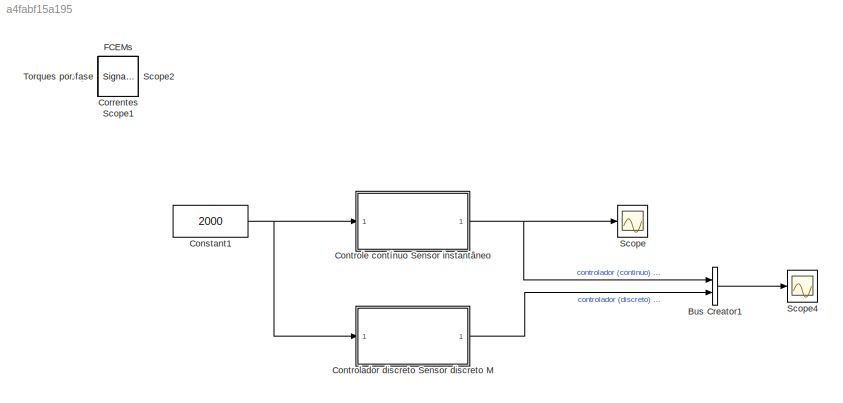
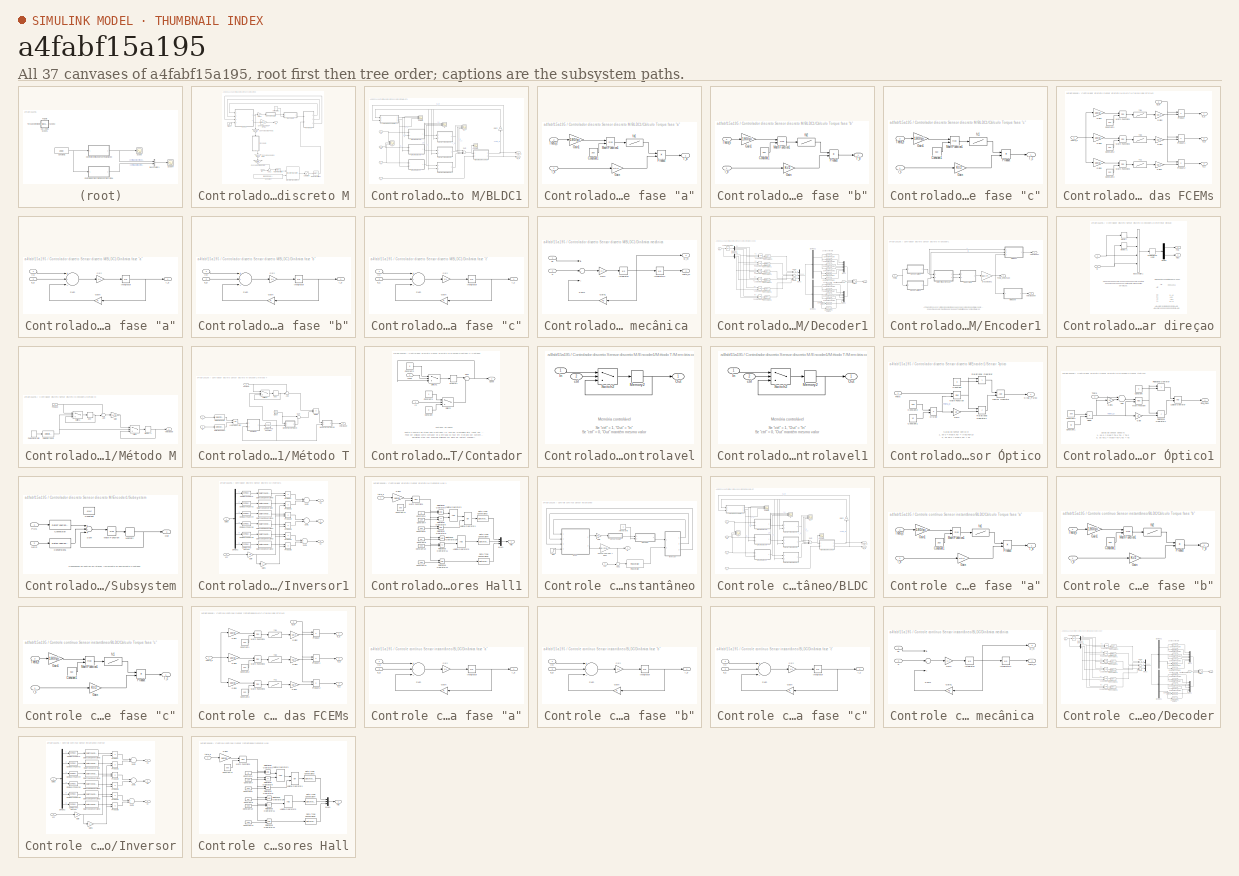
[diagram: thumbnail index - all 37 canvases of the model, root first then tree order]
MODEL slx_a4fabf15a195
KIND model
BLOCK [BusCreator] Bus Creator1
  DisplayOption = bar
  Inputs = 2
  Ports = [2, 1]
BLOCK [Constant] Constant1
  Value = 2000
BLOCK [SubSystem] Controlador discreto Sensor discreto M
  FunctionWithSeparateData = off
  MaskHideContents = off
  MinAlgLoopOccurrences = off
  Opaque = off
  Ports = [1, 1]
  PropExecContextOutsideSubsystem = off
  RTWSystemCode = Auto
  RequestExecContextInheritance = off
BLOCK [Sum] Controlador discreto Sensor discreto M/Add2
  IconShape = round
  InputSameDT = off
  Inputs = -+|
  OutDataTypeStr = Inherit: Inherit via internal rule
  Ports = [2, 1]
  SaturateOnIntegerOverflow = off
BLOCK [Constant] Controlador discreto Sensor discreto M/Anti-horário1
BLOCK [SubSystem] Controlador discreto Sensor discreto M/BLDC1
  FunctionWithSeparateData = off
  MaskHideContents = off
  MinAlgLoopOccurrences = off
  Opaque = off
  Ports = [4, 2]
  PropExecContextOutsideSubsystem = off
  RTWSystemCode = Auto
  RequestExecContextInheritance = off
BLOCK [SubSystem] Controlador discreto Sensor discreto M/BLDC1/Cálculo Torque fase "a"
  FunctionWithSeparateData = off
  MaskHideContents = off
  MinAlgLoopOccurrences = off
  Opaque = off
  Ports = [2, 1]
  PropExecContextOutsideSubsystem = off
  RTWSystemCode = Auto
  RequestExecContextInheritance = off
BLOCK [Constant] Controlador discreto Sensor discreto M/BLDC1/Cálculo Torque fase "a"/Constant1
  Value = 360
BLOCK [Gain] Controlador discreto Sensor discreto M/BLDC1/Cálculo Torque fase "a"/Gain
  Gain = Kt/2
  OutDataTypeStr = Inherit: Inherit via internal rule
  ParamDataTypeStr = Inherit: Inherit via internal rule
  SaturateOnIntegerOverflow = off
BLOCK [Gain] Controlador discreto Sensor discreto M/BLDC1/Cálculo Torque fase "a"/Gain1
  Gain = 180/pi
  OutDataTypeStr = Inherit: Inherit via internal rule
  ParamDataTypeStr = Inherit: Inherit via internal rule
  SaturateOnIntegerOverflow = off
BLOCK [Math] Controlador discreto Sensor discreto M/BLDC1/Cálculo Torque fase "a"/Math Function1
  Operator = mod
  Ports = [2, 1]
BLOCK [Product] Controlador discreto Sensor discreto M/BLDC1/Cálculo Torque fase "a"/Product
  InputSameDT = off
  OutDataTypeStr = Inherit: Inherit via internal rule
  Ports = [2, 1]
  SaturateOnIntegerOverflow = off
BLOCK [Outport] Controlador discreto Sensor discreto M/BLDC1/Cálculo Torque fase "a"/T_a
  IconDisplay = Port number
BLOCK [Inport] Controlador discreto Sensor discreto M/BLDC1/Cálculo Torque fase "a"/Theta_e
  IconDisplay = Port number
  Port = 2
BLOCK [Lookup] Controlador discreto Sensor discreto M/BLDC1/Cálculo Torque fase "a"/fa1
  InputValues = [0 30 60 90 120 150 180 210 240 270 300 330 360]
  SaturateOnIntegerOverflow = off
  Table = [ 1 1 1 0 -1 -1 -1 -1 -1 0 1 1 1]
BLOCK [Inport] Controlador discreto Sensor discreto M/BLDC1/Cálculo Torque fase "a"/i_a
  IconDisplay = Port number
BLOCK [SubSystem] Controlador discreto Sensor discreto M/BLDC1/Cálculo Torque fase "b"
  FunctionWithSeparateData = off
  MaskHideContents = off
  MinAlgLoopOccurrences = off
  Opaque = off
  Ports = [2, 1]
  PropExecContextOutsideSubsystem = off
  RTWSystemCode = Auto
  RequestExecContextInheritance = off
BLOCK [Constant] Controlador discreto Sensor discreto M/BLDC1/Cálculo Torque fase "b"/Constant1
  Value = 360
BLOCK [Gain] Controlador discreto Sensor discreto M/BLDC1/Cálculo Torque fase "b"/Gain
  Gain = Kt/2
  OutDataTypeStr = Inherit: Inherit via internal rule
  ParamDataTypeStr = Inherit: Inherit via internal rule
  SaturateOnIntegerOverflow = off
BLOCK [Gain] Controlador discreto Sensor discreto M/BLDC1/Cálculo Torque fase "b"/Gain1
  Gain = 180/pi
  OutDataTypeStr = Inherit: Inherit via internal rule
  ParamDataTypeStr = Inherit: Inherit via internal rule
  SaturateOnIntegerOverflow = off
BLOCK [Math] Controlador discreto Sensor discreto M/BLDC1/Cálculo Torque fase "b"/Math Function1
  Operator = mod
  Ports = [2, 1]
BLOCK [Product] Controlador discreto Sensor discreto M/BLDC1/Cálculo Torque fase "b"/Product
  InputSameDT = off
  OutDataTypeStr = Inherit: Inherit via internal rule
  Ports = [2, 1]
  SaturateOnIntegerOverflow = off
BLOCK [Outport] Controlador discreto Sensor discreto M/BLDC1/Cálculo Torque fase "b"/T_b
  IconDisplay = Port number
BLOCK [Inport] Controlador discreto Sensor discreto M/BLDC1/Cálculo Torque fase "b"/Theta_e
  IconDisplay = Port number
  Port = 2
BLOCK [Lookup] Controlador discreto Sensor discreto M/BLDC1/Cálculo Torque fase "b"/fb2
  InputValues = [0 30 60 90 120 150 180 210 240 270 300 330 360]
  SaturateOnIntegerOverflow = off
  Table = [-1 0 1 1 1 1 1 0 -1 -1 -1 -1 -1]
BLOCK [Inport] Controlador discreto Sensor discreto M/BLDC1/Cálculo Torque fase "b"/i_b
  IconDisplay = Port number
BLOCK [SubSystem] Controlador discreto Sensor discreto M/BLDC1/Cálculo Torque fase "c"
  FunctionWithSeparateData = off
  MaskHideContents = off
  MinAlgLoopOccurrences = off
  Opaque = off
  Ports = [2, 1]
  PropExecContextOutsideSubsystem = off
  RTWSystemCode = Auto
  RequestExecContextInheritance = off
BLOCK [Constant] Controlador discreto Sensor discreto M/BLDC1/Cálculo Torque fase "c"/Constant1
  Value = 360
BLOCK [Gain] Controlador discreto Sensor discreto M/BLDC1/Cálculo Torque fase "c"/Gain
  Gain = Kt/2
  OutDataTypeStr = Inherit: Inherit via internal rule
  ParamDataTypeStr = Inherit: Inherit via internal rule
  SaturateOnIntegerOverflow = off
BLOCK [Gain] Controlador discreto Sensor discreto M/BLDC1/Cálculo Torque fase "c"/Gain1
  Gain = 180/pi
  OutDataTypeStr = Inherit: Inherit via internal rule
  ParamDataTypeStr = Inherit: Inherit via internal rule
  SaturateOnIntegerOverflow = off
BLOCK [Math] Controlador discreto Sensor discreto M/BLDC1/Cálculo Torque fase "c"/Math Function1
  Operator = mod
  Ports = [2, 1]
BLOCK [Product] Controlador discreto Sensor discreto M/BLDC1/Cálculo Torque fase "c"/Product
  InputSameDT = off
  OutDataTypeStr = Inherit: Inherit via internal rule
  Ports = [2, 1]
  SaturateOnIntegerOverflow = off
BLOCK [Outport] Controlador discreto Sensor discreto M/BLDC1/Cálculo Torque fase "c"/T_c
  IconDisplay = Port number
BLOCK [Inport] Controlador discreto Sensor discreto M/BLDC1/Cálculo Torque fase "c"/Theta_e
  IconDisplay = Port number
  Port = 2
BLOCK [Lookup] Controlador discreto Sensor discreto M/BLDC1/Cálculo Torque fase "c"/fc1
  InputValues = [0 30 60 90 120 150 180 210 240 270 300 330 360]
  SaturateOnIntegerOverflow = off
  Table = [-1 -1 -1 -1 -1 0 1 1 1 1 1 0 -1]
BLOCK [Inport] Controlador discreto Sensor discreto M/BLDC1/Cálculo Torque fase "c"/i_c
  IconDisplay = Port number
BLOCK [SubSystem] Controlador discreto Sensor discreto M/BLDC1/Cálculo das FCEMs
  FunctionWithSeparateData = off
  MaskHideContents = off
  MinAlgLoopOccurrences = off
  Opaque = off
  Ports = [2, 3]
  PropExecContextOutsideSubsystem = off
  RTWSystemCode = Auto
  RequestExecContextInheritance = off
BLOCK [Constant] Controlador discreto Sensor discreto M/BLDC1/Cálculo das FCEMs/Constant1
  Value = 360
BLOCK [Constant] Controlador discreto Sensor discreto M/BLDC1/Cálculo das FCEMs/Constant2
  Value = 360
BLOCK [Constant] Controlador discreto Sensor discreto M/BLDC1/Cálculo das FCEMs/Constant3
  Value = 360
BLOCK [Gain] Controlador discreto Sensor discreto M/BLDC1/Cálculo das FCEMs/Gain1
  Gain = 180/pi
  OutDataTypeStr = Inherit: Inherit via internal rule
  ParamDataTypeStr = Inherit: Inherit via internal rule
  SaturateOnIntegerOverflow = off
BLOCK [Gain] Controlador discreto Sensor discreto M/BLDC1/Cálculo das FCEMs/Gain2
  Gain = Ke/2
  OutDataTypeStr = Inherit: Inherit via internal rule
  ParamDataTypeStr = Inherit: Inherit via internal rule
  SaturateOnIntegerOverflow = off
BLOCK [Gain] Controlador discreto Sensor discreto M/BLDC1/Cálculo das FCEMs/Gain3
  Gain = Ke/2
  OutDataTypeStr = Inherit: Inherit via internal rule
  ParamDataTypeStr = Inherit: Inherit via internal rule
  SaturateOnIntegerOverflow = off
BLOCK [Gain] Controlador discreto Sensor discreto M/BLDC1/Cálculo das FCEMs/Gain4
  Gain = Ke/2
  OutDataTypeStr = Inherit: Inherit via internal rule
  ParamDataTypeStr = Inherit: Inherit via internal rule
  SaturateOnIntegerOverflow = off
BLOCK [Gain] Controlador discreto Sensor discreto M/BLDC1/Cálculo das FCEMs/Gain5
  Gain = 180/pi
  OutDataTypeStr = Inherit: Inherit via internal rule
  ParamDataTypeStr = Inherit: Inherit via internal rule
  SaturateOnIntegerOverflow = off
BLOCK [Gain] Controlador discreto Sensor discreto M/BLDC1/Cálculo das FCEMs/Gain6
  Gain = 180/pi
  OutDataTypeStr = Inherit: Inherit via internal rule
  ParamDataTypeStr = Inherit: Inherit via internal rule
  SaturateOnIntegerOverflow = off
BLOCK [Math] Controlador discreto Sensor discreto M/BLDC1/Cálculo das FCEMs/Math Function1
  Operator = mod
  Ports = [2, 1]
BLOCK [Math] Controlador discreto Sensor discreto M/BLDC1/Cálculo das FCEMs/Math Function2
  Operator = mod
  Ports = [2, 1]
BLOCK [Math] Controlador discreto Sensor discreto M/BLDC1/Cálculo das FCEMs/Math Function3
  Operator = mod
  Ports = [2, 1]
BLOCK [Product] Controlador discreto Sensor discreto M/BLDC1/Cálculo das FCEMs/Product
  InputSameDT = off
  OutDataTypeStr = Inherit: Inherit via internal rule
  Ports = [2, 1]
  SaturateOnIntegerOverflow = off
BLOCK [Product] Controlador discreto Sensor discreto M/BLDC1/Cálculo das FCEMs/Product1
  InputSameDT = off
  OutDataTypeStr = Inherit: Inherit via internal rule
  Ports = [2, 1]
  SaturateOnIntegerOverflow = off
BLOCK [Product] Controlador discreto Sensor discreto M/BLDC1/Cálculo das FCEMs/Product2
  InputSameDT = off
  OutDataTypeStr = Inherit: Inherit via internal rule
  Ports = [2, 1]
  SaturateOnIntegerOverflow = off
BLOCK [Inport] Controlador discreto Sensor discreto M/BLDC1/Cálculo das FCEMs/Theta_e
  IconDisplay = Port number
BLOCK [Outport] Controlador discreto Sensor discreto M/BLDC1/Cálculo das FCEMs/e_a
  IconDisplay = Port number
BLOCK [Outport] Controlador discreto Sensor discreto M/BLDC1/Cálculo das FCEMs/e_b
  IconDisplay = Port number
  Port = 2
BLOCK [Outport] Controlador discreto Sensor discreto M/BLDC1/Cálculo das FCEMs/e_c
  IconDisplay = Port number
  Port = 3
BLOCK [Lookup] Controlador discreto Sensor discreto M/BLDC1/Cálculo das FCEMs/fa1
  InputValues = [0 30 60 90 120 150 180 210 240 270 300 330 360]
  SaturateOnIntegerOverflow = off
  Table = [ 1 1 1 0 -1 -1 -1 -1 -1 0 1 1 1]
BLOCK [Lookup] Controlador discreto Sensor discreto M/BLDC1/Cálculo das FCEMs/fb2
  InputValues = [0 30 60 90 120 150 180 210 240 270 300 330 360]
  SaturateOnIntegerOverflow = off
  Table = [-1 0 1 1 1 1 1 0 -1 -1 -1 -1 -1]
BLOCK [Lookup] Controlador discreto Sensor discreto M/BLDC1/Cálculo das FCEMs/fc1
  InputValues = [0 30 60 90 120 150 180 210 240 270 300 330 360]
  SaturateOnIntegerOverflow = off
  Table = [-1 -1 -1 -1 -1 0 1 1 1 1 1 0 -1]
BLOCK [Inport] Controlador discreto Sensor discreto M/BLDC1/Cálculo das FCEMs/w_m
  IconDisplay = Port number
  Port = 2
BLOCK [SubSystem] Controlador discreto Sensor discreto M/BLDC1/Dinâmica fase "a"
  FunctionWithSeparateData = off
  MaskHideContents = off
  MinAlgLoopOccurrences = off
  Opaque = off
  Ports = [2, 1]
  PropExecContextOutsideSubsystem = off
  RTWSystemCode = Auto
  RequestExecContextInheritance = off
BLOCK [Gain] Controlador discreto Sensor discreto M/BLDC1/Dinâmica fase "a"/ 
  Gain = 1/L
  OutDataTypeStr = Inherit: Inherit via internal rule
  ParamDataTypeStr = Inherit: Inherit via internal rule
  SaturateOnIntegerOverflow = off
BLOCK [Gain] Controlador discreto Sensor discreto M/BLDC1/Dinâmica fase "a"/Gain
  Gain = R
  OutDataTypeStr = Inherit: Inherit via internal rule
  ParamDataTypeStr = Inherit: Inherit via internal rule
  SaturateOnIntegerOverflow = off
BLOCK [Integrator] Controlador discreto Sensor discreto M/BLDC1/Dinâmica fase "a"/Integrator
  Ports = [1, 1]
BLOCK [Sum] Controlador discreto Sensor discreto M/BLDC1/Dinâmica fase "a"/Sum
  InputSameDT = off
  Inputs = +--
  OutDataTypeStr = Inherit: Inherit via internal rule
  Ports = [3, 1]
  SaturateOnIntegerOverflow = off
BLOCK [Inport] Controlador discreto Sensor discreto M/BLDC1/Dinâmica fase "a"/Va
  IconDisplay = Port number
BLOCK [Inport] Controlador discreto Sensor discreto M/BLDC1/Dinâmica fase "a"/e_a
  IconDisplay = Port number
  Port = 2
BLOCK [Outport] Controlador discreto Sensor discreto M/BLDC1/Dinâmica fase "a"/i_a
  IconDisplay = Port number
BLOCK [SubSystem] Controlador discreto Sensor discreto M/BLDC1/Dinâmica fase "b"
  FunctionWithSeparateData = off
  MaskHideContents = off
  MinAlgLoopOccurrences = off
  Opaque = off
  Ports = [2, 1]
  PropExecContextOutsideSubsystem = off
  RTWSystemCode = Auto
  RequestExecContextInheritance = off
BLOCK [Gain] Controlador discreto Sensor discreto M/BLDC1/Dinâmica fase "b"/ 
  Gain = 1/L
  OutDataTypeStr = Inherit: Inherit via internal rule
  ParamDataTypeStr = Inherit: Inherit via internal rule
  SaturateOnIntegerOverflow = off
BLOCK [Gain] Controlador discreto Sensor discreto M/BLDC1/Dinâmica fase "b"/Gain
  Gain = R
  OutDataTypeStr = Inherit: Inherit via internal rule
  ParamDataTypeStr = Inherit: Inherit via internal rule
  SaturateOnIntegerOverflow = off
BLOCK [Integrator] Controlador discreto Sensor discreto M/BLDC1/Dinâmica fase "b"/Integrator
  Ports = [1, 1]
BLOCK [Sum] Controlador discreto Sensor discreto M/BLDC1/Dinâmica fase "b"/Sum
  InputSameDT = off
  Inputs = +--
  OutDataTypeStr = Inherit: Inherit via internal rule
  Ports = [3, 1]
  SaturateOnIntegerOverflow = off
BLOCK [Inport] Controlador discreto Sensor discreto M/BLDC1/Dinâmica fase "b"/Vb
  IconDisplay = Port number
BLOCK [Inport] Controlador discreto Sensor discreto M/BLDC1/Dinâmica fase "b"/e_b
  IconDisplay = Port number
  Port = 2
BLOCK [Outport] Controlador discreto Sensor discreto M/BLDC1/Dinâmica fase "b"/i_b
  IconDisplay = Port number
BLOCK [SubSystem] Controlador discreto Sensor discreto M/BLDC1/Dinâmica fase "c"
  FunctionWithSeparateData = off
  MaskHideContents = off
  MinAlgLoopOccurrences = off
  Opaque = off
  Ports = [2, 1]
  PropExecContextOutsideSubsystem = off
  RTWSystemCode = Auto
  RequestExecContextInheritance = off
BLOCK [Gain] Controlador discreto Sensor discreto M/BLDC1/Dinâmica fase "c"/ 
  Gain = 1/L
  OutDataTypeStr = Inherit: Inherit via internal rule
  ParamDataTypeStr = Inherit: Inherit via internal rule
  SaturateOnIntegerOverflow = off
BLOCK [Gain] Controlador discreto Sensor discreto M/BLDC1/Dinâmica fase "c"/Gain
  Gain = R
  OutDataTypeStr = Inherit: Inherit via internal rule
  ParamDataTypeStr = Inherit: Inherit via internal rule
  SaturateOnIntegerOverflow = off
BLOCK [Integrator] Controlador discreto Sensor discreto M/BLDC1/Dinâmica fase "c"/Integrator
  Ports = [1, 1]
BLOCK [Sum] Controlador discreto Sensor discreto M/BLDC1/Dinâmica fase "c"/Sum
  InputSameDT = off
  Inputs = +--
  OutDataTypeStr = Inherit: Inherit via internal rule
  Ports = [3, 1]
  SaturateOnIntegerOverflow = off
BLOCK [Inport] Controlador discreto Sensor discreto M/BLDC1/Dinâmica fase "c"/Vc
  IconDisplay = Port number
BLOCK [Inport] Controlador discreto Sensor discreto M/BLDC1/Dinâmica fase "c"/e_c
  IconDisplay = Port number
  Port = 2
BLOCK [Outport] Controlador discreto Sensor discreto M/BLDC1/Dinâmica fase "c"/i_c
  IconDisplay = Port number
BLOCK [SubSystem] Controlador discreto Sensor discreto M/BLDC1/Dinâmica mecânica 
  FunctionWithSeparateData = off
  MaskHideContents = off
  MinAlgLoopOccurrences = off
  Opaque = off
  Ports = [2, 2]
  PropExecContextOutsideSubsystem = off
  RTWSystemCode = Auto
  RequestExecContextInheritance = off
BLOCK [Gain] Controlador discreto Sensor discreto M/BLDC1/Dinâmica mecânica /Gain
  Gain = 1/J
  OutDataTypeStr = Inherit: Inherit via internal rule
  ParamDataTypeStr = Inherit: Inherit via internal rule
  SaturateOnIntegerOverflow = off
BLOCK [Gain] Controlador discreto Sensor discreto M/BLDC1/Dinâmica mecânica /Gain1
  Gain = Kd
  OutDataTypeStr = Inherit: Inherit via internal rule
  ParamDataTypeStr = Inherit: Inherit via internal rule
  SaturateOnIntegerOverflow = off
BLOCK [Integrator] Controlador discreto Sensor discreto M/BLDC1/Dinâmica mecânica /Integrator
  Ports = [1, 1]
BLOCK [Integrator] Controlador discreto Sensor discreto M/BLDC1/Dinâmica mecânica /Integrator1
  Ports = [1, 1]
BLOCK [Sum] Controlador discreto Sensor discreto M/BLDC1/Dinâmica mecânica /Sum1
  InputSameDT = off
  Inputs = +--
  OutDataTypeStr = Inherit: Inherit via internal rule
  Ports = [3, 1]
  SaturateOnIntegerOverflow = off
BLOCK [Inport] Controlador discreto Sensor discreto M/BLDC1/Dinâmica mecânica /Te
  IconDisplay = Port number
BLOCK [Outport] Controlador discreto Sensor discreto M/BLDC1/Dinâmica mecânica /Theta_m
  IconDisplay = Port number
BLOCK [Inport] Controlador discreto Sensor discreto M/BLDC1/Dinâmica mecânica /Tl
  IconDisplay = Port number
  Port = 2
BLOCK [Outport] Controlador discreto Sensor discreto M/BLDC1/Dinâmica mecânica /w_m
  IconDisplay = Port number
  Port = 2
BLOCK [Scope] Controlador discreto Sensor discreto M/BLDC1/FCEMs
  DataFormat = StructureWithTime
  Floating = off
  LimitDataPoints = off
  NumInputPorts = 3
  Ports = [3]
  SampleTime = 0
  SaveName = ScopeData5
  ShowLegends = off
  TimeRange = 1
  YMax = 510~5~5
  YMin = 420~-5~-5
  ZoomMode = yonly
BLOCK [Gain] Controlador discreto Sensor discreto M/BLDC1/Gain2
  Gain = P/2
  OutDataTypeStr = Inherit: Inherit via internal rule
  ParamDataTypeStr = Inherit: Inherit via internal rule
  SaturateOnIntegerOverflow = off
BLOCK [Scope] Controlador discreto Sensor discreto M/BLDC1/Scope
  DataFormat = StructureWithTime
  Floating = off
  LimitDataPoints = off
  NumInputPorts = 1
  Ports = [1]
  SampleTime = 0
  SaveName = ScopeData4
  ShowLegends = off
  TimeRange = 1
  YMax = 510
  YMin = 420
BLOCK [Sum] Controlador discreto Sensor discreto M/BLDC1/Sum
  InputSameDT = off
  Inputs = +++
  OutDataTypeStr = Inherit: Inherit via internal rule
  Ports = [3, 1]
  SaturateOnIntegerOverflow = off
BLOCK [Outport] Controlador discreto Sensor discreto M/BLDC1/Theta_m
  IconDisplay = Port number
BLOCK [Inport] Controlador discreto Sensor discreto M/BLDC1/Tl
  IconDisplay = Port number
  Port = 4
BLOCK [Inport] Controlador discreto Sensor discreto M/BLDC1/Va
  IconDisplay = Port number
BLOCK [Inport] Controlador discreto Sensor discreto M/BLDC1/Vb
  IconDisplay = Port number
  Port = 2
BLOCK [Inport] Controlador discreto Sensor discreto M/BLDC1/Vc
  IconDisplay = Port number
  Port = 3
BLOCK [Scope] Controlador discreto Sensor discreto M/BLDC1/Vs
  DataFormat = StructureWithTime
  Floating = off
  LimitDataPoints = off
  NumInputPorts = 3
  Ports = [3]
  SampleTime = 0
  SaveName = ScopeData2
  ShowLegends = off
  TimeRange = 1
  YMax = 510~5~5
  YMin = 420~-5~-5
  ZoomMode = xonly
BLOCK [Scope] Controlador discreto Sensor discreto M/BLDC1/is
  DataFormat = StructureWithTime
  Floating = off
  LimitDataPoints = off
  NumInputPorts = 3
  Ports = [3]
  SampleTime = 0
  SaveName = ScopeData3
  ShowLegends = off
  TimeRange = 1
  YMax = 510~5~5
  YMin = 420~-5~-5
  ZoomMode = xonly
BLOCK [Scope] Controlador discreto Sensor discreto M/BLDC1/is1
  DataFormat = StructureWithTime
  Floating = off
  LimitDataPoints = off
  NumInputPorts = 3
  Ports = [3]
  SampleTime = 0
  SaveName = ScopeData6
  ShowLegends = off
  TimeRange = 1
  YMax = 510~5~5
  YMin = 420~-5~-5
  ZoomMode = xonly
BLOCK [Outport] Controlador discreto Sensor discreto M/BLDC1/w_m
  IconDisplay = Port number
  Port = 2
BLOCK [Constant] Controlador discreto Sensor discreto M/Constant
  Value = [-0.000518155 0.000518155-0.0431726*Ts]
BLOCK [Gain] Controlador discreto Sensor discreto M/Conversao deg//s -> rad//s
  Gain = pi/180
  OutDataTypeStr = Inherit: Inherit via internal rule
  ParamDataTypeStr = Inherit: Inherit via internal rule
  SaturateOnIntegerOverflow = off
BLOCK [Gain] Controlador discreto Sensor discreto M/Conversao rad-> deg
  Gain = 180/pi
  OutDataTypeStr = Inherit: Inherit via internal rule
  ParamDataTypeStr = Inherit: Inherit via internal rule
  SaturateOnIntegerOverflow = off
BLOCK [Gain] Controlador discreto Sensor discreto M/Conversao rad//s -> RPM1
  Gain = 60/(2*pi)
  OutDataTypeStr = Inherit: Inherit via internal rule
  ParamDataTypeStr = Inherit: Inherit via internal rule
  SaturateOnIntegerOverflow = off
BLOCK [Gain] Controlador discreto Sensor discreto M/Conversao rad//s -> rpm
  Gain = 60/(2*pi)
  OutDataTypeStr = Inherit: Inherit via internal rule
  ParamDataTypeStr = Inherit: Inherit via internal rule
  SaturateOnIntegerOverflow = off
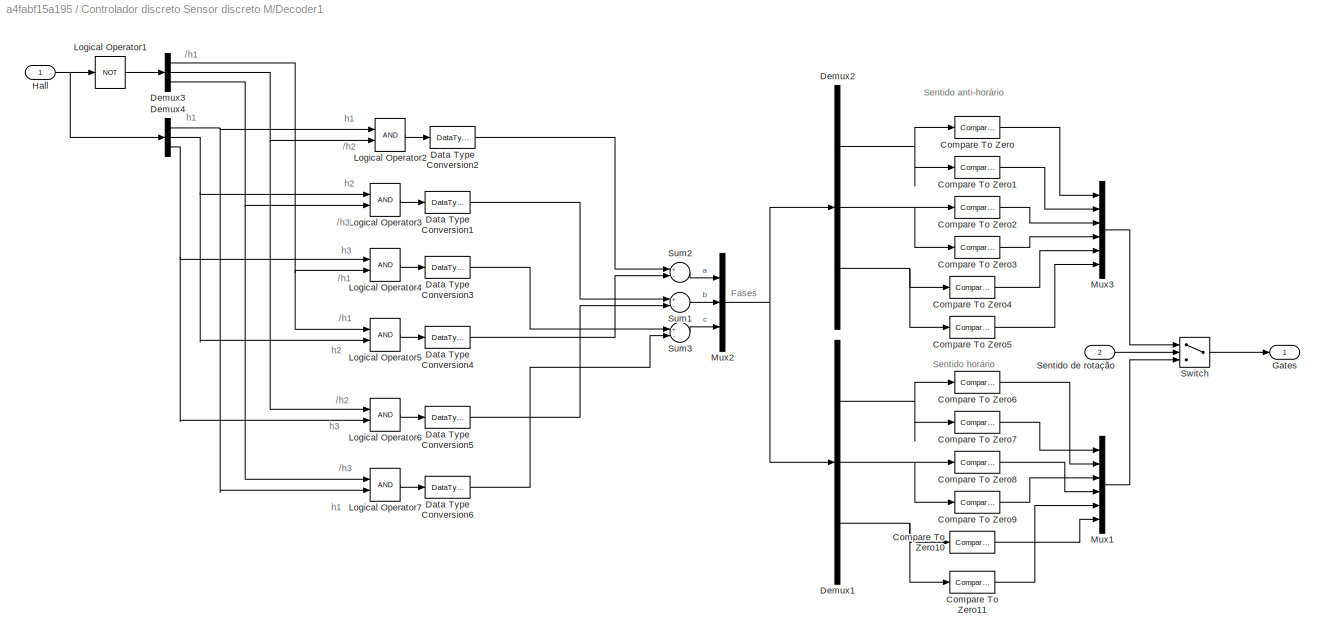
BLOCK [SubSystem] Controlador discreto Sensor discreto M/Decoder1
  FunctionWithSeparateData = off
  MaskHideContents = off
  MinAlgLoopOccurrences = off
  Opaque = off
  Ports = [2, 1]
  PropExecContextOutsideSubsystem = off
  RTWSystemCode = Auto
  RequestExecContextInheritance = off
BLOCK [Reference] Controlador discreto Sensor discreto M/Decoder1/Compare To Zero  REF=simulink/Logic and Bit
Operations/Compare
To Zero
  OutDataTypeStr = boolean
  Ports = [1, 1]
  SourceBlock = simulink/Logic and Bit\nOperations/Compare\nTo Zero
  SourceType = Compare To Zero
  ZeroCross = off
  relop = >
BLOCK [Reference] Controlador discreto Sensor discreto M/Decoder1/Compare To Zero1  REF=simulink/Logic and Bit
Operations/Compare
To Zero
  OutDataTypeStr = boolean
  Ports = [1, 1]
  SourceBlock = simulink/Logic and Bit\nOperations/Compare\nTo Zero
  SourceType = Compare To Zero
  ZeroCross = off
  relop = <
BLOCK [Reference] Controlador discreto Sensor discreto M/Decoder1/Compare To Zero10  REF=simulink/Logic and Bit
Operations/Compare
To Zero
  OutDataTypeStr = boolean
  Ports = [1, 1]
  SourceBlock = simulink/Logic and Bit\nOperations/Compare\nTo Zero
  SourceType = Compare To Zero
  ZeroCross = off
  relop = >
BLOCK [Reference] Controlador discreto Sensor discreto M/Decoder1/Compare To Zero11  REF=simulink/Logic and Bit
Operations/Compare
To Zero
  OutDataTypeStr = boolean
  Ports = [1, 1]
  SourceBlock = simulink/Logic and Bit\nOperations/Compare\nTo Zero
  SourceType = Compare To Zero
  ZeroCross = off
  relop = <
BLOCK [Reference] Controlador discreto Sensor discreto M/Decoder1/Compare To Zero2  REF=simulink/Logic and Bit
Operations/Compare
To Zero
  OutDataTypeStr = boolean
  Ports = [1, 1]
  SourceBlock = simulink/Logic and Bit\nOperations/Compare\nTo Zero
  SourceType = Compare To Zero
  ZeroCross = off
  relop = >
BLOCK [Reference] Controlador discreto Sensor discreto M/Decoder1/Compare To Zero3  REF=simulink/Logic and Bit
Operations/Compare
To Zero
  OutDataTypeStr = boolean
  Ports = [1, 1]
  SourceBlock = simulink/Logic and Bit\nOperations/Compare\nTo Zero
  SourceType = Compare To Zero
  ZeroCross = off
  relop = <
BLOCK [Reference] Controlador discreto Sensor discreto M/Decoder1/Compare To Zero4  REF=simulink/Logic and Bit
Operations/Compare
To Zero
  OutDataTypeStr = boolean
  Ports = [1, 1]
  SourceBlock = simulink/Logic and Bit\nOperations/Compare\nTo Zero
  SourceType = Compare To Zero
  ZeroCross = off
  relop = >
BLOCK [Reference] Controlador discreto Sensor discreto M/Decoder1/Compare To Zero5  REF=simulink/Logic and Bit
Operations/Compare
To Zero
  OutDataTypeStr = boolean
  Ports = [1, 1]
  SourceBlock = simulink/Logic and Bit\nOperations/Compare\nTo Zero
  SourceType = Compare To Zero
  ZeroCross = off
  relop = <
BLOCK [Reference] Controlador discreto Sensor discreto M/Decoder1/Compare To Zero6  REF=simulink/Logic and Bit
Operations/Compare
To Zero
  OutDataTypeStr = boolean
  Ports = [1, 1]
  SourceBlock = simulink/Logic and Bit\nOperations/Compare\nTo Zero
  SourceType = Compare To Zero
  ZeroCross = off
  relop = >
BLOCK [Reference] Controlador discreto Sensor discreto M/Decoder1/Compare To Zero7  REF=simulink/Logic and Bit
Operations/Compare
To Zero
  OutDataTypeStr = boolean
  Ports = [1, 1]
  SourceBlock = simulink/Logic and Bit\nOperations/Compare\nTo Zero
  SourceType = Compare To Zero
  ZeroCross = off
  relop = <
BLOCK [Reference] Controlador discreto Sensor discreto M/Decoder1/Compare To Zero8  REF=simulink/Logic and Bit
Operations/Compare
To Zero
  OutDataTypeStr = boolean
  Ports = [1, 1]
  SourceBlock = simulink/Logic and Bit\nOperations/Compare\nTo Zero
  SourceType = Compare To Zero
  ZeroCross = off
  relop = >
BLOCK [Reference] Controlador discreto Sensor discreto M/Decoder1/Compare To Zero9  REF=simulink/Logic and Bit
Operations/Compare
To Zero
  OutDataTypeStr = boolean
  Ports = [1, 1]
  SourceBlock = simulink/Logic and Bit\nOperations/Compare\nTo Zero
  SourceType = Compare To Zero
  ZeroCross = off
  relop = <
BLOCK [DataTypeConversion] Controlador discreto Sensor discreto M/Decoder1/Data Type Conversion1
  RndMeth = Floor
  SaturateOnIntegerOverflow = off
BLOCK [DataTypeConversion] Controlador discreto Sensor discreto M/Decoder1/Data Type Conversion2
  RndMeth = Floor
  SaturateOnIntegerOverflow = off
BLOCK [DataTypeConversion] Controlador discreto Sensor discreto M/Decoder1/Data Type Conversion3
  RndMeth = Floor
  SaturateOnIntegerOverflow = off
BLOCK [DataTypeConversion] Controlador discreto Sensor discreto M/Decoder1/Data Type Conversion4
  RndMeth = Floor
  SaturateOnIntegerOverflow = off
BLOCK [DataTypeConversion] Controlador discreto Sensor discreto M/Decoder1/Data Type Conversion5
  RndMeth = Floor
  SaturateOnIntegerOverflow = off
BLOCK [DataTypeConversion] Controlador discreto Sensor discreto M/Decoder1/Data Type Conversion6
  RndMeth = Floor
  SaturateOnIntegerOverflow = off
BLOCK [Demux] Controlador discreto Sensor discreto M/Decoder1/Demux1
  DisplayOption = bar
  Outputs = 3
  Ports = [1, 3]
BLOCK [Demux] Controlador discreto Sensor discreto M/Decoder1/Demux2
  DisplayOption = bar
  Outputs = 3
  Ports = [1, 3]
BLOCK [Demux] Controlador discreto Sensor discreto M/Decoder1/Demux3
  DisplayOption = bar
  Outputs = 3
  Ports = [1, 3]
BLOCK [Demux] Controlador discreto Sensor discreto M/Decoder1/Demux4
  DisplayOption = bar
  Outputs = 3
  Ports = [1, 3]
BLOCK [Outport] Controlador discreto Sensor discreto M/Decoder1/Gates
  IconDisplay = Port number
BLOCK [Inport] Controlador discreto Sensor discreto M/Decoder1/Hall 
  IconDisplay = Port number
BLOCK [Logic] Controlador discreto Sensor discreto M/Decoder1/Logical Operator1
  AllPortsSameDT = off
  Operator = NOT
  OutDataTypeStr = boolean
  Ports = [1, 1]
BLOCK [Logic] Controlador discreto Sensor discreto M/Decoder1/Logical Operator2
  AllPortsSameDT = off
  OutDataTypeStr = boolean
  Ports = [2, 1]
BLOCK [Logic] Controlador discreto Sensor discreto M/Decoder1/Logical Operator3
  AllPortsSameDT = off
  OutDataTypeStr = boolean
  Ports = [2, 1]
BLOCK [Logic] Controlador discreto Sensor discreto M/Decoder1/Logical Operator4
  AllPortsSameDT = off
  OutDataTypeStr = boolean
  Ports = [2, 1]
BLOCK [Logic] Controlador discreto Sensor discreto M/Decoder1/Logical Operator5
  AllPortsSameDT = off
  OutDataTypeStr = boolean
  Ports = [2, 1]
BLOCK [Logic] Controlador discreto Sensor discreto M/Decoder1/Logical Operator6
  AllPortsSameDT = off
  OutDataTypeStr = boolean
  Ports = [2, 1]
BLOCK [Logic] Controlador discreto Sensor discreto M/Decoder1/Logical Operator7
  AllPortsSameDT = off
  OutDataTypeStr = boolean
  Ports = [2, 1]
BLOCK [Mux] Controlador discreto Sensor discreto M/Decoder1/Mux1
  DisplayOption = bar
  Inputs = 6
  Ports = [6, 1]
BLOCK [Mux] Controlador discreto Sensor discreto M/Decoder1/Mux2
  DisplayOption = bar
  Inputs = 3
  Ports = [3, 1]
BLOCK [Mux] Controlador discreto Sensor discreto M/Decoder1/Mux3
  DisplayOption = bar
  Inputs = 6
  Ports = [6, 1]
BLOCK [Inport] Controlador discreto Sensor discreto M/Decoder1/Sentido de rotação
  IconDisplay = Port number
  Port = 2
BLOCK [Sum] Controlador discreto Sensor discreto M/Decoder1/Sum1
  InputSameDT = off
  Inputs = +-
  OutDataTypeStr = double
  Ports = [2, 1]
  SaturateOnIntegerOverflow = off
BLOCK [Sum] Controlador discreto Sensor discreto M/Decoder1/Sum2
  InputSameDT = off
  Inputs = +-
  OutDataTypeStr = double
  Ports = [2, 1]
  SaturateOnIntegerOverflow = off
BLOCK [Sum] Controlador discreto Sensor discreto M/Decoder1/Sum3
  InputSameDT = off
  Inputs = +-
  OutDataTypeStr = double
  Ports = [2, 1]
  SaturateOnIntegerOverflow = off
BLOCK [Switch] Controlador discreto Sensor discreto M/Decoder1/Switch
  Criteria = u2 > Threshold
  InputSameDT = off
  SaturateOnIntegerOverflow = off
BLOCK [DiscreteTransferFcn] Controlador discreto Sensor discreto M/Discrete Transfer Fcn
  Denominator = [-1 1]
  InputPortMap = u0,p1
  Numerator = [-0.000518155 0.0000864288]
  NumeratorSource = Input port
  Ports = [2, 1]
  SampleTime = Ts
BLOCK [SubSystem] Controlador discreto Sensor discreto M/Encoder1
  FunctionWithSeparateData = off
  MaskHideContents = off
  MinAlgLoopOccurrences = off
  Opaque = off
  Ports = [1, 3]
  PropExecContextOutsideSubsystem = off
  RTWSystemCode = Auto
  RequestExecContextInheritance = off
BLOCK [SubSystem] Controlador discreto Sensor discreto M/Encoder1/Determinar direçao
  FunctionWithSeparateData = off
  MaskHideContents = off
  MinAlgLoopOccurrences = off
  Opaque = off
  Ports = [2, 2]
  PropExecContextOutsideSubsystem = off
  RTWSystemCode = Auto
  RequestExecContextInheritance = off
BLOCK [Inport] Controlador discreto Sensor discreto M/Encoder1/Determinar direçao/A
  IconDisplay = Port number
BLOCK [Inport] Controlador discreto Sensor discreto M/Encoder1/Determinar direçao/B
  IconDisplay = Port number
  Port = 2
BLOCK [BusCreator] Controlador discreto Sensor discreto M/Encoder1/Determinar direçao/Bus Creator1
  DisplayOption = bar
  Ports = [4, 1]
BLOCK [CombinatorialLogic] Controlador discreto Sensor discreto M/Encoder1/Determinar direçao/Combinatorial  Logic
  TruthTable = [ 0 0 ; 0 1 ; 1 0 ; 0 0 ; 1 0 ; 0 0 ; 0 0 ; 0 1 ; 0 1 ; 0 0 ; 0 0 ; 1 0 ; 0 0 ; 1 0 ; 0 1 ; 0 0]
BLOCK [Demux] Controlador discreto Sensor discreto M/Encoder1/Determinar direçao/Demux
  DisplayOption = bar
  Outputs = 2
  Ports = [1, 2]
BLOCK [Memory] Controlador discreto Sensor discreto M/Encoder1/Determinar direçao/Memory
BLOCK [Memory] Controlador discreto Sensor discreto M/Encoder1/Determinar direçao/Memory1
BLOCK [Outport] Controlador discreto Sensor discreto M/Encoder1/Determinar direçao/NEG
  IconDisplay = Port number
  Port = 2
BLOCK [Outport] Controlador discreto Sensor discreto M/Encoder1/Determinar direçao/POS
  IconDisplay = Port number
BLOCK [Gain] Controlador discreto Sensor discreto M/Encoder1/Graus // pulso1
  Gain = 360/(4*Nr)
  OutDataTypeStr = double
  ParamDataTypeStr = Inherit: Inherit via internal rule
  SaturateOnIntegerOverflow = off
BLOCK [SubSystem] Controlador discreto Sensor discreto M/Encoder1/Método M
  FunctionWithSeparateData = off
  MaskHideContents = off
  MinAlgLoopOccurrences = off
  Opaque = off
  Ports = [1, 1]
  PropExecContextOutsideSubsystem = off
  RTWSystemCode = Auto
  RequestExecContextInheritance = off
BLOCK [Sum] Controlador discreto Sensor discreto M/Encoder1/Método M/Add
  IconShape = round
  InputSameDT = off
  Inputs = +-|
  OutDataTypeStr = Inherit: Inherit via internal rule
  Ports = [2, 1]
  SaturateOnIntegerOverflow = off
BLOCK [Reference] Controlador discreto Sensor discreto M/Encoder1/Método M/Detect Increase  REF=simulink/Logic and Bit
Operations/Detect
Increase
  InputProcessing = Inherited
  OutDataTypeStr = boolean
  Ports = [1, 1]
  SourceBlock = simulink/Logic and Bit\nOperations/Detect\nIncrease
  SourceType = Detect Increase
  vinit = 0.0
BLOCK [Gain] Controlador discreto Sensor discreto M/Encoder1/Método M/Gain
  Gain = 1/Ts
  OutDataTypeStr = Inherit: Inherit via internal rule
  ParamDataTypeStr = Inherit: Inherit via internal rule
  SaturateOnIntegerOverflow = off
BLOCK [Memory] Controlador discreto Sensor discreto M/Encoder1/Método M/Memory1
BLOCK [Inport] Controlador discreto Sensor discreto M/Encoder1/Método M/Posição
  IconDisplay = Port number
BLOCK [DiscretePulseGenerator] Controlador discreto Sensor discreto M/Encoder1/Método M/Pulse Generator
  Period = Ts
  Ports = [0, 1]
  PulseType = Time based
  PulseWidth = 50
BLOCK [Switch] Controlador discreto Sensor discreto M/Encoder1/Método M/Switch
  InputSameDT = off
  SaturateOnIntegerOverflow = off
BLOCK [Switch] Controlador discreto Sensor discreto M/Encoder1/Método M/Switch1
  InputSameDT = off
  SaturateOnIntegerOverflow = off
BLOCK [Outport] Controlador discreto Sensor discreto M/Encoder1/Método M/Velocidade
  IconDisplay = Port number
BLOCK [Memory] Controlador discreto Sensor discreto M/Encoder1/Método M/pos'
BLOCK [SubSystem] Controlador discreto Sensor discreto M/Encoder1/Método T
  FunctionWithSeparateData = off
  MaskHideContents = off
  MinAlgLoopOccurrences = off
  Opaque = off
  Ports = [3, 1]
  PropExecContextOutsideSubsystem = off
  RTWSystemCode = Auto
  RequestExecContextInheritance = off
BLOCK [Inport] Controlador discreto Sensor discreto M/Encoder1/Método T/A
  IconDisplay = Port number
BLOCK [Sum] Controlador discreto Sensor discreto M/Encoder1/Método T/Add
  IconShape = round
  InputSameDT = off
  Inputs = +-|
  OutDataTypeStr = Inherit: Inherit via internal rule
  Ports = [2, 1]
  SaturateOnIntegerOverflow = off
BLOCK [Inport] Controlador discreto Sensor discreto M/Encoder1/Método T/B
  IconDisplay = Port number
  Port = 2
BLOCK [Clock] Controlador discreto Sensor discreto M/Encoder1/Método T/Clock
BLOCK [Reference] Controlador discreto Sensor discreto M/Encoder1/Método T/Compare To Constant  REF=simulink/Logic and Bit
Operations/Compare
To Constant
  OutDataTypeStr = boolean
  Ports = [1, 1]
  SourceBlock = simulink/Logic and Bit\nOperations/Compare\nTo Constant
  SourceType = Compare To Constant
  ZeroCross = on
  const = m
  relop = ==
BLOCK [SubSystem] Controlador discreto Sensor discreto M/Encoder1/Método T/Contador
  FunctionWithSeparateData = off
  MaskHideContents = off
  MinAlgLoopOccurrences = off
  Opaque = off
  Ports = [2, 1]
  PropExecContextOutsideSubsystem = off
  RTWSystemCode = Auto
  RequestExecContextInheritance = off
BLOCK [Constant] Controlador discreto Sensor discreto M/Encoder1/Método T/Contador/Constant
  Value = 0
BLOCK [Constant] Controlador discreto Sensor discreto M/Encoder1/Método T/Contador/Constant1
BLOCK [Constant] Controlador discreto Sensor discreto M/Encoder1/Método T/Contador/Constant2
  Value = 0
BLOCK [Outport] Controlador discreto Sensor discreto M/Encoder1/Método T/Contador/Count
  IconDisplay = Port number
BLOCK [Inport] Controlador discreto Sensor discreto M/Encoder1/Método T/Contador/In
  IconDisplay = Port number
BLOCK [Memory] Controlador discreto Sensor discreto M/Encoder1/Método T/Contador/Memory
BLOCK [Sum] Controlador discreto Sensor discreto M/Encoder1/Método T/Contador/Sum
  IconShape = round
  InputSameDT = off
  Inputs = |++
  OutDataTypeStr = Inherit: Inherit via internal rule
  Ports = [2, 1]
  SaturateOnIntegerOverflow = off
BLOCK [Switch] Controlador discreto Sensor discreto M/Encoder1/Método T/Contador/Switch
  InputSameDT = off
  SaturateOnIntegerOverflow = off
BLOCK [Switch] Controlador discreto Sensor discreto M/Encoder1/Método T/Contador/Switch1
  InputSameDT = off
  SaturateOnIntegerOverflow = off
BLOCK [Inport] Controlador discreto Sensor discreto M/Encoder1/Método T/Contador/reset
  IconDisplay = Port number
  Port = 2
BLOCK [Reference] Controlador discreto Sensor discreto M/Encoder1/Método T/Detect Change  REF=simulink/Logic and Bit
Operations/Detect
Change
  InputProcessing = Inherited
  OutDataTypeStr = boolean
  Ports = [1, 1]
  SourceBlock = simulink/Logic and Bit\nOperations/Detect\nChange
  SourceType = Detect Change
  vinit = 0
BLOCK [Reference] Controlador discreto Sensor discreto M/Encoder1/Método T/Detect Change1  REF=simulink/Logic and Bit
Operations/Detect
Change
  InputProcessing = Inherited
  OutDataTypeStr = boolean
  Ports = [1, 1]
  SourceBlock = simulink/Logic and Bit\nOperations/Detect\nChange
  SourceType = Detect Change
  vinit = 0
BLOCK [Product] Controlador discreto Sensor discreto M/Encoder1/Método T/Divide
  InputSameDT = off
  Inputs = */
  OutDataTypeStr = Inherit: Inherit via internal rule
  Ports = [2, 1]
  RndMeth = Floor
  SaturateOnIntegerOverflow = off
BLOCK [Logic] Controlador discreto Sensor discreto M/Encoder1/Método T/Logical Operator
  AllPortsSameDT = off
  Operator = OR
  OutDataTypeStr = boolean
  Ports = [2, 1]
BLOCK [SubSystem] Controlador discreto Sensor discreto M/Encoder1/Método T/Memória controlavel
  FunctionWithSeparateData = off
  MaskHideContents = off
  MinAlgLoopOccurrences = off
  Opaque = off
  Ports = [2, 1]
  PropExecContextOutsideSubsystem = off
  RTWSystemCode = Auto
  RequestExecContextInheritance = off
BLOCK [Inport] Controlador discreto Sensor discreto M/Encoder1/Método T/Memória controlavel/In
  IconDisplay = Port number
BLOCK [Memory] Controlador discreto Sensor discreto M/Encoder1/Método T/Memória controlavel/Memory2
BLOCK [Outport] Controlador discreto Sensor discreto M/Encoder1/Método T/Memória controlavel/Out
  IconDisplay = Port number
BLOCK [Switch] Controlador discreto Sensor discreto M/Encoder1/Método T/Memória controlavel/Switch2
  InputSameDT = off
  SaturateOnIntegerOverflow = off
BLOCK [Inport] Controlador discreto Sensor discreto M/Encoder1/Método T/Memória controlavel/ctrl
  IconDisplay = Port number
  Port = 2
BLOCK [SubSystem] Controlador discreto Sensor discreto M/Encoder1/Método T/Memória controlavel1
  FunctionWithSeparateData = off
  MaskHideContents = off
  MinAlgLoopOccurrences = off
  Opaque = off
  Ports = [2, 1]
  PropExecContextOutsideSubsystem = off
  RTWSystemCode = Auto
  RequestExecContextInheritance = off
BLOCK [Inport] Controlador discreto Sensor discreto M/Encoder1/Método T/Memória controlavel1/In
  IconDisplay = Port number
BLOCK [Memory] Controlador discreto Sensor discreto M/Encoder1/Método T/Memória controlavel1/Memory2
BLOCK [Outport] Controlador discreto Sensor discreto M/Encoder1/Método T/Memória controlavel1/Out
  IconDisplay = Port number
BLOCK [Switch] Controlador discreto Sensor discreto M/Encoder1/Método T/Memória controlavel1/Switch2
  InputSameDT = off
  SaturateOnIntegerOverflow = off
BLOCK [Inport] Controlador discreto Sensor discreto M/Encoder1/Método T/Memória controlavel1/ctrl
  IconDisplay = Port number
  Port = 2
BLOCK [Inport] Controlador discreto Sensor discreto M/Encoder1/Método T/Posição
  IconDisplay = Port number
  Port = 3
BLOCK [Sum] Controlador discreto Sensor discreto M/Encoder1/Método T/Sum
  IconShape = round
  InputSameDT = off
  Inputs = |+-
  OutDataTypeStr = Inherit: Inherit via internal rule
  Ports = [2, 1]
  SaturateOnIntegerOverflow = off
BLOCK [Switch] Controlador discreto Sensor discreto M/Encoder1/Método T/Switch1
  InputSameDT = off
  SaturateOnIntegerOverflow = off
BLOCK [Outport] Controlador discreto Sensor discreto M/Encoder1/Método T/Velocidade
  IconDisplay = Port number
BLOCK [Memory] Controlador discreto Sensor discreto M/Encoder1/Método T/pos'
BLOCK [SubSystem] Controlador discreto Sensor discreto M/Encoder1/Sensor Óptico
  FunctionWithSeparateData = off
  MaskHideContents = off
  MinAlgLoopOccurrences = off
  Opaque = off
  Ports = [1, 1]
  PropExecContextOutsideSubsystem = off
  RTWSystemCode = Auto
  RequestExecContextInheritance = off
BLOCK [Constant] Controlador discreto Sensor discreto M/Encoder1/Sensor Óptico/Constant
  Value = 0
BLOCK [Constant] Controlador discreto Sensor discreto M/Encoder1/Sensor Óptico/Constant1
  Value = Nr
BLOCK [Constant] Controlador discreto Sensor discreto M/Encoder1/Sensor Óptico/Constant2
  Value = 360
BLOCK [Product] Controlador discreto Sensor discreto M/Encoder1/Sensor Óptico/Divide
  InputSameDT = off
  Inputs = */
  OutDataTypeStr = Inherit: Inherit via internal rule
  Ports = [2, 1]
  RndMeth = Floor
  SaturateOnIntegerOverflow = off
BLOCK [Gain] Controlador discreto Sensor discreto M/Encoder1/Sensor Óptico/Gain
  Gain = 1/2
  OutDataTypeStr = Inherit: Inherit via internal rule
  ParamDataTypeStr = Inherit: Inherit via internal rule
  SaturateOnIntegerOverflow = off
BLOCK [Logic] Controlador discreto Sensor discreto M/Encoder1/Sensor Óptico/Logical Operator
  AllPortsSameDT = off
  OutDataTypeStr = boolean
  Ports = [2, 1]
BLOCK [Math] Controlador discreto Sensor discreto M/Encoder1/Sensor Óptico/Math Function
  Operator = mod
  Ports = [2, 1]
BLOCK [RelationalOperator] Controlador discreto Sensor discreto M/Encoder1/Sensor Óptico/Relational Operator
  InputSameDT = off
  Operator = >
  OutDataTypeStr = boolean
  Ports = [2, 1]
BLOCK [RelationalOperator] Controlador discreto Sensor discreto M/Encoder1/Sensor Óptico/Relational Operator1
  InputSameDT = off
  Operator = <
  OutDataTypeStr = boolean
  Ports = [2, 1]
BLOCK [Outport] Controlador discreto Sensor discreto M/Encoder1/Sensor Óptico/Sinal_Pulso
  IconDisplay = Port number
BLOCK [Inport] Controlador discreto Sensor discreto M/Encoder1/Sensor Óptico/Theta
  IconDisplay = Port number
BLOCK [SubSystem] Controlador discreto Sensor discreto M/Encoder1/Sensor Óptico1
  FunctionWithSeparateData = off
  MaskHideContents = off
  MinAlgLoopOccurrences = off
  Opaque = off
  Ports = [1, 1]
  PropExecContextOutsideSubsystem = off
  RTWSystemCode = Auto
  RequestExecContextInheritance = off
BLOCK [Sum] Controlador discreto Sensor discreto M/Encoder1/Sensor Óptico1/Add
  InputSameDT = off
  Inputs = +-
  OutDataTypeStr = Inherit: Inherit via internal rule
  Ports = [2, 1]
  SaturateOnIntegerOverflow = off
BLOCK [Constant] Controlador discreto Sensor discreto M/Encoder1/Sensor Óptico1/Constant
  Value = 0
BLOCK [Constant] Controlador discreto Sensor discreto M/Encoder1/Sensor Óptico1/Constant1
  Value = Nr
BLOCK [Constant] Controlador discreto Sensor discreto M/Encoder1/Sensor Óptico1/Constant2
  Value = 360
BLOCK [Product] Controlador discreto Sensor discreto M/Encoder1/Sensor Óptico1/Divide
  InputSameDT = off
  Inputs = */
  OutDataTypeStr = Inherit: Inherit via internal rule
  Ports = [2, 1]
  RndMeth = Floor
  SaturateOnIntegerOverflow = off
BLOCK [Gain] Controlador discreto Sensor discreto M/Encoder1/Sensor Óptico1/Gain
  Gain = 1/2
  OutDataTypeStr = Inherit: Inherit via internal rule
  ParamDataTypeStr = Inherit: Inherit via internal rule
  SaturateOnIntegerOverflow = off
BLOCK [Gain] Controlador discreto Sensor discreto M/Encoder1/Sensor Óptico1/Gain1
  Gain = 1/4
  OutDataTypeStr = Inherit: Inherit via internal rule
  ParamDataTypeStr = Inherit: Inherit via internal rule
  SaturateOnIntegerOverflow = off
BLOCK [Logic] Controlador discreto Sensor discreto M/Encoder1/Sensor Óptico1/Logical Operator
  AllPortsSameDT = off
  OutDataTypeStr = boolean
  Ports = [2, 1]
BLOCK [Math] Controlador discreto Sensor discreto M/Encoder1/Sensor Óptico1/Math Function
  Operator = mod
  Ports = [2, 1]
BLOCK [RelationalOperator] Controlador discreto Sensor discreto M/Encoder1/Sensor Óptico1/Relational Operator
  InputSameDT = off
  Operator = >
  OutDataTypeStr = boolean
  Ports = [2, 1]
BLOCK [RelationalOperator] Controlador discreto Sensor discreto M/Encoder1/Sensor Óptico1/Relational Operator1
  InputSameDT = off
  Operator = <
  OutDataTypeStr = boolean
  Ports = [2, 1]
BLOCK [Outport] Controlador discreto Sensor discreto M/Encoder1/Sensor Óptico1/Sinal_Pulso
  IconDisplay = Port number
BLOCK [Inport] Controlador discreto Sensor discreto M/Encoder1/Sensor Óptico1/Theta
  IconDisplay = Port number
BLOCK [SubSystem] Controlador discreto Sensor discreto M/Encoder1/Subsystem
  FunctionWithSeparateData = off
  MaskHideContents = off
  MinAlgLoopOccurrences = off
  Opaque = off
  Ports = [2, 1]
  PropExecContextOutsideSubsystem = off
  RTWSystemCode = Auto
  RequestExecContextInheritance = off
BLOCK [Constant] Controlador discreto Sensor discreto M/Encoder1/Subsystem/Constant
  Value = 4*Nr
BLOCK [DataTypeConversion] Controlador discreto Sensor discreto M/Encoder1/Subsystem/Conversion
  OutDataTypeStr = int32
  RndMeth = Floor
  SaturateOnIntegerOverflow = off
BLOCK [DataTypeConversion] Controlador discreto Sensor discreto M/Encoder1/Subsystem/Conversion1
  OutDataTypeStr = int32
  RndMeth = Floor
  SaturateOnIntegerOverflow = off
BLOCK [Math] Controlador discreto Sensor discreto M/Encoder1/Subsystem/Math Function
  Operator = mod
  Ports = [2, 1]
BLOCK [Memory] Controlador discreto Sensor discreto M/Encoder1/Subsystem/Memory
BLOCK [Inport] Controlador discreto Sensor discreto M/Encoder1/Subsystem/NEG
  IconDisplay = Port number
  Port = 2
BLOCK [Outport] Controlador discreto Sensor discreto M/Encoder1/Subsystem/Out
  IconDisplay = Port number
BLOCK [Inport] Controlador discreto Sensor discreto M/Encoder1/Subsystem/POS
  IconDisplay = Port number
BLOCK [Sum] Controlador discreto Sensor discreto M/Encoder1/Subsystem/Sum
  InputSameDT = off
  Inputs = +-+
  OutDataTypeStr = Inherit: Inherit via internal rule
  Ports = [3, 1]
  SaturateOnIntegerOverflow = off
BLOCK [Inport] Controlador discreto Sensor discreto M/Encoder1/Theta
  IconDisplay = Port number
BLOCK [Outport] Controlador discreto Sensor discreto M/Encoder1/Theta_amostrado
  IconDisplay = Port number
BLOCK [Outport] Controlador discreto Sensor discreto M/Encoder1/VelocidadeM
  IconDisplay = Port number
  Port = 3
BLOCK [Outport] Controlador discreto Sensor discreto M/Encoder1/VelocidadeT
  IconDisplay = Port number
  Port = 2
BLOCK [Gain] Controlador discreto Sensor discreto M/Gain1
  Gain = P/2
  OutDataTypeStr = Inherit: Inherit via internal rule
  ParamDataTypeStr = Inherit: Inherit via internal rule
  SaturateOnIntegerOverflow = off
BLOCK [SubSystem] Controlador discreto Sensor discreto M/Inversor1
  FunctionWithSeparateData = off
  MaskHideContents = off
  MinAlgLoopOccurrences = off
  Opaque = off
  Ports = [2, 3]
  PropExecContextOutsideSubsystem = off
  RTWSystemCode = Auto
  RequestExecContextInheritance = off
BLOCK [Reference] Controlador discreto Sensor discreto M/Inversor1/Compare To Zero  REF=simulink/Logic and Bit
Operations/Compare
To Zero
  OutDataTypeStr = uint8
  Ports = [1, 1]
  SourceBlock = simulink/Logic and Bit\nOperations/Compare\nTo Zero
  SourceType = Compare To Zero
  ZeroCross = off
  relop = >
BLOCK [Reference] Controlador discreto Sensor discreto M/Inversor1/Compare To Zero10  REF=simulink/Logic and Bit
Operations/Compare
To Zero
  OutDataTypeStr = boolean
  Ports = [1, 1]
  SourceBlock = simulink/Logic and Bit\nOperations/Compare\nTo Zero
  SourceType = Compare To Zero
  ZeroCross = off
  relop = >
BLOCK [Reference] Controlador discreto Sensor discreto M/Inversor1/Compare To Zero2  REF=simulink/Logic and Bit
Operations/Compare
To Zero
  OutDataTypeStr = boolean
  Ports = [1, 1]
  SourceBlock = simulink/Logic and Bit\nOperations/Compare\nTo Zero
  SourceType = Compare To Zero
  ZeroCross = off
  relop = >
BLOCK [Reference] Controlador discreto Sensor discreto M/Inversor1/Compare To Zero4  REF=simulink/Logic and Bit
Operations/Compare
To Zero
  OutDataTypeStr = uint8
  Ports = [1, 1]
  SourceBlock = simulink/Logic and Bit\nOperations/Compare\nTo Zero
  SourceType = Compare To Zero
  ZeroCross = off
  relop = >
BLOCK [Reference] Controlador discreto Sensor discreto M/Inversor1/Compare To Zero6  REF=simulink/Logic and Bit
Operations/Compare
To Zero
  OutDataTypeStr = boolean
  Ports = [1, 1]
  SourceBlock = simulink/Logic and Bit\nOperations/Compare\nTo Zero
  SourceType = Compare To Zero
  ZeroCross = off
  relop = >
BLOCK [Reference] Controlador discreto Sensor discreto M/Inversor1/Compare To Zero8  REF=simulink/Logic and Bit
Operations/Compare
To Zero
  OutDataTypeStr = boolean
  Ports = [1, 1]
  SourceBlock = simulink/Logic and Bit\nOperations/Compare\nTo Zero
  SourceType = Compare To Zero
  ZeroCross = off
  relop = >
BLOCK [DataTypeConversion] Controlador discreto Sensor discreto M/Inversor1/Data Type Conversion
  OutDataTypeStr = double
  RndMeth = Floor
  SaturateOnIntegerOverflow = off
BLOCK [DataTypeConversion] Controlador discreto Sensor discreto M/Inversor1/Data Type Conversion1
  OutDataTypeStr = double
  RndMeth = Floor
  SaturateOnIntegerOverflow = off
BLOCK [DataTypeConversion] Controlador discreto Sensor discreto M/Inversor1/Data Type Conversion2
  OutDataTypeStr = double
  RndMeth = Floor
  SaturateOnIntegerOverflow = off
BLOCK [DataTypeConversion] Controlador discreto Sensor discreto M/Inversor1/Data Type Conversion3
  OutDataTypeStr = double
  RndMeth = Floor
  SaturateOnIntegerOverflow = off
BLOCK [DataTypeConversion] Controlador discreto Sensor discreto M/Inversor1/Data Type Conversion4
  OutDataTypeStr = double
  RndMeth = Floor
  SaturateOnIntegerOverflow = off
BLOCK [DataTypeConversion] Controlador discreto Sensor discreto M/Inversor1/Data Type Conversion5
  OutDataTypeStr = double
  RndMeth = Floor
  SaturateOnIntegerOverflow = off
BLOCK [Demux] Controlador discreto Sensor discreto M/Inversor1/Demux2
  DisplayOption = bar
  Outputs = 6
  Ports = [1, 6]
BLOCK [Gain] Controlador discreto Sensor discreto M/Inversor1/Gain
  Gain = 1/2
  OutDataTypeStr = Inherit: Inherit via internal rule
  ParamDataTypeStr = Inherit: Inherit via internal rule
  SaturateOnIntegerOverflow = off
BLOCK [Gain] Controlador discreto Sensor discreto M/Inversor1/Gain1
  Gain = -1
  OutDataTypeStr = Inherit: Inherit via internal rule
  ParamDataTypeStr = Inherit: Inherit via internal rule
  SaturateOnIntegerOverflow = off
BLOCK [Inport] Controlador discreto Sensor discreto M/Inversor1/Gates
  IconDisplay = Port number
BLOCK [Product] Controlador discreto Sensor discreto M/Inversor1/Product
  InputSameDT = off
  OutDataTypeStr = Inherit: Inherit via internal rule
  Ports = [2, 1]
  SaturateOnIntegerOverflow = off
BLOCK [Product] Controlador discreto Sensor discreto M/Inversor1/Product1
  InputSameDT = off
  OutDataTypeStr = Inherit: Inherit via internal rule
  Ports = [2, 1]
  SaturateOnIntegerOverflow = off
BLOCK [Product] Controlador discreto Sensor discreto M/Inversor1/Product2
  InputSameDT = off
  OutDataTypeStr = Inherit: Inherit via internal rule
  Ports = [2, 1]
  SaturateOnIntegerOverflow = off
BLOCK [Product] Controlador discreto Sensor discreto M/Inversor1/Product3
  InputSameDT = off
  OutDataTypeStr = Inherit: Inherit via internal rule
  Ports = [2, 1]
  SaturateOnIntegerOverflow = off
BLOCK [Product] Controlador discreto Sensor discreto M/Inversor1/Product4
  InputSameDT = off
  OutDataTypeStr = Inherit: Inherit via internal rule
  Ports = [2, 1]
  SaturateOnIntegerOverflow = off
BLOCK [Product] Controlador discreto Sensor discreto M/Inversor1/Product5
  InputSameDT = off
  OutDataTypeStr = Inherit: Inherit via internal rule
  Ports = [2, 1]
  SaturateOnIntegerOverflow = off
BLOCK [Sum] Controlador discreto Sensor discreto M/Inversor1/Sum1
  InputSameDT = off
  OutDataTypeStr = Inherit: Inherit via internal rule
  Ports = [2, 1]
BLOCK [Sum] Controlador discreto Sensor discreto M/Inversor1/Sum2
  InputSameDT = off
  OutDataTypeStr = Inherit: Inherit via internal rule
  Ports = [2, 1]
BLOCK [Sum] Controlador discreto Sensor discreto M/Inversor1/Sum3
  InputSameDT = off
  OutDataTypeStr = Inherit: Inherit via internal rule
  Ports = [2, 1]
BLOCK [Outport] Controlador discreto Sensor discreto M/Inversor1/Va
  IconDisplay = Port number
BLOCK [Outport] Controlador discreto Sensor discreto M/Inversor1/Vb
  IconDisplay = Port number
  Port = 2
BLOCK [Outport] Controlador discreto Sensor discreto M/Inversor1/Vc
  IconDisplay = Port number
  Port = 3
BLOCK [Inport] Controlador discreto Sensor discreto M/Inversor1/Vcc
  IconDisplay = Port number
  Port = 2
BLOCK [RateTransition] Controlador discreto Sensor discreto M/Rate Transition
  OutPortSampleTimeOpt = Inherit
BLOCK [RateTransition] Controlador discreto Sensor discreto M/Rate Transition1
  OutPortSampleTimeOpt = Inherit
BLOCK [Saturate] Controlador discreto Sensor discreto M/Saturation
  InputPortMap = u0
  LowerLimit = -12
  Ports = [1, 1]
  UpperLimit = 12
BLOCK [SubSystem] Controlador discreto Sensor discreto M/Sensores Hall1
  AncestorBlock = spsPMSynchronousMachineModel/Discrete Trapezoidal/Hall effect sensor
  FunctionWithSeparateData = off
  MaskHideContents = off
  MinAlgLoopOccurrences = off
  Opaque = off
  Ports = [1, 1]
  PropExecContextOutsideSubsystem = off
  RTWSystemCode = Auto
  RequestExecContextInheritance = off
BLOCK [Constant] Controlador discreto Sensor discreto M/Sensores Hall1/Constant10
  Value = 240
BLOCK [Constant] Controlador discreto Sensor discreto M/Sensores Hall1/Constant11
  Value = 360
BLOCK [Constant] Controlador discreto Sensor discreto M/Sensores Hall1/Constant12
  Value = 180
BLOCK [Constant] Controlador discreto Sensor discreto M/Sensores Hall1/Constant6
  Value = 0
BLOCK [Constant] Controlador discreto Sensor discreto M/Sensores Hall1/Constant7
  Value = 120
BLOCK [Constant] Controlador discreto Sensor discreto M/Sensores Hall1/Constant8
  Value = 300
BLOCK [Constant] Controlador discreto Sensor discreto M/Sensores Hall1/Constant9
  Value = 60
BLOCK [DataTypeConversion] Controlador discreto Sensor discreto M/Sensores Hall1/Data Type Conversion3
BLOCK [DataTypeConversion] Controlador discreto Sensor discreto M/Sensores Hall1/Data Type Conversion4
BLOCK [DataTypeConversion] Controlador discreto Sensor discreto M/Sensores Hall1/Data Type Conversion5
BLOCK [Gain] Controlador discreto Sensor discreto M/Sensores Hall1/Gain1
  Gain = 180/pi
  OutDataTypeStr = Inherit: Inherit via internal rule
  ParamDataTypeStr = Inherit: Inherit via internal rule
  SaturateOnIntegerOverflow = off
BLOCK [Outport] Controlador discreto Sensor discreto M/Sensores Hall1/Hall
  IconDisplay = Port number
BLOCK [Logic] Controlador discreto Sensor discreto M/Sensores Hall1/Logical Operator3
  AllPortsSameDT = off
  OutDataTypeStr = boolean
  Ports = [2, 1]
BLOCK [Logic] Controlador discreto Sensor discreto M/Sensores Hall1/Logical Operator4
  AllPortsSameDT = off
  Operator = OR
  OutDataTypeStr = boolean
  Ports = [2, 1]
BLOCK [Logic] Controlador discreto Sensor discreto M/Sensores Hall1/Logical Operator5
  AllPortsSameDT = off
  OutDataTypeStr = boolean
  Ports = [2, 1]
BLOCK [Math] Controlador discreto Sensor discreto M/Sensores Hall1/Math Function1
  Operator = mod
  Ports = [2, 1]
BLOCK [Mux] Controlador discreto Sensor discreto M/Sensores Hall1/Mux1
  DisplayOption = bar
  Inputs = 3
  Ports = [3, 1]
BLOCK [RelationalOperator] Controlador discreto Sensor discreto M/Sensores Hall1/Relational Operator10
  Ports = [2, 1]
BLOCK [RelationalOperator] Controlador discreto Sensor discreto M/Sensores Hall1/Relational Operator11
  Operator = <=
  Ports = [2, 1]
BLOCK [RelationalOperator] Controlador discreto Sensor discreto M/Sensores Hall1/Relational Operator12
  Ports = [2, 1]
BLOCK [RelationalOperator] Controlador discreto Sensor discreto M/Sensores Hall1/Relational Operator7
  Ports = [2, 1]
BLOCK [RelationalOperator] Controlador discreto Sensor discreto M/Sensores Hall1/Relational Operator8
  Operator = <=
  Ports = [2, 1]
BLOCK [RelationalOperator] Controlador discreto Sensor discreto M/Sensores Hall1/Relational Operator9
  Ports = [2, 1]
BLOCK [Inport] Controlador discreto Sensor discreto M/Sensores Hall1/teta_e
  IconDisplay = Port number
BLOCK [Step] Controlador discreto Sensor discreto M/Step1
  After = 0*2e-3
  SampleTime = 0
  Time = 0.2
BLOCK [Inport] Controlador discreto Sensor discreto M/ref
  IconDisplay = Port number
BLOCK [Outport] Controlador discreto Sensor discreto M/w
  IconDisplay = Port number
BLOCK [SubSystem] Controle contínuo Sensor instantâneo
  FunctionWithSeparateData = off
  MaskHideContents = off
  MinAlgLoopOccurrences = off
  Opaque = off
  Ports = [1, 1]
  PropExecContextOutsideSubsystem = off
  RTWSystemCode = Auto
  RequestExecContextInheritance = off
BLOCK [Sum] Controle contínuo Sensor instantâneo/Add1
  IconShape = round
  InputSameDT = off
  Inputs = -+|
  OutDataTypeStr = Inherit: Inherit via internal rule
  Ports = [2, 1]
  SaturateOnIntegerOverflow = off
BLOCK [Constant] Controle contínuo Sensor instantâneo/Anti-horário
BLOCK [SubSystem] Controle contínuo Sensor instantâneo/BLDC
  FunctionWithSeparateData = off
  MaskHideContents = off
  MinAlgLoopOccurrences = off
  Opaque = off
  Ports = [4, 2]
  PropExecContextOutsideSubsystem = off
  RTWSystemCode = Auto
  RequestExecContextInheritance = off
BLOCK [SubSystem] Controle contínuo Sensor instantâneo/BLDC/Cálculo Torque fase "a"
  FunctionWithSeparateData = off
  MaskHideContents = off
  MinAlgLoopOccurrences = off
  Opaque = off
  Ports = [2, 1]
  PropExecContextOutsideSubsystem = off
  RTWSystemCode = Auto
  RequestExecContextInheritance = off
BLOCK [Constant] Controle contínuo Sensor instantâneo/BLDC/Cálculo Torque fase "a"/Constant1
  Value = 360
BLOCK [Gain] Controle contínuo Sensor instantâneo/BLDC/Cálculo Torque fase "a"/Gain
  Gain = Kt/2
  OutDataTypeStr = Inherit: Inherit via internal rule
  ParamDataTypeStr = Inherit: Inherit via internal rule
  SaturateOnIntegerOverflow = off
BLOCK [Gain] Controle contínuo Sensor instantâneo/BLDC/Cálculo Torque fase "a"/Gain1
  Gain = 180/pi
  OutDataTypeStr = Inherit: Inherit via internal rule
  ParamDataTypeStr = Inherit: Inherit via internal rule
  SaturateOnIntegerOverflow = off
BLOCK [Math] Controle contínuo Sensor instantâneo/BLDC/Cálculo Torque fase "a"/Math Function1
  Operator = mod
  Ports = [2, 1]
BLOCK [Product] Controle contínuo Sensor instantâneo/BLDC/Cálculo Torque fase "a"/Product
  InputSameDT = off
  OutDataTypeStr = Inherit: Inherit via internal rule
  Ports = [2, 1]
  SaturateOnIntegerOverflow = off
BLOCK [Outport] Controle contínuo Sensor instantâneo/BLDC/Cálculo Torque fase "a"/T_a
  IconDisplay = Port number
BLOCK [Inport] Controle contínuo Sensor instantâneo/BLDC/Cálculo Torque fase "a"/Theta_e
  IconDisplay = Port number
  Port = 2
BLOCK [Lookup] Controle contínuo Sensor instantâneo/BLDC/Cálculo Torque fase "a"/fa1
  InputValues = [0 30 60 90 120 150 180 210 240 270 300 330 360]
  SaturateOnIntegerOverflow = off
  Table = [ 1 1 1 0 -1 -1 -1 -1 -1 0 1 1 1]
BLOCK [Inport] Controle contínuo Sensor instantâneo/BLDC/Cálculo Torque fase "a"/i_a
  IconDisplay = Port number
BLOCK [SubSystem] Controle contínuo Sensor instantâneo/BLDC/Cálculo Torque fase "b"
  FunctionWithSeparateData = off
  MaskHideContents = off
  MinAlgLoopOccurrences = off
  Opaque = off
  Ports = [2, 1]
  PropExecContextOutsideSubsystem = off
  RTWSystemCode = Auto
  RequestExecContextInheritance = off
BLOCK [Constant] Controle contínuo Sensor instantâneo/BLDC/Cálculo Torque fase "b"/Constant1
  Value = 360
BLOCK [Gain] Controle contínuo Sensor instantâneo/BLDC/Cálculo Torque fase "b"/Gain
  Gain = Kt/2
  OutDataTypeStr = Inherit: Inherit via internal rule
  ParamDataTypeStr = Inherit: Inherit via internal rule
  SaturateOnIntegerOverflow = off
BLOCK [Gain] Controle contínuo Sensor instantâneo/BLDC/Cálculo Torque fase "b"/Gain1
  Gain = 180/pi
  OutDataTypeStr = Inherit: Inherit via internal rule
  ParamDataTypeStr = Inherit: Inherit via internal rule
  SaturateOnIntegerOverflow = off
BLOCK [Math] Controle contínuo Sensor instantâneo/BLDC/Cálculo Torque fase "b"/Math Function1
  Operator = mod
  Ports = [2, 1]
BLOCK [Product] Controle contínuo Sensor instantâneo/BLDC/Cálculo Torque fase "b"/Product
  InputSameDT = off
  OutDataTypeStr = Inherit: Inherit via internal rule
  Ports = [2, 1]
  SaturateOnIntegerOverflow = off
BLOCK [Outport] Controle contínuo Sensor instantâneo/BLDC/Cálculo Torque fase "b"/T_b
  IconDisplay = Port number
BLOCK [Inport] Controle contínuo Sensor instantâneo/BLDC/Cálculo Torque fase "b"/Theta_e
  IconDisplay = Port number
  Port = 2
BLOCK [Lookup] Controle contínuo Sensor instantâneo/BLDC/Cálculo Torque fase "b"/fb2
  InputValues = [0 30 60 90 120 150 180 210 240 270 300 330 360]
  SaturateOnIntegerOverflow = off
  Table = [-1 0 1 1 1 1 1 0 -1 -1 -1 -1 -1]
BLOCK [Inport] Controle contínuo Sensor instantâneo/BLDC/Cálculo Torque fase "b"/i_b
  IconDisplay = Port number
BLOCK [SubSystem] Controle contínuo Sensor instantâneo/BLDC/Cálculo Torque fase "c"
  FunctionWithSeparateData = off
  MaskHideContents = off
  MinAlgLoopOccurrences = off
  Opaque = off
  Ports = [2, 1]
  PropExecContextOutsideSubsystem = off
  RTWSystemCode = Auto
  RequestExecContextInheritance = off
BLOCK [Constant] Controle contínuo Sensor instantâneo/BLDC/Cálculo Torque fase "c"/Constant1
  Value = 360
BLOCK [Gain] Controle contínuo Sensor instantâneo/BLDC/Cálculo Torque fase "c"/Gain
  Gain = Kt/2
  OutDataTypeStr = Inherit: Inherit via internal rule
  ParamDataTypeStr = Inherit: Inherit via internal rule
  SaturateOnIntegerOverflow = off
BLOCK [Gain] Controle contínuo Sensor instantâneo/BLDC/Cálculo Torque fase "c"/Gain1
  Gain = 180/pi
  OutDataTypeStr = Inherit: Inherit via internal rule
  ParamDataTypeStr = Inherit: Inherit via internal rule
  SaturateOnIntegerOverflow = off
BLOCK [Math] Controle contínuo Sensor instantâneo/BLDC/Cálculo Torque fase "c"/Math Function1
  Operator = mod
  Ports = [2, 1]
BLOCK [Product] Controle contínuo Sensor instantâneo/BLDC/Cálculo Torque fase "c"/Product
  InputSameDT = off
  OutDataTypeStr = Inherit: Inherit via internal rule
  Ports = [2, 1]
  SaturateOnIntegerOverflow = off
BLOCK [Outport] Controle contínuo Sensor instantâneo/BLDC/Cálculo Torque fase "c"/T_c
  IconDisplay = Port number
BLOCK [Inport] Controle contínuo Sensor instantâneo/BLDC/Cálculo Torque fase "c"/Theta_e
  IconDisplay = Port number
  Port = 2
BLOCK [Lookup] Controle contínuo Sensor instantâneo/BLDC/Cálculo Torque fase "c"/fc1
  InputValues = [0 30 60 90 120 150 180 210 240 270 300 330 360]
  SaturateOnIntegerOverflow = off
  Table = [-1 -1 -1 -1 -1 0 1 1 1 1 1 0 -1]
BLOCK [Inport] Controle contínuo Sensor instantâneo/BLDC/Cálculo Torque fase "c"/i_c
  IconDisplay = Port number
BLOCK [SubSystem] Controle contínuo Sensor instantâneo/BLDC/Cálculo das FCEMs
  FunctionWithSeparateData = off
  MaskHideContents = off
  MinAlgLoopOccurrences = off
  Opaque = off
  Ports = [2, 3]
  PropExecContextOutsideSubsystem = off
  RTWSystemCode = Auto
  RequestExecContextInheritance = off
BLOCK [Constant] Controle contínuo Sensor instantâneo/BLDC/Cálculo das FCEMs/Constant1
  Value = 360
BLOCK [Constant] Controle contínuo Sensor instantâneo/BLDC/Cálculo das FCEMs/Constant2
  Value = 360
BLOCK [Constant] Controle contínuo Sensor instantâneo/BLDC/Cálculo das FCEMs/Constant3
  Value = 360
BLOCK [Gain] Controle contínuo Sensor instantâneo/BLDC/Cálculo das FCEMs/Gain1
  Gain = 180/pi
  OutDataTypeStr = Inherit: Inherit via internal rule
  ParamDataTypeStr = Inherit: Inherit via internal rule
  SaturateOnIntegerOverflow = off
BLOCK [Gain] Controle contínuo Sensor instantâneo/BLDC/Cálculo das FCEMs/Gain2
  Gain = Ke/2
  OutDataTypeStr = Inherit: Inherit via internal rule
  ParamDataTypeStr = Inherit: Inherit via internal rule
  SaturateOnIntegerOverflow = off
BLOCK [Gain] Controle contínuo Sensor instantâneo/BLDC/Cálculo das FCEMs/Gain3
  Gain = Ke/2
  OutDataTypeStr = Inherit: Inherit via internal rule
  ParamDataTypeStr = Inherit: Inherit via internal rule
  SaturateOnIntegerOverflow = off
BLOCK [Gain] Controle contínuo Sensor instantâneo/BLDC/Cálculo das FCEMs/Gain4
  Gain = Ke/2
  OutDataTypeStr = Inherit: Inherit via internal rule
  ParamDataTypeStr = Inherit: Inherit via internal rule
  SaturateOnIntegerOverflow = off
BLOCK [Gain] Controle contínuo Sensor instantâneo/BLDC/Cálculo das FCEMs/Gain5
  Gain = 180/pi
  OutDataTypeStr = Inherit: Inherit via internal rule
  ParamDataTypeStr = Inherit: Inherit via internal rule
  SaturateOnIntegerOverflow = off
BLOCK [Gain] Controle contínuo Sensor instantâneo/BLDC/Cálculo das FCEMs/Gain6
  Gain = 180/pi
  OutDataTypeStr = Inherit: Inherit via internal rule
  ParamDataTypeStr = Inherit: Inherit via internal rule
  SaturateOnIntegerOverflow = off
BLOCK [Math] Controle contínuo Sensor instantâneo/BLDC/Cálculo das FCEMs/Math Function1
  Operator = mod
  Ports = [2, 1]
BLOCK [Math] Controle contínuo Sensor instantâneo/BLDC/Cálculo das FCEMs/Math Function2
  Operator = mod
  Ports = [2, 1]
BLOCK [Math] Controle contínuo Sensor instantâneo/BLDC/Cálculo das FCEMs/Math Function3
  Operator = mod
  Ports = [2, 1]
BLOCK [Product] Controle contínuo Sensor instantâneo/BLDC/Cálculo das FCEMs/Product
  InputSameDT = off
  OutDataTypeStr = Inherit: Inherit via internal rule
  Ports = [2, 1]
  SaturateOnIntegerOverflow = off
BLOCK [Product] Controle contínuo Sensor instantâneo/BLDC/Cálculo das FCEMs/Product1
  InputSameDT = off
  OutDataTypeStr = Inherit: Inherit via internal rule
  Ports = [2, 1]
  SaturateOnIntegerOverflow = off
BLOCK [Product] Controle contínuo Sensor instantâneo/BLDC/Cálculo das FCEMs/Product2
  InputSameDT = off
  OutDataTypeStr = Inherit: Inherit via internal rule
  Ports = [2, 1]
  SaturateOnIntegerOverflow = off
BLOCK [Inport] Controle contínuo Sensor instantâneo/BLDC/Cálculo das FCEMs/Theta_e
  IconDisplay = Port number
BLOCK [Outport] Controle contínuo Sensor instantâneo/BLDC/Cálculo das FCEMs/e_a
  IconDisplay = Port number
BLOCK [Outport] Controle contínuo Sensor instantâneo/BLDC/Cálculo das FCEMs/e_b
  IconDisplay = Port number
  Port = 2
BLOCK [Outport] Controle contínuo Sensor instantâneo/BLDC/Cálculo das FCEMs/e_c
  IconDisplay = Port number
  Port = 3
BLOCK [Lookup] Controle contínuo Sensor instantâneo/BLDC/Cálculo das FCEMs/fa1
  InputValues = [0 30 60 90 120 150 180 210 240 270 300 330 360]
  SaturateOnIntegerOverflow = off
  Table = [ 1 1 1 0 -1 -1 -1 -1 -1 0 1 1 1]
BLOCK [Lookup] Controle contínuo Sensor instantâneo/BLDC/Cálculo das FCEMs/fb2
  InputValues = [0 30 60 90 120 150 180 210 240 270 300 330 360]
  SaturateOnIntegerOverflow = off
  Table = [-1 0 1 1 1 1 1 0 -1 -1 -1 -1 -1]
BLOCK [Lookup] Controle contínuo Sensor instantâneo/BLDC/Cálculo das FCEMs/fc1
  InputValues = [0 30 60 90 120 150 180 210 240 270 300 330 360]
  SaturateOnIntegerOverflow = off
  Table = [-1 -1 -1 -1 -1 0 1 1 1 1 1 0 -1]
BLOCK [Inport] Controle contínuo Sensor instantâneo/BLDC/Cálculo das FCEMs/w_m
  IconDisplay = Port number
  Port = 2
BLOCK [SubSystem] Controle contínuo Sensor instantâneo/BLDC/Dinâmica fase "a"
  FunctionWithSeparateData = off
  MaskHideContents = off
  MinAlgLoopOccurrences = off
  Opaque = off
  Ports = [2, 1]
  PropExecContextOutsideSubsystem = off
  RTWSystemCode = Auto
  RequestExecContextInheritance = off
BLOCK [Gain] Controle contínuo Sensor instantâneo/BLDC/Dinâmica fase "a"/ 
  Gain = 1/L
  OutDataTypeStr = Inherit: Inherit via internal rule
  ParamDataTypeStr = Inherit: Inherit via internal rule
  SaturateOnIntegerOverflow = off
BLOCK [Gain] Controle contínuo Sensor instantâneo/BLDC/Dinâmica fase "a"/Gain
  Gain = R
  OutDataTypeStr = Inherit: Inherit via internal rule
  ParamDataTypeStr = Inherit: Inherit via internal rule
  SaturateOnIntegerOverflow = off
BLOCK [Integrator] Controle contínuo Sensor instantâneo/BLDC/Dinâmica fase "a"/Integrator
  Ports = [1, 1]
BLOCK [Sum] Controle contínuo Sensor instantâneo/BLDC/Dinâmica fase "a"/Sum
  InputSameDT = off
  Inputs = +--
  OutDataTypeStr = Inherit: Inherit via internal rule
  Ports = [3, 1]
  SaturateOnIntegerOverflow = off
BLOCK [Inport] Controle contínuo Sensor instantâneo/BLDC/Dinâmica fase "a"/Va
  IconDisplay = Port number
BLOCK [Inport] Controle contínuo Sensor instantâneo/BLDC/Dinâmica fase "a"/e_a
  IconDisplay = Port number
  Port = 2
BLOCK [Outport] Controle contínuo Sensor instantâneo/BLDC/Dinâmica fase "a"/i_a
  IconDisplay = Port number
BLOCK [SubSystem] Controle contínuo Sensor instantâneo/BLDC/Dinâmica fase "b"
  FunctionWithSeparateData = off
  MaskHideContents = off
  MinAlgLoopOccurrences = off
  Opaque = off
  Ports = [2, 1]
  PropExecContextOutsideSubsystem = off
  RTWSystemCode = Auto
  RequestExecContextInheritance = off
BLOCK [Gain] Controle contínuo Sensor instantâneo/BLDC/Dinâmica fase "b"/ 
  Gain = 1/L
  OutDataTypeStr = Inherit: Inherit via internal rule
  ParamDataTypeStr = Inherit: Inherit via internal rule
  SaturateOnIntegerOverflow = off
BLOCK [Gain] Controle contínuo Sensor instantâneo/BLDC/Dinâmica fase "b"/Gain
  Gain = R
  OutDataTypeStr = Inherit: Inherit via internal rule
  ParamDataTypeStr = Inherit: Inherit via internal rule
  SaturateOnIntegerOverflow = off
BLOCK [Integrator] Controle contínuo Sensor instantâneo/BLDC/Dinâmica fase "b"/Integrator
  Ports = [1, 1]
BLOCK [Sum] Controle contínuo Sensor instantâneo/BLDC/Dinâmica fase "b"/Sum
  InputSameDT = off
  Inputs = +--
  OutDataTypeStr = Inherit: Inherit via internal rule
  Ports = [3, 1]
  SaturateOnIntegerOverflow = off
BLOCK [Inport] Controle contínuo Sensor instantâneo/BLDC/Dinâmica fase "b"/Vb
  IconDisplay = Port number
BLOCK [Inport] Controle contínuo Sensor instantâneo/BLDC/Dinâmica fase "b"/e_b
  IconDisplay = Port number
  Port = 2
BLOCK [Outport] Controle contínuo Sensor instantâneo/BLDC/Dinâmica fase "b"/i_b
  IconDisplay = Port number
BLOCK [SubSystem] Controle contínuo Sensor instantâneo/BLDC/Dinâmica fase "c"
  FunctionWithSeparateData = off
  MaskHideContents = off
  MinAlgLoopOccurrences = off
  Opaque = off
  Ports = [2, 1]
  PropExecContextOutsideSubsystem = off
  RTWSystemCode = Auto
  RequestExecContextInheritance = off
BLOCK [Gain] Controle contínuo Sensor instantâneo/BLDC/Dinâmica fase "c"/ 
  Gain = 1/L
  OutDataTypeStr = Inherit: Inherit via internal rule
  ParamDataTypeStr = Inherit: Inherit via internal rule
  SaturateOnIntegerOverflow = off
BLOCK [Gain] Controle contínuo Sensor instantâneo/BLDC/Dinâmica fase "c"/Gain
  Gain = R
  OutDataTypeStr = Inherit: Inherit via internal rule
  ParamDataTypeStr = Inherit: Inherit via internal rule
  SaturateOnIntegerOverflow = off
BLOCK [Integrator] Controle contínuo Sensor instantâneo/BLDC/Dinâmica fase "c"/Integrator
  Ports = [1, 1]
BLOCK [Sum] Controle contínuo Sensor instantâneo/BLDC/Dinâmica fase "c"/Sum
  InputSameDT = off
  Inputs = +--
  OutDataTypeStr = Inherit: Inherit via internal rule
  Ports = [3, 1]
  SaturateOnIntegerOverflow = off
BLOCK [Inport] Controle contínuo Sensor instantâneo/BLDC/Dinâmica fase "c"/Vc
  IconDisplay = Port number
BLOCK [Inport] Controle contínuo Sensor instantâneo/BLDC/Dinâmica fase "c"/e_c
  IconDisplay = Port number
  Port = 2
BLOCK [Outport] Controle contínuo Sensor instantâneo/BLDC/Dinâmica fase "c"/i_c
  IconDisplay = Port number
BLOCK [SubSystem] Controle contínuo Sensor instantâneo/BLDC/Dinâmica mecânica 
  FunctionWithSeparateData = off
  MaskHideContents = off
  MinAlgLoopOccurrences = off
  Opaque = off
  Ports = [2, 2]
  PropExecContextOutsideSubsystem = off
  RTWSystemCode = Auto
  RequestExecContextInheritance = off
BLOCK [Gain] Controle contínuo Sensor instantâneo/BLDC/Dinâmica mecânica /Gain
  Gain = 1/J
  OutDataTypeStr = Inherit: Inherit via internal rule
  ParamDataTypeStr = Inherit: Inherit via internal rule
  SaturateOnIntegerOverflow = off
BLOCK [Gain] Controle contínuo Sensor instantâneo/BLDC/Dinâmica mecânica /Gain1
  Gain = Kd
  OutDataTypeStr = Inherit: Inherit via internal rule
  ParamDataTypeStr = Inherit: Inherit via internal rule
  SaturateOnIntegerOverflow = off
BLOCK [Integrator] Controle contínuo Sensor instantâneo/BLDC/Dinâmica mecânica /Integrator
  Ports = [1, 1]
BLOCK [Integrator] Controle contínuo Sensor instantâneo/BLDC/Dinâmica mecânica /Integrator1
  Ports = [1, 1]
BLOCK [Sum] Controle contínuo Sensor instantâneo/BLDC/Dinâmica mecânica /Sum1
  InputSameDT = off
  Inputs = +--
  OutDataTypeStr = Inherit: Inherit via internal rule
  Ports = [3, 1]
  SaturateOnIntegerOverflow = off
BLOCK [Inport] Controle contínuo Sensor instantâneo/BLDC/Dinâmica mecânica /Te
  IconDisplay = Port number
BLOCK [Outport] Controle contínuo Sensor instantâneo/BLDC/Dinâmica mecânica /Theta_m
  IconDisplay = Port number
BLOCK [Inport] Controle contínuo Sensor instantâneo/BLDC/Dinâmica mecânica /Tl
  IconDisplay = Port number
  Port = 2
BLOCK [Outport] Controle contínuo Sensor instantâneo/BLDC/Dinâmica mecânica /w_m
  IconDisplay = Port number
  Port = 2
BLOCK [Scope] Controle contínuo Sensor instantâneo/BLDC/FCEMs
  DataFormat = StructureWithTime
  Floating = off
  LimitDataPoints = off
  NumInputPorts = 3
  Ports = [3]
  SampleTime = 0
  SaveName = ScopeData5
  ShowLegends = off
  TimeRange = 1
  YMax = 510~5~5
  YMin = 420~-5~-5
  ZoomMode = yonly
BLOCK [Gain] Controle contínuo Sensor instantâneo/BLDC/Gain2
  Gain = P/2
  OutDataTypeStr = Inherit: Inherit via internal rule
  ParamDataTypeStr = Inherit: Inherit via internal rule
  SaturateOnIntegerOverflow = off
BLOCK [Scope] Controle contínuo Sensor instantâneo/BLDC/Scope
  DataFormat = StructureWithTime
  Floating = off
  LimitDataPoints = off
  NumInputPorts = 1
  Ports = [1]
  SampleTime = 0
  SaveName = ScopeData4
  ShowLegends = off
  TimeRange = 1
  YMax = 510
  YMin = 420
BLOCK [Sum] Controle contínuo Sensor instantâneo/BLDC/Sum
  InputSameDT = off
  Inputs = +++
  OutDataTypeStr = Inherit: Inherit via internal rule
  Ports = [3, 1]
  SaturateOnIntegerOverflow = off
BLOCK [Outport] Controle contínuo Sensor instantâneo/BLDC/Theta_m
  IconDisplay = Port number
BLOCK [Inport] Controle contínuo Sensor instantâneo/BLDC/Tl
  IconDisplay = Port number
  Port = 4
BLOCK [Inport] Controle contínuo Sensor instantâneo/BLDC/Va
  IconDisplay = Port number
BLOCK [Inport] Controle contínuo Sensor instantâneo/BLDC/Vb
  IconDisplay = Port number
  Port = 2
BLOCK [Inport] Controle contínuo Sensor instantâneo/BLDC/Vc
  IconDisplay = Port number
  Port = 3
BLOCK [Scope] Controle contínuo Sensor instantâneo/BLDC/Vs
  DataFormat = StructureWithTime
  Floating = off
  LimitDataPoints = off
  NumInputPorts = 3
  Ports = [3]
  SampleTime = 0
  SaveName = ScopeData2
  ShowLegends = off
  TimeRange = 1
  YMax = 510~5~5
  YMin = 420~-5~-5
  ZoomMode = xonly
BLOCK [Scope] Controle contínuo Sensor instantâneo/BLDC/is
  DataFormat = StructureWithTime
  Floating = off
  LimitDataPoints = off
  NumInputPorts = 3
  Ports = [3]
  SampleTime = 0
  SaveName = ScopeData3
  ShowLegends = off
  TimeRange = 1
  YMax = 510~5~5
  YMin = 420~-5~-5
  ZoomMode = xonly
BLOCK [Scope] Controle contínuo Sensor instantâneo/BLDC/is1
  DataFormat = StructureWithTime
  Floating = off
  LimitDataPoints = off
  NumInputPorts = 3
  Ports = [3]
  SampleTime = 0
  SaveName = ScopeData6
  ShowLegends = off
  TimeRange = 1
  YMax = 510~5~5
  YMin = 420~-5~-5
  ZoomMode = xonly
BLOCK [Outport] Controle contínuo Sensor instantâneo/BLDC/w_m
  IconDisplay = Port number
  Port = 2
BLOCK [Gain] Controle contínuo Sensor instantâneo/Conversao rad//s -> RPM
  Gain = 60/(2*pi)
  OutDataTypeStr = Inherit: Inherit via internal rule
  ParamDataTypeStr = Inherit: Inherit via internal rule
  SaturateOnIntegerOverflow = off
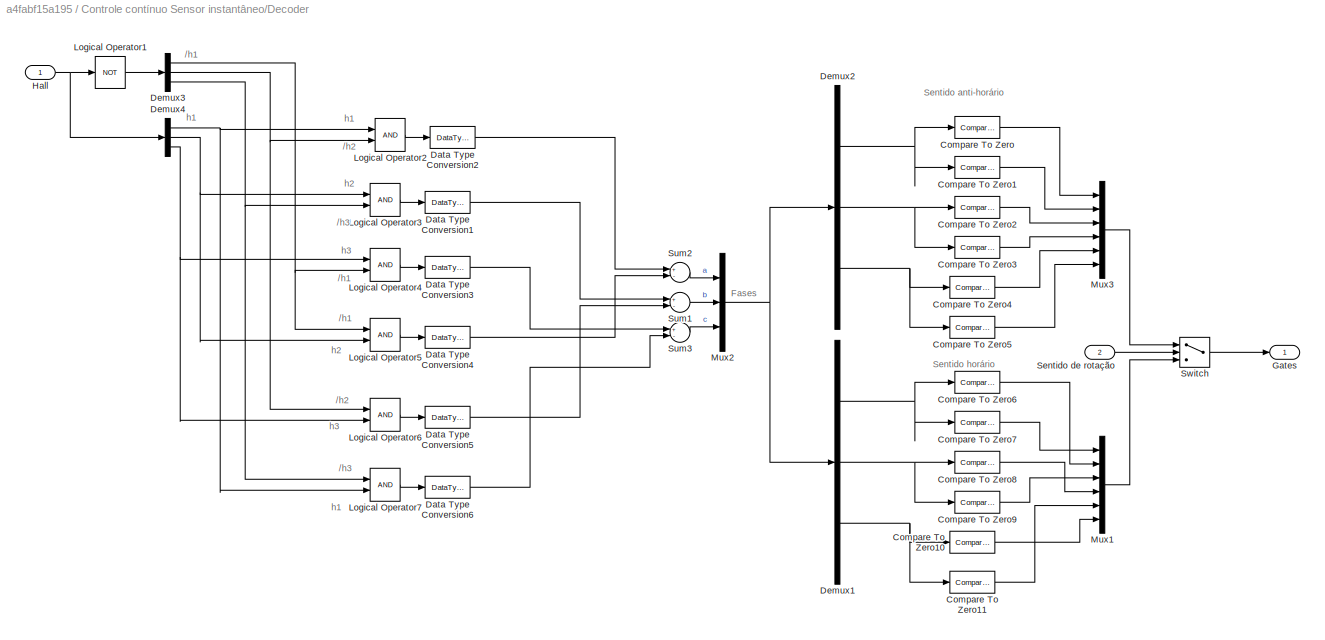
BLOCK [SubSystem] Controle contínuo Sensor instantâneo/Decoder
  FunctionWithSeparateData = off
  MaskHideContents = off
  MinAlgLoopOccurrences = off
  Opaque = off
  Ports = [2, 1]
  PropExecContextOutsideSubsystem = off
  RTWSystemCode = Auto
  RequestExecContextInheritance = off
BLOCK [Reference] Controle contínuo Sensor instantâneo/Decoder/Compare To Zero  REF=simulink/Logic and Bit
Operations/Compare
To Zero
  OutDataTypeStr = boolean
  Ports = [1, 1]
  SourceBlock = simulink/Logic and Bit\nOperations/Compare\nTo Zero
  SourceType = Compare To Zero
  ZeroCross = off
  relop = >
BLOCK [Reference] Controle contínuo Sensor instantâneo/Decoder/Compare To Zero1  REF=simulink/Logic and Bit
Operations/Compare
To Zero
  OutDataTypeStr = boolean
  Ports = [1, 1]
  SourceBlock = simulink/Logic and Bit\nOperations/Compare\nTo Zero
  SourceType = Compare To Zero
  ZeroCross = off
  relop = <
BLOCK [Reference] Controle contínuo Sensor instantâneo/Decoder/Compare To Zero10  REF=simulink/Logic and Bit
Operations/Compare
To Zero
  OutDataTypeStr = boolean
  Ports = [1, 1]
  SourceBlock = simulink/Logic and Bit\nOperations/Compare\nTo Zero
  SourceType = Compare To Zero
  ZeroCross = off
  relop = >
BLOCK [Reference] Controle contínuo Sensor instantâneo/Decoder/Compare To Zero11  REF=simulink/Logic and Bit
Operations/Compare
To Zero
  OutDataTypeStr = boolean
  Ports = [1, 1]
  SourceBlock = simulink/Logic and Bit\nOperations/Compare\nTo Zero
  SourceType = Compare To Zero
  ZeroCross = off
  relop = <
BLOCK [Reference] Controle contínuo Sensor instantâneo/Decoder/Compare To Zero2  REF=simulink/Logic and Bit
Operations/Compare
To Zero
  OutDataTypeStr = boolean
  Ports = [1, 1]
  SourceBlock = simulink/Logic and Bit\nOperations/Compare\nTo Zero
  SourceType = Compare To Zero
  ZeroCross = off
  relop = >
BLOCK [Reference] Controle contínuo Sensor instantâneo/Decoder/Compare To Zero3  REF=simulink/Logic and Bit
Operations/Compare
To Zero
  OutDataTypeStr = boolean
  Ports = [1, 1]
  SourceBlock = simulink/Logic and Bit\nOperations/Compare\nTo Zero
  SourceType = Compare To Zero
  ZeroCross = off
  relop = <
BLOCK [Reference] Controle contínuo Sensor instantâneo/Decoder/Compare To Zero4  REF=simulink/Logic and Bit
Operations/Compare
To Zero
  OutDataTypeStr = boolean
  Ports = [1, 1]
  SourceBlock = simulink/Logic and Bit\nOperations/Compare\nTo Zero
  SourceType = Compare To Zero
  ZeroCross = off
  relop = >
BLOCK [Reference] Controle contínuo Sensor instantâneo/Decoder/Compare To Zero5  REF=simulink/Logic and Bit
Operations/Compare
To Zero
  OutDataTypeStr = boolean
  Ports = [1, 1]
  SourceBlock = simulink/Logic and Bit\nOperations/Compare\nTo Zero
  SourceType = Compare To Zero
  ZeroCross = off
  relop = <
BLOCK [Reference] Controle contínuo Sensor instantâneo/Decoder/Compare To Zero6  REF=simulink/Logic and Bit
Operations/Compare
To Zero
  OutDataTypeStr = boolean
  Ports = [1, 1]
  SourceBlock = simulink/Logic and Bit\nOperations/Compare\nTo Zero
  SourceType = Compare To Zero
  ZeroCross = off
  relop = >
BLOCK [Reference] Controle contínuo Sensor instantâneo/Decoder/Compare To Zero7  REF=simulink/Logic and Bit
Operations/Compare
To Zero
  OutDataTypeStr = boolean
  Ports = [1, 1]
  SourceBlock = simulink/Logic and Bit\nOperations/Compare\nTo Zero
  SourceType = Compare To Zero
  ZeroCross = off
  relop = <
BLOCK [Reference] Controle contínuo Sensor instantâneo/Decoder/Compare To Zero8  REF=simulink/Logic and Bit
Operations/Compare
To Zero
  OutDataTypeStr = boolean
  Ports = [1, 1]
  SourceBlock = simulink/Logic and Bit\nOperations/Compare\nTo Zero
  SourceType = Compare To Zero
  ZeroCross = off
  relop = >
BLOCK [Reference] Controle contínuo Sensor instantâneo/Decoder/Compare To Zero9  REF=simulink/Logic and Bit
Operations/Compare
To Zero
  OutDataTypeStr = boolean
  Ports = [1, 1]
  SourceBlock = simulink/Logic and Bit\nOperations/Compare\nTo Zero
  SourceType = Compare To Zero
  ZeroCross = off
  relop = <
BLOCK [DataTypeConversion] Controle contínuo Sensor instantâneo/Decoder/Data Type Conversion1
  RndMeth = Floor
  SaturateOnIntegerOverflow = off
BLOCK [DataTypeConversion] Controle contínuo Sensor instantâneo/Decoder/Data Type Conversion2
  RndMeth = Floor
  SaturateOnIntegerOverflow = off
BLOCK [DataTypeConversion] Controle contínuo Sensor instantâneo/Decoder/Data Type Conversion3
  RndMeth = Floor
  SaturateOnIntegerOverflow = off
BLOCK [DataTypeConversion] Controle contínuo Sensor instantâneo/Decoder/Data Type Conversion4
  RndMeth = Floor
  SaturateOnIntegerOverflow = off
BLOCK [DataTypeConversion] Controle contínuo Sensor instantâneo/Decoder/Data Type Conversion5
  RndMeth = Floor
  SaturateOnIntegerOverflow = off
BLOCK [DataTypeConversion] Controle contínuo Sensor instantâneo/Decoder/Data Type Conversion6
  RndMeth = Floor
  SaturateOnIntegerOverflow = off
BLOCK [Demux] Controle contínuo Sensor instantâneo/Decoder/Demux1
  DisplayOption = bar
  Outputs = 3
  Ports = [1, 3]
BLOCK [Demux] Controle contínuo Sensor instantâneo/Decoder/Demux2
  DisplayOption = bar
  Outputs = 3
  Ports = [1, 3]
BLOCK [Demux] Controle contínuo Sensor instantâneo/Decoder/Demux3
  DisplayOption = bar
  Outputs = 3
  Ports = [1, 3]
BLOCK [Demux] Controle contínuo Sensor instantâneo/Decoder/Demux4
  DisplayOption = bar
  Outputs = 3
  Ports = [1, 3]
BLOCK [Outport] Controle contínuo Sensor instantâneo/Decoder/Gates
  IconDisplay = Port number
BLOCK [Inport] Controle contínuo Sensor instantâneo/Decoder/Hall 
  IconDisplay = Port number
BLOCK [Logic] Controle contínuo Sensor instantâneo/Decoder/Logical Operator1
  AllPortsSameDT = off
  Operator = NOT
  OutDataTypeStr = boolean
  Ports = [1, 1]
BLOCK [Logic] Controle contínuo Sensor instantâneo/Decoder/Logical Operator2
  AllPortsSameDT = off
  OutDataTypeStr = boolean
  Ports = [2, 1]
BLOCK [Logic] Controle contínuo Sensor instantâneo/Decoder/Logical Operator3
  AllPortsSameDT = off
  OutDataTypeStr = boolean
  Ports = [2, 1]
BLOCK [Logic] Controle contínuo Sensor instantâneo/Decoder/Logical Operator4
  AllPortsSameDT = off
  OutDataTypeStr = boolean
  Ports = [2, 1]
BLOCK [Logic] Controle contínuo Sensor instantâneo/Decoder/Logical Operator5
  AllPortsSameDT = off
  OutDataTypeStr = boolean
  Ports = [2, 1]
BLOCK [Logic] Controle contínuo Sensor instantâneo/Decoder/Logical Operator6
  AllPortsSameDT = off
  OutDataTypeStr = boolean
  Ports = [2, 1]
BLOCK [Logic] Controle contínuo Sensor instantâneo/Decoder/Logical Operator7
  AllPortsSameDT = off
  OutDataTypeStr = boolean
  Ports = [2, 1]
BLOCK [Mux] Controle contínuo Sensor instantâneo/Decoder/Mux1
  DisplayOption = bar
  Inputs = 6
  Ports = [6, 1]
BLOCK [Mux] Controle contínuo Sensor instantâneo/Decoder/Mux2
  DisplayOption = bar
  Inputs = 3
  Ports = [3, 1]
BLOCK [Mux] Controle contínuo Sensor instantâneo/Decoder/Mux3
  DisplayOption = bar
  Inputs = 6
  Ports = [6, 1]
BLOCK [Inport] Controle contínuo Sensor instantâneo/Decoder/Sentido de rotação
  IconDisplay = Port number
  Port = 2
BLOCK [Sum] Controle contínuo Sensor instantâneo/Decoder/Sum1
  InputSameDT = off
  Inputs = +-
  OutDataTypeStr = double
  Ports = [2, 1]
  SaturateOnIntegerOverflow = off
BLOCK [Sum] Controle contínuo Sensor instantâneo/Decoder/Sum2
  InputSameDT = off
  Inputs = +-
  OutDataTypeStr = double
  Ports = [2, 1]
  SaturateOnIntegerOverflow = off
BLOCK [Sum] Controle contínuo Sensor instantâneo/Decoder/Sum3
  InputSameDT = off
  Inputs = +-
  OutDataTypeStr = double
  Ports = [2, 1]
  SaturateOnIntegerOverflow = off
BLOCK [Switch] Controle contínuo Sensor instantâneo/Decoder/Switch
  Criteria = u2 > Threshold
  InputSameDT = off
  SaturateOnIntegerOverflow = off
BLOCK [Gain] Controle contínuo Sensor instantâneo/Gain
  Gain = P/2
  OutDataTypeStr = Inherit: Inherit via internal rule
  ParamDataTypeStr = Inherit: Inherit via internal rule
  SaturateOnIntegerOverflow = off
BLOCK [SubSystem] Controle contínuo Sensor instantâneo/Inversor
  FunctionWithSeparateData = off
  MaskHideContents = off
  MinAlgLoopOccurrences = off
  Opaque = off
  Ports = [2, 3]
  PropExecContextOutsideSubsystem = off
  RTWSystemCode = Auto
  RequestExecContextInheritance = off
BLOCK [Reference] Controle contínuo Sensor instantâneo/Inversor/Compare To Zero  REF=simulink/Logic and Bit
Operations/Compare
To Zero
  OutDataTypeStr = uint8
  Ports = [1, 1]
  SourceBlock = simulink/Logic and Bit\nOperations/Compare\nTo Zero
  SourceType = Compare To Zero
  ZeroCross = off
  relop = >
BLOCK [Reference] Controle contínuo Sensor instantâneo/Inversor/Compare To Zero10  REF=simulink/Logic and Bit
Operations/Compare
To Zero
  OutDataTypeStr = boolean
  Ports = [1, 1]
  SourceBlock = simulink/Logic and Bit\nOperations/Compare\nTo Zero
  SourceType = Compare To Zero
  ZeroCross = off
  relop = >
BLOCK [Reference] Controle contínuo Sensor instantâneo/Inversor/Compare To Zero2  REF=simulink/Logic and Bit
Operations/Compare
To Zero
  OutDataTypeStr = boolean
  Ports = [1, 1]
  SourceBlock = simulink/Logic and Bit\nOperations/Compare\nTo Zero
  SourceType = Compare To Zero
  ZeroCross = off
  relop = >
BLOCK [Reference] Controle contínuo Sensor instantâneo/Inversor/Compare To Zero4  REF=simulink/Logic and Bit
Operations/Compare
To Zero
  OutDataTypeStr = uint8
  Ports = [1, 1]
  SourceBlock = simulink/Logic and Bit\nOperations/Compare\nTo Zero
  SourceType = Compare To Zero
  ZeroCross = off
  relop = >
BLOCK [Reference] Controle contínuo Sensor instantâneo/Inversor/Compare To Zero6  REF=simulink/Logic and Bit
Operations/Compare
To Zero
  OutDataTypeStr = boolean
  Ports = [1, 1]
  SourceBlock = simulink/Logic and Bit\nOperations/Compare\nTo Zero
  SourceType = Compare To Zero
  ZeroCross = off
  relop = >
BLOCK [Reference] Controle contínuo Sensor instantâneo/Inversor/Compare To Zero8  REF=simulink/Logic and Bit
Operations/Compare
To Zero
  OutDataTypeStr = boolean
  Ports = [1, 1]
  SourceBlock = simulink/Logic and Bit\nOperations/Compare\nTo Zero
  SourceType = Compare To Zero
  ZeroCross = off
  relop = >
BLOCK [DataTypeConversion] Controle contínuo Sensor instantâneo/Inversor/Data Type Conversion
  OutDataTypeStr = double
  RndMeth = Floor
  SaturateOnIntegerOverflow = off
BLOCK [DataTypeConversion] Controle contínuo Sensor instantâneo/Inversor/Data Type Conversion1
  OutDataTypeStr = double
  RndMeth = Floor
  SaturateOnIntegerOverflow = off
BLOCK [DataTypeConversion] Controle contínuo Sensor instantâneo/Inversor/Data Type Conversion2
  OutDataTypeStr = double
  RndMeth = Floor
  SaturateOnIntegerOverflow = off
BLOCK [DataTypeConversion] Controle contínuo Sensor instantâneo/Inversor/Data Type Conversion3
  OutDataTypeStr = double
  RndMeth = Floor
  SaturateOnIntegerOverflow = off
BLOCK [DataTypeConversion] Controle contínuo Sensor instantâneo/Inversor/Data Type Conversion4
  OutDataTypeStr = double
  RndMeth = Floor
  SaturateOnIntegerOverflow = off
BLOCK [DataTypeConversion] Controle contínuo Sensor instantâneo/Inversor/Data Type Conversion5
  OutDataTypeStr = double
  RndMeth = Floor
  SaturateOnIntegerOverflow = off
BLOCK [Demux] Controle contínuo Sensor instantâneo/Inversor/Demux2
  DisplayOption = bar
  Outputs = 6
  Ports = [1, 6]
BLOCK [Gain] Controle contínuo Sensor instantâneo/Inversor/Gain
  Gain = 1/2
  OutDataTypeStr = Inherit: Inherit via internal rule
  ParamDataTypeStr = Inherit: Inherit via internal rule
  SaturateOnIntegerOverflow = off
BLOCK [Gain] Controle contínuo Sensor instantâneo/Inversor/Gain1
  Gain = -1
  OutDataTypeStr = Inherit: Inherit via internal rule
  ParamDataTypeStr = Inherit: Inherit via internal rule
  SaturateOnIntegerOverflow = off
BLOCK [Inport] Controle contínuo Sensor instantâneo/Inversor/Gates
  IconDisplay = Port number
BLOCK [Product] Controle contínuo Sensor instantâneo/Inversor/Product
  InputSameDT = off
  OutDataTypeStr = Inherit: Inherit via internal rule
  Ports = [2, 1]
  SaturateOnIntegerOverflow = off
BLOCK [Product] Controle contínuo Sensor instantâneo/Inversor/Product1
  InputSameDT = off
  OutDataTypeStr = Inherit: Inherit via internal rule
  Ports = [2, 1]
  SaturateOnIntegerOverflow = off
BLOCK [Product] Controle contínuo Sensor instantâneo/Inversor/Product2
  InputSameDT = off
  OutDataTypeStr = Inherit: Inherit via internal rule
  Ports = [2, 1]
  SaturateOnIntegerOverflow = off
BLOCK [Product] Controle contínuo Sensor instantâneo/Inversor/Product3
  InputSameDT = off
  OutDataTypeStr = Inherit: Inherit via internal rule
  Ports = [2, 1]
  SaturateOnIntegerOverflow = off
BLOCK [Product] Controle contínuo Sensor instantâneo/Inversor/Product4
  InputSameDT = off
  OutDataTypeStr = Inherit: Inherit via internal rule
  Ports = [2, 1]
  SaturateOnIntegerOverflow = off
BLOCK [Product] Controle contínuo Sensor instantâneo/Inversor/Product5
  InputSameDT = off
  OutDataTypeStr = Inherit: Inherit via internal rule
  Ports = [2, 1]
  SaturateOnIntegerOverflow = off
BLOCK [Sum] Controle contínuo Sensor instantâneo/Inversor/Sum1
  InputSameDT = off
  OutDataTypeStr = Inherit: Inherit via internal rule
  Ports = [2, 1]
BLOCK [Sum] Controle contínuo Sensor instantâneo/Inversor/Sum2
  InputSameDT = off
  OutDataTypeStr = Inherit: Inherit via internal rule
  Ports = [2, 1]
BLOCK [Sum] Controle contínuo Sensor instantâneo/Inversor/Sum3
  InputSameDT = off
  OutDataTypeStr = Inherit: Inherit via internal rule
  Ports = [2, 1]
BLOCK [Outport] Controle contínuo Sensor instantâneo/Inversor/Va
  IconDisplay = Port number
BLOCK [Outport] Controle contínuo Sensor instantâneo/Inversor/Vb
  IconDisplay = Port number
  Port = 2
BLOCK [Outport] Controle contínuo Sensor instantâneo/Inversor/Vc
  IconDisplay = Port number
  Port = 3
BLOCK [Inport] Controle contínuo Sensor instantâneo/Inversor/Vcc
  IconDisplay = Port number
  Port = 2
BLOCK [Reference] Controle contínuo Sensor instantâneo/PID Controller  REF=simulink/Continuous/PID Controller
  AntiWindupMode = none
  Controller = PI
  D = 0
  DOutDataTypeStr = Inherit: Inherit via internal rule
  DOutMax = [ ]
  DOutMin = [ ]
  DParamDataTypeStr = Inherit: Inherit via internal rule
  DParamMax = [ ]
  DParamMin = [ ]
  ExternalReset = none
  FilterContinuousStateAttributes = ''
  FilterMethod = Forward Euler
  FilterOutDataTypeStr = Inherit: Inherit via internal rule
  FilterOutMax = [ ]
  FilterOutMin = [ ]
  FilterRTWStateStorageClass = Auto
  FilterStateMustResolveToSignalObject = off
  Form = Parallel
  I = 0.0431725782178291
  IOutDataTypeStr = Inherit: Inherit via internal rule
  IOutMax = [ ]
  IOutMin = [ ]
  IParamDataTypeStr = Inherit: Inherit via internal rule
  IParamMax = [ ]
  IParamMin = [ ]
  IgnoreLimit = off
  InitialConditionForFilter = 0
  InitialConditionForIntegrator = 0
  InitialConditionSource = internal
  IntegratorContinuousStateAttributes = ''
  IntegratorMethod = Forward Euler
  IntegratorOutDataTypeStr = Inherit: Inherit via internal rule
  IntegratorOutMax = [ ]
  IntegratorOutMin = [ ]
  IntegratorRTWStateStorageClass = Auto
  IntegratorStateMustResolveToSignalObject = off
  Kb = 1
  KbOutDataTypeStr = Inherit: Inherit via internal rule
  KbOutMax = [ ]
  KbOutMin = [ ]
  KbParamDataTypeStr = Inherit: Inherit via internal rule
  KbParamMax = [ ]
  KbParamMin = [ ]
  Kt = 1
  KtOutDataTypeStr = Inherit: Inherit via internal rule
  KtOutMax = [ ]
  KtOutMin = [ ]
  KtParamDataTypeStr = Inherit: Inherit via internal rule
  KtParamMax = [ ]
  KtParamMin = [ ]
  LimitOutput = on
  LinearizeAsGain = off
  LockScale = off
  LowerSaturationLimit = -12
  N = 100
  NOutDataTypeStr = Inherit: Inherit via internal rule
  NOutMax = [ ]
  NOutMin = [ ]
  NParamDataTypeStr = Inherit: Inherit via internal rule
  NParamMax = [ ]
  NParamMin = [ ]
  P = 0.000518154594293452
  POutDataTypeStr = Inherit: Inherit via internal rule
  POutMax = [ ]
  POutMin = [ ]
  PParamDataTypeStr = Inherit: Inherit via internal rule
  PParamMax = [ ]
  PParamMin = [ ]
  Ports = [1, 1]
  RndMeth = Floor
  SampleTime = 1
  SaturateOnIntegerOverflow = off
  SaturationOutDataTypeStr = Inherit: Same as input
  SaturationOutMax = [ ]
  SaturationOutMin = [ ]
  SourceBlock = simulink/Continuous/PID Controller
  SourceType = PID 1dof
  SumAccumDataTypeStr = Inherit: Inherit via internal rule
  SumDAccumDataTypeStr = Inherit: Inherit via internal rule
  SumDOutDataTypeStr = Inherit: Inherit via internal rule
  SumDOutMax = [ ]
  SumDOutMin = [ ]
  SumI1AccumDataTypeStr = Inherit: Inherit via internal rule
  SumI1OutDataTypeStr = Inherit: Inherit via internal rule
  SumI1OutMax = [ ]
  SumI1OutMin = [ ]
  SumI2AccumDataTypeStr = Inherit: Inherit via internal rule
  SumI2OutDataTypeStr = Inherit: Inherit via internal rule
  SumI2OutMax = [ ]
  SumI2OutMin = [ ]
  SumI3AccumDataTypeStr = Inherit: Inherit via internal rule
  SumI3OutDataTypeStr = Inherit: Inherit via internal rule
  SumI3OutMax = [ ]
  SumI3OutMin = [ ]
  SumOutDataTypeStr = Inherit: Inherit via internal rule
  SumOutMax = [ ]
  SumOutMin = [ ]
  TimeDomain = Continuous-time
  TrackingMode = off
  UpperSaturationLimit = 12
  ZeroCross = off
BLOCK [SubSystem] Controle contínuo Sensor instantâneo/Sensores Hall
  AncestorBlock = spsPMSynchronousMachineModel/Discrete Trapezoidal/Hall effect sensor
  FunctionWithSeparateData = off
  MaskHideContents = off
  MinAlgLoopOccurrences = off
  Opaque = off
  Ports = [1, 1]
  PropExecContextOutsideSubsystem = off
  RTWSystemCode = Auto
  RequestExecContextInheritance = off
BLOCK [Constant] Controle contínuo Sensor instantâneo/Sensores Hall/Constant10
  Value = 240
BLOCK [Constant] Controle contínuo Sensor instantâneo/Sensores Hall/Constant11
  Value = 360
BLOCK [Constant] Controle contínuo Sensor instantâneo/Sensores Hall/Constant12
  Value = 180
BLOCK [Constant] Controle contínuo Sensor instantâneo/Sensores Hall/Constant6
  Value = 0
BLOCK [Constant] Controle contínuo Sensor instantâneo/Sensores Hall/Constant7
  Value = 120
BLOCK [Constant] Controle contínuo Sensor instantâneo/Sensores Hall/Constant8
  Value = 300
BLOCK [Constant] Controle contínuo Sensor instantâneo/Sensores Hall/Constant9
  Value = 60
BLOCK [DataTypeConversion] Controle contínuo Sensor instantâneo/Sensores Hall/Data Type Conversion3
BLOCK [DataTypeConversion] Controle contínuo Sensor instantâneo/Sensores Hall/Data Type Conversion4
BLOCK [DataTypeConversion] Controle contínuo Sensor instantâneo/Sensores Hall/Data Type Conversion5
BLOCK [Gain] Controle contínuo Sensor instantâneo/Sensores Hall/Gain1
  Gain = 180/pi
  OutDataTypeStr = Inherit: Inherit via internal rule
  ParamDataTypeStr = Inherit: Inherit via internal rule
  SaturateOnIntegerOverflow = off
BLOCK [Outport] Controle contínuo Sensor instantâneo/Sensores Hall/Hall
  IconDisplay = Port number
BLOCK [Logic] Controle contínuo Sensor instantâneo/Sensores Hall/Logical Operator3
  AllPortsSameDT = off
  OutDataTypeStr = boolean
  Ports = [2, 1]
BLOCK [Logic] Controle contínuo Sensor instantâneo/Sensores Hall/Logical Operator4
  AllPortsSameDT = off
  Operator = OR
  OutDataTypeStr = boolean
  Ports = [2, 1]
BLOCK [Logic] Controle contínuo Sensor instantâneo/Sensores Hall/Logical Operator5
  AllPortsSameDT = off
  OutDataTypeStr = boolean
  Ports = [2, 1]
BLOCK [Math] Controle contínuo Sensor instantâneo/Sensores Hall/Math Function1
  Operator = mod
  Ports = [2, 1]
BLOCK [Mux] Controle contínuo Sensor instantâneo/Sensores Hall/Mux1
  DisplayOption = bar
  Inputs = 3
  Ports = [3, 1]
BLOCK [RelationalOperator] Controle contínuo Sensor instantâneo/Sensores Hall/Relational Operator10
  Ports = [2, 1]
BLOCK [RelationalOperator] Controle contínuo Sensor instantâneo/Sensores Hall/Relational Operator11
  Operator = <=
  Ports = [2, 1]
BLOCK [RelationalOperator] Controle contínuo Sensor instantâneo/Sensores Hall/Relational Operator12
  Ports = [2, 1]
BLOCK [RelationalOperator] Controle contínuo Sensor instantâneo/Sensores Hall/Relational Operator7
  Ports = [2, 1]
BLOCK [RelationalOperator] Controle contínuo Sensor instantâneo/Sensores Hall/Relational Operator8
  Operator = <=
  Ports = [2, 1]
BLOCK [RelationalOperator] Controle contínuo Sensor instantâneo/Sensores Hall/Relational Operator9
  Ports = [2, 1]
BLOCK [Inport] Controle contínuo Sensor instantâneo/Sensores Hall/teta_e
  IconDisplay = Port number
BLOCK [Step] Controle contínuo Sensor instantâneo/Step
  After = 0*2e-3
  SampleTime = 0
  Time = 0.2
BLOCK [Inport] Controle contínuo Sensor instantâneo/ref
  IconDisplay = Port number
BLOCK [Outport] Controle contínuo Sensor instantâneo/w
  IconDisplay = Port number
BLOCK [SignalViewerScope] Correntes
  IOType = viewer
  LimitDataPoints = off
  MaxDataPoints = 7500
  NumInputPorts = 3
  Ports = []
  RefreshTime = 0.035000
  ShowDataMarkers = off
  ShowLegends = off
  YMax = 5~5~5
  YMin = -5~-5~-5
  ZoomMode = yonly
BLOCK [SignalViewerScope] FCEMs
  IOType = viewer
  LimitDataPoints = off
  MaxDataPoints = 7500
  NumInputPorts = 3
  Ports = []
  RefreshTime = 0.035000
  SaveName = ScopeData2
  ShowDataMarkers = off
  ShowLegends = off
  YMax = 5~5~5
  YMin = -5~-5~-5
BLOCK [Scope] Scope
  DataFormat = StructureWithTime
  Floating = off
  LimitDataPoints = off
  NumInputPorts = 1
  Ports = [1]
  SampleTime = 0
  ShowLegends = off
  TimeRange = 1
  YMax = 3000
  YMin = 1600
BLOCK [SignalViewerScope] Scope1
  IOType = viewer
  LimitDataPoints = off
  MaxDataPoints = 7500
  NumInputPorts = 1
  Ports = []
  RefreshTime = 0.035000
  SaveName = ScopeData3
  ShowDataMarkers = off
  ShowLegends = off
BLOCK [SignalViewerScope] Scope2
  IOType = viewer
  LimitDataPoints = off
  MaxDataPoints = 7500
  NumInputPorts = 1
  Ports = []
  RefreshTime = 0.035000
  SaveName = ScopeData4
  ShowDataMarkers = off
  ShowLegends = off
BLOCK [Scope] Scope4
  DataFormat = StructureWithTime
  Floating = off
  LegendLocations = 0.82258     0.87115     0.15351     0.04439
  LimitDataPoints = off
  NumInputPorts = 1
  Ports = [1]
  SampleTime = 0
  SaveName = ScopeData7
  ShowLegends = on
  TimeRange = 0.5
  YMax = 4500
  YMin = -1000
BLOCK [SignalViewerScope] Torque
  IOType = viewer
  LimitDataPoints = off
  MaxDataPoints = 7500
  NumInputPorts = 1
  Ports = []
  RefreshTime = 0.035000
  SaveName = Torque
  SaveToWorkspace = on
  ShowDataMarkers = off
  ShowLegends = off
  ZoomMode = xonly
BLOCK [SignalViewerScope] Torques por fase
  IOType = viewer
  LimitDataPoints = off
  MaxDataPoints = 7500
  NumInputPorts = 3
  Ports = []
  RefreshTime = 0.035000
  SaveName = ScopeData1
  ShowDataMarkers = off
  ShowLegends = off
  YMax = 5~5~5
  YMin = -5~-5~-5
  ZoomMode = xonly
ANNOTATION Controlador discreto Sensor discreto M/BLDC1/Dinâmica fase "a": Gain
ANNOTATION Controlador discreto Sensor discreto M/BLDC1/Dinâmica fase "b": Gain
ANNOTATION Controlador discreto Sensor discreto M/BLDC1/Dinâmica fase "c": Gain
ANNOTATION Controlador discreto Sensor discreto M/Decoder1: /h1
ANNOTATION Controlador discreto Sensor discreto M/Decoder1: /h2
ANNOTATION Controlador discreto Sensor discreto M/Decoder1: /h3
ANNOTATION Controlador discreto Sensor discreto M/Decoder1: Fases
ANNOTATION Controlador discreto Sensor discreto M/Decoder1: Sentido anti-horário
ANNOTATION Controlador discreto Sensor discreto M/Decoder1: Sentido horário
ANNOTATION Controlador discreto Sensor discreto M/Decoder1: h1
ANNOTATION Controlador discreto Sensor discreto M/Decoder1: h2
ANNOTATION Controlador discreto Sensor discreto M/Decoder1: h3
ANNOTATION Controlador discreto Sensor discreto M/Encoder1: ATENÇÃO: Para o correto funcionamento desse encoder o step size da simulação deve ser menor do que 360/(4*Nr*Vmax), onde Vmax é o valor máximo da derivada do Theta atigindo durante a simulação
ANNOTATION Controlador discreto Sensor discreto M/Encoder1/Determinar direçao: 0 - + 0 + 0 0 - - 0 0 + 0 + - 0
ANNOTATION Controlador discreto Sensor discreto M/Encoder1/Determinar direçao: 00 01 10 11
ANNOTATION Controlador discreto Sensor discreto M/Encoder1/Determinar direçao: A'B'
ANNOTATION Controlador discreto Sensor discreto M/Encoder1/Determinar direçao: A,B = Valores atuais dos sinais A e B A'B' = Valores passados do sinais A e B
ANNOTATION Controlador discreto Sensor discreto M/Encoder1/Determinar direçao: AB
ANNOTATION Controlador discreto Sensor discreto M/Encoder1/Determinar direçao: Dependendo dos valores passados e dos valores atuais dos pulsos de cada sensor óptico, determina o sentido de rotaçao.
ANNOTATION Controlador discreto Sensor discreto M/Encoder1/Determinar direçao: Implementa a seguinte tabela verdade:
ANNOTATION Controlador discreto Sensor discreto M/Encoder1/Método T/Contador: Contador de pulsos Conta o número de steps que a entrada "In" fica em nível lógico alto; reset em 1 zera. Pode ser utilizado como contador se a entrada so ficar em nível alto por somente um simulation step (por exemplo utilizando um bloco de "detect change").
ANNOTATION Controlador discreto Sensor discreto M/Encoder1/Método T/Memória controlavel: Memória controlável Se "ctrl" = 1, "Out" = "In" Se "ctrl" = 0, "Out" mantém mesmo valor
ANNOTATION Controlador discreto Sensor discreto M/Encoder1/Método T/Memória controlavel1: Memória controlável Se "ctrl" = 1, "Out" = "In" Se "ctrl" = 0, "Out" mantém mesmo valor
ANNOTATION Controlador discreto Sensor discreto M/Encoder1/Sensor Óptico: Saída do sensor óptico é: 1, se 0 < mod(T,Tp) < \frac{Tp}{2} 0, se Tp/2 < mod(T,Tp) < Tp
ANNOTATION Controlador discreto Sensor discreto M/Encoder1/Sensor Óptico1: Saída do sensor óptico é: 1, se 0 < mod(T-Tp/4,Tp) < Tp/2 0, se Tp/2 < mod(T-Tp/4,Tp) < Tp
ANNOTATION Controlador discreto Sensor discreto M/Encoder1/Subsystem: Dependendo do sentido da rotaçao, incrementa ou decrementa o contador
ANNOTATION Controle contínuo Sensor instantâneo/BLDC/Dinâmica fase "a": Gain
ANNOTATION Controle contínuo Sensor instantâneo/BLDC/Dinâmica fase "b": Gain
ANNOTATION Controle contínuo Sensor instantâneo/BLDC/Dinâmica fase "c": Gain
ANNOTATION Controle contínuo Sensor instantâneo/Decoder: /h1
ANNOTATION Controle contínuo Sensor instantâneo/Decoder: /h2
ANNOTATION Controle contínuo Sensor instantâneo/Decoder: /h3
ANNOTATION Controle contínuo Sensor instantâneo/Decoder: Fases
ANNOTATION Controle contínuo Sensor instantâneo/Decoder: Sentido anti-horário
ANNOTATION Controle contínuo Sensor instantâneo/Decoder: Sentido horário
ANNOTATION Controle contínuo Sensor instantâneo/Decoder: h1
ANNOTATION Controle contínuo Sensor instantâneo/Decoder: h2
ANNOTATION Controle contínuo Sensor instantâneo/Decoder: h3
LINE Bus Creator1:1 -> Scope4:1
NET Constant1:1 -> Controlador discreto Sensor discreto M:1, Controle contínuo Sensor instantâneo:1
LINE Controlador discreto Sensor discreto M/Add2:1 -> Controlador discreto Sensor discreto M/Rate Transition:1
LINE Controlador discreto Sensor discreto M/Anti-horário1:1 -> Controlador discreto Sensor discreto M/Decoder1:2
LINE Controlador discreto Sensor discreto M/BLDC1/Cálculo Torque fase "a"/Constant1:1 -> Controlador discreto Sensor discreto M/BLDC1/Cálculo Torque fase "a"/Math Function1:2
LINE Controlador discreto Sensor discreto M/BLDC1/Cálculo Torque fase "a"/Gain1:1 -> Controlador discreto Sensor discreto M/BLDC1/Cálculo Torque fase "a"/Math Function1:1
LINE Controlador discreto Sensor discreto M/BLDC1/Cálculo Torque fase "a"/Gain:1 -> Controlador discreto Sensor discreto M/BLDC1/Cálculo Torque fase "a"/Product:2
LINE Controlador discreto Sensor discreto M/BLDC1/Cálculo Torque fase "a"/Math Function1:1 -> Controlador discreto Sensor discreto M/BLDC1/Cálculo Torque fase "a"/fa1:1
LINE Controlador discreto Sensor discreto M/BLDC1/Cálculo Torque fase "a"/Product:1 -> Controlador discreto Sensor discreto M/BLDC1/Cálculo Torque fase "a"/T_a:1
LINE Controlador discreto Sensor discreto M/BLDC1/Cálculo Torque fase "a"/Theta_e:1 -> Controlador discreto Sensor discreto M/BLDC1/Cálculo Torque fase "a"/Gain1:1
LINE Controlador discreto Sensor discreto M/BLDC1/Cálculo Torque fase "a"/fa1:1 -> Controlador discreto Sensor discreto M/BLDC1/Cálculo Torque fase "a"/Product:1
LINE Controlador discreto Sensor discreto M/BLDC1/Cálculo Torque fase "a"/i_a:1 -> Controlador discreto Sensor discreto M/BLDC1/Cálculo Torque fase "a"/Gain:1
NET Controlador discreto Sensor discreto M/BLDC1/Cálculo Torque fase "a":1 -> Controlador discreto Sensor discreto M/BLDC1/Sum:1, Controlador discreto Sensor discreto M/BLDC1/is1:1
LINE Controlador discreto Sensor discreto M/BLDC1/Cálculo Torque fase "b"/Constant1:1 -> Controlador discreto Sensor discreto M/BLDC1/Cálculo Torque fase "b"/Math Function1:2
LINE Controlador discreto Sensor discreto M/BLDC1/Cálculo Torque fase "b"/Gain1:1 -> Controlador discreto Sensor discreto M/BLDC1/Cálculo Torque fase "b"/Math Function1:1
LINE Controlador discreto Sensor discreto M/BLDC1/Cálculo Torque fase "b"/Gain:1 -> Controlador discreto Sensor discreto M/BLDC1/Cálculo Torque fase "b"/Product:2
LINE Controlador discreto Sensor discreto M/BLDC1/Cálculo Torque fase "b"/Math Function1:1 -> Controlador discreto Sensor discreto M/BLDC1/Cálculo Torque fase "b"/fb2:1
LINE Controlador discreto Sensor discreto M/BLDC1/Cálculo Torque fase "b"/Product:1 -> Controlador discreto Sensor discreto M/BLDC1/Cálculo Torque fase "b"/T_b:1
LINE Controlador discreto Sensor discreto M/BLDC1/Cálculo Torque fase "b"/Theta_e:1 -> Controlador discreto Sensor discreto M/BLDC1/Cálculo Torque fase "b"/Gain1:1
LINE Controlador discreto Sensor discreto M/BLDC1/Cálculo Torque fase "b"/fb2:1 -> Controlador discreto Sensor discreto M/BLDC1/Cálculo Torque fase "b"/Product:1
LINE Controlador discreto Sensor discreto M/BLDC1/Cálculo Torque fase "b"/i_b:1 -> Controlador discreto Sensor discreto M/BLDC1/Cálculo Torque fase "b"/Gain:1
NET Controlador discreto Sensor discreto M/BLDC1/Cálculo Torque fase "b":1 -> Controlador discreto Sensor discreto M/BLDC1/Sum:2, Controlador discreto Sensor discreto M/BLDC1/is1:2
LINE Controlador discreto Sensor discreto M/BLDC1/Cálculo Torque fase "c"/Constant1:1 -> Controlador discreto Sensor discreto M/BLDC1/Cálculo Torque fase "c"/Math Function1:2
LINE Controlador discreto Sensor discreto M/BLDC1/Cálculo Torque fase "c"/Gain1:1 -> Controlador discreto Sensor discreto M/BLDC1/Cálculo Torque fase "c"/Math Function1:1
LINE Controlador discreto Sensor discreto M/BLDC1/Cálculo Torque fase "c"/Gain:1 -> Controlador discreto Sensor discreto M/BLDC1/Cálculo Torque fase "c"/Product:2
LINE Controlador discreto Sensor discreto M/BLDC1/Cálculo Torque fase "c"/Math Function1:1 -> Controlador discreto Sensor discreto M/BLDC1/Cálculo Torque fase "c"/fc1:1
LINE Controlador discreto Sensor discreto M/BLDC1/Cálculo Torque fase "c"/Product:1 -> Controlador discreto Sensor discreto M/BLDC1/Cálculo Torque fase "c"/T_c:1
LINE Controlador discreto Sensor discreto M/BLDC1/Cálculo Torque fase "c"/Theta_e:1 -> Controlador discreto Sensor discreto M/BLDC1/Cálculo Torque fase "c"/Gain1:1
LINE Controlador discreto Sensor discreto M/BLDC1/Cálculo Torque fase "c"/fc1:1 -> Controlador discreto Sensor discreto M/BLDC1/Cálculo Torque fase "c"/Product:1
LINE Controlador discreto Sensor discreto M/BLDC1/Cálculo Torque fase "c"/i_c:1 -> Controlador discreto Sensor discreto M/BLDC1/Cálculo Torque fase "c"/Gain:1
NET Controlador discreto Sensor discreto M/BLDC1/Cálculo Torque fase "c":1 -> Controlador discreto Sensor discreto M/BLDC1/Sum:3, Controlador discreto Sensor discreto M/BLDC1/is1:3
LINE Controlador discreto Sensor discreto M/BLDC1/Cálculo das FCEMs/Constant1:1 -> Controlador discreto Sensor discreto M/BLDC1/Cálculo das FCEMs/Math Function1:2
LINE Controlador discreto Sensor discreto M/BLDC1/Cálculo das FCEMs/Constant2:1 -> Controlador discreto Sensor discreto M/BLDC1/Cálculo das FCEMs/Math Function2:2
LINE Controlador discreto Sensor discreto M/BLDC1/Cálculo das FCEMs/Constant3:1 -> Controlador discreto Sensor discreto M/BLDC1/Cálculo das FCEMs/Math Function3:2
LINE Controlador discreto Sensor discreto M/BLDC1/Cálculo das FCEMs/Gain1:1 -> Controlador discreto Sensor discreto M/BLDC1/Cálculo das FCEMs/Math Function1:1
LINE Controlador discreto Sensor discreto M/BLDC1/Cálculo das FCEMs/Gain2:1 -> Controlador discreto Sensor discreto M/BLDC1/Cálculo das FCEMs/Product:2
LINE Controlador discreto Sensor discreto M/BLDC1/Cálculo das FCEMs/Gain3:1 -> Controlador discreto Sensor discreto M/BLDC1/Cálculo das FCEMs/Product1:2
LINE Controlador discreto Sensor discreto M/BLDC1/Cálculo das FCEMs/Gain4:1 -> Controlador discreto Sensor discreto M/BLDC1/Cálculo das FCEMs/Product2:2
LINE Controlador discreto Sensor discreto M/BLDC1/Cálculo das FCEMs/Gain5:1 -> Controlador discreto Sensor discreto M/BLDC1/Cálculo das FCEMs/Math Function2:1
LINE Controlador discreto Sensor discreto M/BLDC1/Cálculo das FCEMs/Gain6:1 -> Controlador discreto Sensor discreto M/BLDC1/Cálculo das FCEMs/Math Function3:1
LINE Controlador discreto Sensor discreto M/BLDC1/Cálculo das FCEMs/Math Function1:1 -> Controlador discreto Sensor discreto M/BLDC1/Cálculo das FCEMs/fa1:1
LINE Controlador discreto Sensor discreto M/BLDC1/Cálculo das FCEMs/Math Function2:1 -> Controlador discreto Sensor discreto M/BLDC1/Cálculo das FCEMs/fb2:1
LINE Controlador discreto Sensor discreto M/BLDC1/Cálculo das FCEMs/Math Function3:1 -> Controlador discreto Sensor discreto M/BLDC1/Cálculo das FCEMs/fc1:1
LINE Controlador discreto Sensor discreto M/BLDC1/Cálculo das FCEMs/Product1:1 -> Controlador discreto Sensor discreto M/BLDC1/Cálculo das FCEMs/e_b:1
LINE Controlador discreto Sensor discreto M/BLDC1/Cálculo das FCEMs/Product2:1 -> Controlador discreto Sensor discreto M/BLDC1/Cálculo das FCEMs/e_c:1
LINE Controlador discreto Sensor discreto M/BLDC1/Cálculo das FCEMs/Product:1 -> Controlador discreto Sensor discreto M/BLDC1/Cálculo das FCEMs/e_a:1
NET Controlador discreto Sensor discreto M/BLDC1/Cálculo das FCEMs/Theta_e:1 -> Controlador discreto Sensor discreto M/BLDC1/Cálculo das FCEMs/Gain1:1, Controlador discreto Sensor discreto M/BLDC1/Cálculo das FCEMs/Gain5:1, Controlador discreto Sensor discreto M/BLDC1/Cálculo das FCEMs/Gain6:1
LINE Controlador discreto Sensor discreto M/BLDC1/Cálculo das FCEMs/fa1:1 -> Controlador discreto Sensor discreto M/BLDC1/Cálculo das FCEMs/Gain2:1
LINE Controlador discreto Sensor discreto M/BLDC1/Cálculo das FCEMs/fb2:1 -> Controlador discreto Sensor discreto M/BLDC1/Cálculo das FCEMs/Gain3:1
LINE Controlador discreto Sensor discreto M/BLDC1/Cálculo das FCEMs/fc1:1 -> Controlador discreto Sensor discreto M/BLDC1/Cálculo das FCEMs/Gain4:1
NET Controlador discreto Sensor discreto M/BLDC1/Cálculo das FCEMs/w_m:1 -> Controlador discreto Sensor discreto M/BLDC1/Cálculo das FCEMs/Product1:1, Controlador discreto Sensor discreto M/BLDC1/Cálculo das FCEMs/Product2:1, Controlador discreto Sensor discreto M/BLDC1/Cálculo das FCEMs/Product:1
NET Controlador discreto Sensor discreto M/BLDC1/Cálculo das FCEMs:1 -> Controlador discreto Sensor discreto M/BLDC1/Dinâmica fase "a":2, Controlador discreto Sensor discreto M/BLDC1/FCEMs:1
NET Controlador discreto Sensor discreto M/BLDC1/Cálculo das FCEMs:2 -> Controlador discreto Sensor discreto M/BLDC1/Dinâmica fase "b":2, Controlador discreto Sensor discreto M/BLDC1/FCEMs:2
NET Controlador discreto Sensor discreto M/BLDC1/Cálculo das FCEMs:3 -> Controlador discreto Sensor discreto M/BLDC1/Dinâmica fase "c":2, Controlador discreto Sensor discreto M/BLDC1/FCEMs:3
LINE Controlador discreto Sensor discreto M/BLDC1/Dinâmica fase "a"/ :1 -> Controlador discreto Sensor discreto M/BLDC1/Dinâmica fase "a"/Integrator:1
LINE Controlador discreto Sensor discreto M/BLDC1/Dinâmica fase "a"/Gain:1 -> Controlador discreto Sensor discreto M/BLDC1/Dinâmica fase "a"/Sum:3
NET Controlador discreto Sensor discreto M/BLDC1/Dinâmica fase "a"/Integrator:1 -> Controlador discreto Sensor discreto M/BLDC1/Dinâmica fase "a"/Gain:1, Controlador discreto Sensor discreto M/BLDC1/Dinâmica fase "a"/i_a:1
LINE Controlador discreto Sensor discreto M/BLDC1/Dinâmica fase "a"/Sum:1 -> Controlador discreto Sensor discreto M/BLDC1/Dinâmica fase "a"/ :1
LINE Controlador discreto Sensor discreto M/BLDC1/Dinâmica fase "a"/Va:1 -> Controlador discreto Sensor discreto M/BLDC1/Dinâmica fase "a"/Sum:1
LINE Controlador discreto Sensor discreto M/BLDC1/Dinâmica fase "a"/e_a:1 -> Controlador discreto Sensor discreto M/BLDC1/Dinâmica fase "a"/Sum:2
NET Controlador discreto Sensor discreto M/BLDC1/Dinâmica fase "a":1 -> Controlador discreto Sensor discreto M/BLDC1/Cálculo Torque fase "a":1, Controlador discreto Sensor discreto M/BLDC1/is:1
LINE Controlador discreto Sensor discreto M/BLDC1/Dinâmica fase "b"/ :1 -> Controlador discreto Sensor discreto M/BLDC1/Dinâmica fase "b"/Integrator:1
LINE Controlador discreto Sensor discreto M/BLDC1/Dinâmica fase "b"/Gain:1 -> Controlador discreto Sensor discreto M/BLDC1/Dinâmica fase "b"/Sum:3
NET Controlador discreto Sensor discreto M/BLDC1/Dinâmica fase "b"/Integrator:1 -> Controlador discreto Sensor discreto M/BLDC1/Dinâmica fase "b"/Gain:1, Controlador discreto Sensor discreto M/BLDC1/Dinâmica fase "b"/i_b:1
LINE Controlador discreto Sensor discreto M/BLDC1/Dinâmica fase "b"/Sum:1 -> Controlador discreto Sensor discreto M/BLDC1/Dinâmica fase "b"/ :1
LINE Controlador discreto Sensor discreto M/BLDC1/Dinâmica fase "b"/Vb:1 -> Controlador discreto Sensor discreto M/BLDC1/Dinâmica fase "b"/Sum:1
LINE Controlador discreto Sensor discreto M/BLDC1/Dinâmica fase "b"/e_b:1 -> Controlador discreto Sensor discreto M/BLDC1/Dinâmica fase "b"/Sum:2
NET Controlador discreto Sensor discreto M/BLDC1/Dinâmica fase "b":1 -> Controlador discreto Sensor discreto M/BLDC1/Cálculo Torque fase "b":1, Controlador discreto Sensor discreto M/BLDC1/is:2
LINE Controlador discreto Sensor discreto M/BLDC1/Dinâmica fase "c"/ :1 -> Controlador discreto Sensor discreto M/BLDC1/Dinâmica fase "c"/Integrator:1
LINE Controlador discreto Sensor discreto M/BLDC1/Dinâmica fase "c"/Gain:1 -> Controlador discreto Sensor discreto M/BLDC1/Dinâmica fase "c"/Sum:3
NET Controlador discreto Sensor discreto M/BLDC1/Dinâmica fase "c"/Integrator:1 -> Controlador discreto Sensor discreto M/BLDC1/Dinâmica fase "c"/Gain:1, Controlador discreto Sensor discreto M/BLDC1/Dinâmica fase "c"/i_c:1
LINE Controlador discreto Sensor discreto M/BLDC1/Dinâmica fase "c"/Sum:1 -> Controlador discreto Sensor discreto M/BLDC1/Dinâmica fase "c"/ :1
LINE Controlador discreto Sensor discreto M/BLDC1/Dinâmica fase "c"/Vc:1 -> Controlador discreto Sensor discreto M/BLDC1/Dinâmica fase "c"/Sum:1
LINE Controlador discreto Sensor discreto M/BLDC1/Dinâmica fase "c"/e_c:1 -> Controlador discreto Sensor discreto M/BLDC1/Dinâmica fase "c"/Sum:2
NET Controlador discreto Sensor discreto M/BLDC1/Dinâmica fase "c":1 -> Controlador discreto Sensor discreto M/BLDC1/Cálculo Torque fase "c":1, Controlador discreto Sensor discreto M/BLDC1/is:3
LINE Controlador discreto Sensor discreto M/BLDC1/Dinâmica mecânica /Gain1:1 -> Controlador discreto Sensor discreto M/BLDC1/Dinâmica mecânica /Sum1:3
LINE Controlador discreto Sensor discreto M/BLDC1/Dinâmica mecânica /Gain:1 -> Controlador discreto Sensor discreto M/BLDC1/Dinâmica mecânica /Integrator:1
LINE Controlador discreto Sensor discreto M/BLDC1/Dinâmica mecânica /Integrator1:1 -> Controlador discreto Sensor discreto M/BLDC1/Dinâmica mecânica /Theta_m:1
NET Controlador discreto Sensor discreto M/BLDC1/Dinâmica mecânica /Integrator:1 -> Controlador discreto Sensor discreto M/BLDC1/Dinâmica mecânica /Gain1:1, Controlador discreto Sensor discreto M/BLDC1/Dinâmica mecânica /Integrator1:1, Controlador discreto Sensor discreto M/BLDC1/Dinâmica mecânica /w_m:1
LINE Controlador discreto Sensor discreto M/BLDC1/Dinâmica mecânica /Sum1:1 -> Controlador discreto Sensor discreto M/BLDC1/Dinâmica mecânica /Gain:1
LINE Controlador discreto Sensor discreto M/BLDC1/Dinâmica mecânica /Te:1 -> Controlador discreto Sensor discreto M/BLDC1/Dinâmica mecânica /Sum1:1
LINE Controlador discreto Sensor discreto M/BLDC1/Dinâmica mecânica /Tl:1 -> Controlador discreto Sensor discreto M/BLDC1/Dinâmica mecânica /Sum1:2
NET Controlador discreto Sensor discreto M/BLDC1/Dinâmica mecânica :1 -> Controlador discreto Sensor discreto M/BLDC1/Gain2:1, Controlador discreto Sensor discreto M/BLDC1/Theta_m:1
NET Controlador discreto Sensor discreto M/BLDC1/Dinâmica mecânica :2 -> Controlador discreto Sensor discreto M/BLDC1/Cálculo das FCEMs:2, Controlador discreto Sensor discreto M/BLDC1/w_m:1
NET Controlador discreto Sensor discreto M/BLDC1/Gain2:1 -> Controlador discreto Sensor discreto M/BLDC1/Cálculo Torque fase "a":2, Controlador discreto Sensor discreto M/BLDC1/Cálculo Torque fase "b":2, Controlador discreto Sensor discreto M/BLDC1/Cálculo Torque fase "c":2, Controlador discreto Sensor discreto M/BLDC1/Cálculo das FCEMs:1
NET Controlador discreto Sensor discreto M/BLDC1/Sum:1 -> Controlador discreto Sensor discreto M/BLDC1/Dinâmica mecânica :1, Controlador discreto Sensor discreto M/BLDC1/Scope:1
LINE Controlador discreto Sensor discreto M/BLDC1/Tl:1 -> Controlador discreto Sensor discreto M/BLDC1/Dinâmica mecânica :2
NET Controlador discreto Sensor discreto M/BLDC1/Va:1 -> Controlador discreto Sensor discreto M/BLDC1/Dinâmica fase "a":1, Controlador discreto Sensor discreto M/BLDC1/Vs:1
NET Controlador discreto Sensor discreto M/BLDC1/Vb:1 -> Controlador discreto Sensor discreto M/BLDC1/Dinâmica fase "b":1, Controlador discreto Sensor discreto M/BLDC1/Vs:2
NET Controlador discreto Sensor discreto M/BLDC1/Vc:1 -> Controlador discreto Sensor discreto M/BLDC1/Dinâmica fase "c":1, Controlador discreto Sensor discreto M/BLDC1/Vs:3
NET Controlador discreto Sensor discreto M/BLDC1:1 -> Controlador discreto Sensor discreto M/Conversao rad-> deg:1, Controlador discreto Sensor discreto M/Gain1:1
LINE Controlador discreto Sensor discreto M/BLDC1:2 -> Controlador discreto Sensor discreto M/Conversao rad//s -> RPM1:1
LINE Controlador discreto Sensor discreto M/Constant:1 -> Controlador discreto Sensor discreto M/Discrete Transfer Fcn:2
LINE Controlador discreto Sensor discreto M/Conversao deg//s -> rad//s:1 -> Controlador discreto Sensor discreto M/Conversao rad//s -> rpm:1
LINE Controlador discreto Sensor discreto M/Conversao rad-> deg:1 -> Controlador discreto Sensor discreto M/Encoder1:1
LINE Controlador discreto Sensor discreto M/Conversao rad//s -> RPM1:1 -> Controlador discreto Sensor discreto M/w:1
LINE Controlador discreto Sensor discreto M/Conversao rad//s -> rpm:1 -> Controlador discreto Sensor discreto M/Add2:1
LINE Controlador discreto Sensor discreto M/Decoder1/Compare To Zero10:1 -> Controlador discreto Sensor discreto M/Decoder1/Mux1:6
LINE Controlador discreto Sensor discreto M/Decoder1/Compare To Zero11:1 -> Controlador discreto Sensor discreto M/Decoder1/Mux1:5
LINE Controlador discreto Sensor discreto M/Decoder1/Compare To Zero1:1 -> Controlador discreto Sensor discreto M/Decoder1/Mux3:2
LINE Controlador discreto Sensor discreto M/Decoder1/Compare To Zero2:1 -> Controlador discreto Sensor discreto M/Decoder1/Mux3:3
LINE Controlador discreto Sensor discreto M/Decoder1/Compare To Zero3:1 -> Controlador discreto Sensor discreto M/Decoder1/Mux3:4
LINE Controlador discreto Sensor discreto M/Decoder1/Compare To Zero4:1 -> Controlador discreto Sensor discreto M/Decoder1/Mux3:5
LINE Controlador discreto Sensor discreto M/Decoder1/Compare To Zero5:1 -> Controlador discreto Sensor discreto M/Decoder1/Mux3:6
LINE Controlador discreto Sensor discreto M/Decoder1/Compare To Zero6:1 -> Controlador discreto Sensor discreto M/Decoder1/Mux1:2
LINE Controlador discreto Sensor discreto M/Decoder1/Compare To Zero7:1 -> Controlador discreto Sensor discreto M/Decoder1/Mux1:1
LINE Controlador discreto Sensor discreto M/Decoder1/Compare To Zero8:1 -> Controlador discreto Sensor discreto M/Decoder1/Mux1:4
LINE Controlador discreto Sensor discreto M/Decoder1/Compare To Zero9:1 -> Controlador discreto Sensor discreto M/Decoder1/Mux1:3
LINE Controlador discreto Sensor discreto M/Decoder1/Compare To Zero:1 -> Controlador discreto Sensor discreto M/Decoder1/Mux3:1
LINE Controlador discreto Sensor discreto M/Decoder1/Data Type Conversion1:1 -> Controlador discreto Sensor discreto M/Decoder1/Sum1:1
LINE Controlador discreto Sensor discreto M/Decoder1/Data Type Conversion2:1 -> Controlador discreto Sensor discreto M/Decoder1/Sum2:1
LINE Controlador discreto Sensor discreto M/Decoder1/Data Type Conversion3:1 -> Controlador discreto Sensor discreto M/Decoder1/Sum3:1
LINE Controlador discreto Sensor discreto M/Decoder1/Data Type Conversion4:1 -> Controlador discreto Sensor discreto M/Decoder1/Sum2:2
LINE Controlador discreto Sensor discreto M/Decoder1/Data Type Conversion5:1 -> Controlador discreto Sensor discreto M/Decoder1/Sum1:2
LINE Controlador discreto Sensor discreto M/Decoder1/Data Type Conversion6:1 -> Controlador discreto Sensor discreto M/Decoder1/Sum3:2
NET Controlador discreto Sensor discreto M/Decoder1/Demux1:1 -> Controlador discreto Sensor discreto M/Decoder1/Compare To Zero6:1, Controlador discreto Sensor discreto M/Decoder1/Compare To Zero7:1
NET Controlador discreto Sensor discreto M/Decoder1/Demux1:2 -> Controlador discreto Sensor discreto M/Decoder1/Compare To Zero8:1, Controlador discreto Sensor discreto M/Decoder1/Compare To Zero9:1
NET Controlador discreto Sensor discreto M/Decoder1/Demux1:3 -> Controlador discreto Sensor discreto M/Decoder1/Compare To Zero10:1, Controlador discreto Sensor discreto M/Decoder1/Compare To Zero11:1
NET Controlador discreto Sensor discreto M/Decoder1/Demux2:1 -> Controlador discreto Sensor discreto M/Decoder1/Compare To Zero1:1, Controlador discreto Sensor discreto M/Decoder1/Compare To Zero:1
NET Controlador discreto Sensor discreto M/Decoder1/Demux2:2 -> Controlador discreto Sensor discreto M/Decoder1/Compare To Zero2:1, Controlador discreto Sensor discreto M/Decoder1/Compare To Zero3:1
NET Controlador discreto Sensor discreto M/Decoder1/Demux2:3 -> Controlador discreto Sensor discreto M/Decoder1/Compare To Zero4:1, Controlador discreto Sensor discreto M/Decoder1/Compare To Zero5:1
NET Controlador discreto Sensor discreto M/Decoder1/Demux3:1 -> Controlador discreto Sensor discreto M/Decoder1/Logical Operator4:2, Controlador discreto Sensor discreto M/Decoder1/Logical Operator5:1
NET Controlador discreto Sensor discreto M/Decoder1/Demux3:2 -> Controlador discreto Sensor discreto M/Decoder1/Logical Operator2:2, Controlador discreto Sensor discreto M/Decoder1/Logical Operator6:1
NET Controlador discreto Sensor discreto M/Decoder1/Demux3:3 -> Controlador discreto Sensor discreto M/Decoder1/Logical Operator3:2, Controlador discreto Sensor discreto M/Decoder1/Logical Operator7:1
NET Controlador discreto Sensor discreto M/Decoder1/Demux4:1 -> Controlador discreto Sensor discreto M/Decoder1/Logical Operator2:1, Controlador discreto Sensor discreto M/Decoder1/Logical Operator7:2
NET Controlador discreto Sensor discreto M/Decoder1/Demux4:2 -> Controlador discreto Sensor discreto M/Decoder1/Logical Operator3:1, Controlador discreto Sensor discreto M/Decoder1/Logical Operator5:2
NET Controlador discreto Sensor discreto M/Decoder1/Demux4:3 -> Controlador discreto Sensor discreto M/Decoder1/Logical Operator4:1, Controlador discreto Sensor discreto M/Decoder1/Logical Operator6:2
NET Controlador discreto Sensor discreto M/Decoder1/Hall :1 -> Controlador discreto Sensor discreto M/Decoder1/Demux4:1, Controlador discreto Sensor discreto M/Decoder1/Logical Operator1:1
LINE Controlador discreto Sensor discreto M/Decoder1/Logical Operator1:1 -> Controlador discreto Sensor discreto M/Decoder1/Demux3:1
LINE Controlador discreto Sensor discreto M/Decoder1/Logical Operator2:1 -> Controlador discreto Sensor discreto M/Decoder1/Data Type Conversion2:1
LINE Controlador discreto Sensor discreto M/Decoder1/Logical Operator3:1 -> Controlador discreto Sensor discreto M/Decoder1/Data Type Conversion1:1
LINE Controlador discreto Sensor discreto M/Decoder1/Logical Operator4:1 -> Controlador discreto Sensor discreto M/Decoder1/Data Type Conversion3:1
LINE Controlador discreto Sensor discreto M/Decoder1/Logical Operator5:1 -> Controlador discreto Sensor discreto M/Decoder1/Data Type Conversion4:1
LINE Controlador discreto Sensor discreto M/Decoder1/Logical Operator6:1 -> Controlador discreto Sensor discreto M/Decoder1/Data Type Conversion5:1
LINE Controlador discreto Sensor discreto M/Decoder1/Logical Operator7:1 -> Controlador discreto Sensor discreto M/Decoder1/Data Type Conversion6:1
LINE Controlador discreto Sensor discreto M/Decoder1/Mux1:1 -> Controlador discreto Sensor discreto M/Decoder1/Switch:3
NET Controlador discreto Sensor discreto M/Decoder1/Mux2:1 -> Controlador discreto Sensor discreto M/Decoder1/Demux1:1, Controlador discreto Sensor discreto M/Decoder1/Demux2:1
LINE Controlador discreto Sensor discreto M/Decoder1/Mux3:1 -> Controlador discreto Sensor discreto M/Decoder1/Switch:1
LINE Controlador discreto Sensor discreto M/Decoder1/Sentido de rotação:1 -> Controlador discreto Sensor discreto M/Decoder1/Switch:2
LINE Controlador discreto Sensor discreto M/Decoder1/Sum1:1 -> Controlador discreto Sensor discreto M/Decoder1/Mux2:2
LINE Controlador discreto Sensor discreto M/Decoder1/Sum2:1 -> Controlador discreto Sensor discreto M/Decoder1/Mux2:1
LINE Controlador discreto Sensor discreto M/Decoder1/Sum3:1 -> Controlador discreto Sensor discreto M/Decoder1/Mux2:3
LINE Controlador discreto Sensor discreto M/Decoder1/Switch:1 -> Controlador discreto Sensor discreto M/Decoder1/Gates:1
LINE Controlador discreto Sensor discreto M/Decoder1:1 -> Controlador discreto Sensor discreto M/Inversor1:1
LINE Controlador discreto Sensor discreto M/Discrete Transfer Fcn:1 -> Controlador discreto Sensor discreto M/Saturation:1
NET Controlador discreto Sensor discreto M/Encoder1/Determinar direçao/A:1 -> Controlador discreto Sensor discreto M/Encoder1/Determinar direçao/Bus Creator1:3, Controlador discreto Sensor discreto M/Encoder1/Determinar direçao/Memory:1
NET Controlador discreto Sensor discreto M/Encoder1/Determinar direçao/B:1 -> Controlador discreto Sensor discreto M/Encoder1/Determinar direçao/Bus Creator1:4, Controlador discreto Sensor discreto M/Encoder1/Determinar direçao/Memory1:1
LINE Controlador discreto Sensor discreto M/Encoder1/Determinar direçao/Bus Creator1:1 -> Controlador discreto Sensor discreto M/Encoder1/Determinar direçao/Combinatorial  Logic:1
LINE Controlador discreto Sensor discreto M/Encoder1/Determinar direçao/Combinatorial  Logic:1 -> Controlador discreto Sensor discreto M/Encoder1/Determinar direçao/Demux:1
LINE Controlador discreto Sensor discreto M/Encoder1/Determinar direçao/Demux:1 -> Controlador discreto Sensor discreto M/Encoder1/Determinar direçao/POS:1
LINE Controlador discreto Sensor discreto M/Encoder1/Determinar direçao/Demux:2 -> Controlador discreto Sensor discreto M/Encoder1/Determinar direçao/NEG:1
LINE Controlador discreto Sensor discreto M/Encoder1/Determinar direçao/Memory1:1 -> Controlador discreto Sensor discreto M/Encoder1/Determinar direçao/Bus Creator1:2
LINE Controlador discreto Sensor discreto M/Encoder1/Determinar direçao/Memory:1 -> Controlador discreto Sensor discreto M/Encoder1/Determinar direçao/Bus Creator1:1
LINE Controlador discreto Sensor discreto M/Encoder1/Determinar direçao:1 -> Controlador discreto Sensor discreto M/Encoder1/Subsystem:1
LINE Controlador discreto Sensor discreto M/Encoder1/Determinar direçao:2 -> Controlador discreto Sensor discreto M/Encoder1/Subsystem:2
NET Controlador discreto Sensor discreto M/Encoder1/Graus // pulso1:1 -> Controlador discreto Sensor discreto M/Encoder1/Método M:1, Controlador discreto Sensor discreto M/Encoder1/Método T:3, Controlador discreto Sensor discreto M/Encoder1/Theta_amostrado:1
LINE Controlador discreto Sensor discreto M/Encoder1/Método M/Add:1 -> Controlador discreto Sensor discreto M/Encoder1/Método M/Gain:1
NET Controlador discreto Sensor discreto M/Encoder1/Método M/Detect Increase:1 -> Controlador discreto Sensor discreto M/Encoder1/Método M/Switch1:2, Controlador discreto Sensor discreto M/Encoder1/Método M/Switch:2
LINE Controlador discreto Sensor discreto M/Encoder1/Método M/Gain:1 -> Controlador discreto Sensor discreto M/Encoder1/Método M/Switch:1
NET Controlador discreto Sensor discreto M/Encoder1/Método M/Memory1:1 -> Controlador discreto Sensor discreto M/Encoder1/Método M/Switch:3, Controlador discreto Sensor discreto M/Encoder1/Método M/Velocidade:1
NET Controlador discreto Sensor discreto M/Encoder1/Método M/Posição:1 -> Controlador discreto Sensor discreto M/Encoder1/Método M/Add:1, Controlador discreto Sensor discreto M/Encoder1/Método M/Switch1:1
LINE Controlador discreto Sensor discreto M/Encoder1/Método M/Pulse Generator:1 -> Controlador discreto Sensor discreto M/Encoder1/Método M/Detect Increase:1
LINE Controlador discreto Sensor discreto M/Encoder1/Método M/Switch1:1 -> Controlador discreto Sensor discreto M/Encoder1/Método M/pos':1
LINE Controlador discreto Sensor discreto M/Encoder1/Método M/Switch:1 -> Controlador discreto Sensor discreto M/Encoder1/Método M/Memory1:1
NET Controlador discreto Sensor discreto M/Encoder1/Método M/pos':1 -> Controlador discreto Sensor discreto M/Encoder1/Método M/Add:2, Controlador discreto Sensor discreto M/Encoder1/Método M/Switch1:3
LINE Controlador discreto Sensor discreto M/Encoder1/Método M:1 -> Controlador discreto Sensor discreto M/Encoder1/VelocidadeM:1
LINE Controlador discreto Sensor discreto M/Encoder1/Método T/A:1 -> Controlador discreto Sensor discreto M/Encoder1/Método T/Detect Change:1
LINE Controlador discreto Sensor discreto M/Encoder1/Método T/Add:1 -> Controlador discreto Sensor discreto M/Encoder1/Método T/Divide:1
LINE Controlador discreto Sensor discreto M/Encoder1/Método T/B:1 -> Controlador discreto Sensor discreto M/Encoder1/Método T/Detect Change1:1
NET Controlador discreto Sensor discreto M/Encoder1/Método T/Clock:1 -> Controlador discreto Sensor discreto M/Encoder1/Método T/Memória controlavel:1, Controlador discreto Sensor discreto M/Encoder1/Método T/Sum:1
NET Controlador discreto Sensor discreto M/Encoder1/Método T/Compare To Constant:1 -> Controlador discreto Sensor discreto M/Encoder1/Método T/Contador:2, Controlador discreto Sensor discreto M/Encoder1/Método T/Memória controlavel1:2, Controlador discreto Sensor discreto M/Encoder1/Método T/Memória controlavel:2, Controlador discreto Sensor discreto M/Encoder1/Método T/Switch1:2
LINE Controlador discreto Sensor discreto M/Encoder1/Método T/Contador/Constant1:1 -> Controlador discreto Sensor discreto M/Encoder1/Método T/Contador/Switch:1
LINE Controlador discreto Sensor discreto M/Encoder1/Método T/Contador/Constant2:1 -> Controlador discreto Sensor discreto M/Encoder1/Método T/Contador/Switch1:1
LINE Controlador discreto Sensor discreto M/Encoder1/Método T/Contador/Constant:1 -> Controlador discreto Sensor discreto M/Encoder1/Método T/Contador/Switch:3
LINE Controlador discreto Sensor discreto M/Encoder1/Método T/Contador/In:1 -> Controlador discreto Sensor discreto M/Encoder1/Método T/Contador/Switch:2
LINE Controlador discreto Sensor discreto M/Encoder1/Método T/Contador/Memory:1 -> Controlador discreto Sensor discreto M/Encoder1/Método T/Contador/Sum:1
NET Controlador discreto Sensor discreto M/Encoder1/Método T/Contador/Sum:1 -> Controlador discreto Sensor discreto M/Encoder1/Método T/Contador/Count:1, Controlador discreto Sensor discreto M/Encoder1/Método T/Contador/Switch1:3
LINE Controlador discreto Sensor discreto M/Encoder1/Método T/Contador/Switch1:1 -> Controlador discreto Sensor discreto M/Encoder1/Método T/Contador/Memory:1
LINE Controlador discreto Sensor discreto M/Encoder1/Método T/Contador/Switch:1 -> Controlador discreto Sensor discreto M/Encoder1/Método T/Contador/Sum:2
LINE Controlador discreto Sensor discreto M/Encoder1/Método T/Contador/reset:1 -> Controlador discreto Sensor discreto M/Encoder1/Método T/Contador/Switch1:2
LINE Controlador discreto Sensor discreto M/Encoder1/Método T/Contador:1 -> Controlador discreto Sensor discreto M/Encoder1/Método T/Compare To Constant:1
LINE Controlador discreto Sensor discreto M/Encoder1/Método T/Detect Change1:1 -> Controlador discreto Sensor discreto M/Encoder1/Método T/Logical Operator:2
LINE Controlador discreto Sensor discreto M/Encoder1/Método T/Detect Change:1 -> Controlador discreto Sensor discreto M/Encoder1/Método T/Logical Operator:1
LINE Controlador discreto Sensor discreto M/Encoder1/Método T/Divide:1 -> Controlador discreto Sensor discreto M/Encoder1/Método T/Memória controlavel1:1
LINE Controlador discreto Sensor discreto M/Encoder1/Método T/Logical Operator:1 -> Controlador discreto Sensor discreto M/Encoder1/Método T/Contador:1
LINE Controlador discreto Sensor discreto M/Encoder1/Método T/Memória controlavel/In:1 -> Controlador discreto Sensor discreto M/Encoder1/Método T/Memória controlavel/Switch2:1
NET Controlador discreto Sensor discreto M/Encoder1/Método T/Memória controlavel/Memory2:1 -> Controlador discreto Sensor discreto M/Encoder1/Método T/Memória controlavel/Out:1, Controlador discreto Sensor discreto M/Encoder1/Método T/Memória controlavel/Switch2:3
LINE Controlador discreto Sensor discreto M/Encoder1/Método T/Memória controlavel/Switch2:1 -> Controlador discreto Sensor discreto M/Encoder1/Método T/Memória controlavel/Memory2:1
LINE Controlador discreto Sensor discreto M/Encoder1/Método T/Memória controlavel/ctrl:1 -> Controlador discreto Sensor discreto M/Encoder1/Método T/Memória controlavel/Switch2:2
LINE Controlador discreto Sensor discreto M/Encoder1/Método T/Memória controlavel1/In:1 -> Controlador discreto Sensor discreto M/Encoder1/Método T/Memória controlavel1/Switch2:1
NET Controlador discreto Sensor discreto M/Encoder1/Método T/Memória controlavel1/Memory2:1 -> Controlador discreto Sensor discreto M/Encoder1/Método T/Memória controlavel1/Out:1, Controlador discreto Sensor discreto M/Encoder1/Método T/Memória controlavel1/Switch2:3
LINE Controlador discreto Sensor discreto M/Encoder1/Método T/Memória controlavel1/Switch2:1 -> Controlador discreto Sensor discreto M/Encoder1/Método T/Memória controlavel1/Memory2:1
LINE Controlador discreto Sensor discreto M/Encoder1/Método T/Memória controlavel1/ctrl:1 -> Controlador discreto Sensor discreto M/Encoder1/Método T/Memória controlavel1/Switch2:2
LINE Controlador discreto Sensor discreto M/Encoder1/Método T/Memória controlavel1:1 -> Controlador discreto Sensor discreto M/Encoder1/Método T/Velocidade:1
LINE Controlador discreto Sensor discreto M/Encoder1/Método T/Memória controlavel:1 -> Controlador discreto Sensor discreto M/Encoder1/Método T/Sum:2
NET Controlador discreto Sensor discreto M/Encoder1/Método T/Posição:1 -> Controlador discreto Sensor discreto M/Encoder1/Método T/Add:1, Controlador discreto Sensor discreto M/Encoder1/Método T/Switch1:1
LINE Controlador discreto Sensor discreto M/Encoder1/Método T/Sum:1 -> Controlador discreto Sensor discreto M/Encoder1/Método T/Divide:2
LINE Controlador discreto Sensor discreto M/Encoder1/Método T/Switch1:1 -> Controlador discreto Sensor discreto M/Encoder1/Método T/pos':1
NET Controlador discreto Sensor discreto M/Encoder1/Método T/pos':1 -> Controlador discreto Sensor discreto M/Encoder1/Método T/Add:2, Controlador discreto Sensor discreto M/Encoder1/Método T/Switch1:3
LINE Controlador discreto Sensor discreto M/Encoder1/Método T:1 -> Controlador discreto Sensor discreto M/Encoder1/VelocidadeT:1
LINE Controlador discreto Sensor discreto M/Encoder1/Sensor Óptico/Constant1:1 -> Controlador discreto Sensor discreto M/Encoder1/Sensor Óptico/Divide:2
LINE Controlador discreto Sensor discreto M/Encoder1/Sensor Óptico/Constant2:1 -> Controlador discreto Sensor discreto M/Encoder1/Sensor Óptico/Divide:1
LINE Controlador discreto Sensor discreto M/Encoder1/Sensor Óptico/Constant:1 -> Controlador discreto Sensor discreto M/Encoder1/Sensor Óptico/Relational Operator:2
NET Controlador discreto Sensor discreto M/Encoder1/Sensor Óptico/Divide:1 -> Controlador discreto Sensor discreto M/Encoder1/Sensor Óptico/Gain:1, Controlador discreto Sensor discreto M/Encoder1/Sensor Óptico/Math Function:2
LINE Controlador discreto Sensor discreto M/Encoder1/Sensor Óptico/Gain:1 -> Controlador discreto Sensor discreto M/Encoder1/Sensor Óptico/Relational Operator1:2
LINE Controlador discreto Sensor discreto M/Encoder1/Sensor Óptico/Logical Operator:1 -> Controlador discreto Sensor discreto M/Encoder1/Sensor Óptico/Sinal_Pulso:1
NET Controlador discreto Sensor discreto M/Encoder1/Sensor Óptico/Math Function:1 -> Controlador discreto Sensor discreto M/Encoder1/Sensor Óptico/Relational Operator1:1, Controlador discreto Sensor discreto M/Encoder1/Sensor Óptico/Relational Operator:1
LINE Controlador discreto Sensor discreto M/Encoder1/Sensor Óptico/Relational Operator1:1 -> Controlador discreto Sensor discreto M/Encoder1/Sensor Óptico/Logical Operator:2
LINE Controlador discreto Sensor discreto M/Encoder1/Sensor Óptico/Relational Operator:1 -> Controlador discreto Sensor discreto M/Encoder1/Sensor Óptico/Logical Operator:1
LINE Controlador discreto Sensor discreto M/Encoder1/Sensor Óptico/Theta:1 -> Controlador discreto Sensor discreto M/Encoder1/Sensor Óptico/Math Function:1
LINE Controlador discreto Sensor discreto M/Encoder1/Sensor Óptico1/Add:1 -> Controlador discreto Sensor discreto M/Encoder1/Sensor Óptico1/Math Function:1
LINE Controlador discreto Sensor discreto M/Encoder1/Sensor Óptico1/Constant1:1 -> Controlador discreto Sensor discreto M/Encoder1/Sensor Óptico1/Divide:2
LINE Controlador discreto Sensor discreto M/Encoder1/Sensor Óptico1/Constant2:1 -> Controlador discreto Sensor discreto M/Encoder1/Sensor Óptico1/Divide:1
LINE Controlador discreto Sensor discreto M/Encoder1/Sensor Óptico1/Constant:1 -> Controlador discreto Sensor discreto M/Encoder1/Sensor Óptico1/Relational Operator:2
NET Controlador discreto Sensor discreto M/Encoder1/Sensor Óptico1/Divide:1 -> Controlador discreto Sensor discreto M/Encoder1/Sensor Óptico1/Gain1:1, Controlador discreto Sensor discreto M/Encoder1/Sensor Óptico1/Gain:1, Controlador discreto Sensor discreto M/Encoder1/Sensor Óptico1/Math Function:2
LINE Controlador discreto Sensor discreto M/Encoder1/Sensor Óptico1/Gain1:1 -> Controlador discreto Sensor discreto M/Encoder1/Sensor Óptico1/Add:2
LINE Controlador discreto Sensor discreto M/Encoder1/Sensor Óptico1/Gain:1 -> Controlador discreto Sensor discreto M/Encoder1/Sensor Óptico1/Relational Operator1:2
LINE Controlador discreto Sensor discreto M/Encoder1/Sensor Óptico1/Logical Operator:1 -> Controlador discreto Sensor discreto M/Encoder1/Sensor Óptico1/Sinal_Pulso:1
NET Controlador discreto Sensor discreto M/Encoder1/Sensor Óptico1/Math Function:1 -> Controlador discreto Sensor discreto M/Encoder1/Sensor Óptico1/Relational Operator1:1, Controlador discreto Sensor discreto M/Encoder1/Sensor Óptico1/Relational Operator:1
LINE Controlador discreto Sensor discreto M/Encoder1/Sensor Óptico1/Relational Operator1:1 -> Controlador discreto Sensor discreto M/Encoder1/Sensor Óptico1/Logical Operator:2
LINE Controlador discreto Sensor discreto M/Encoder1/Sensor Óptico1/Relational Operator:1 -> Controlador discreto Sensor discreto M/Encoder1/Sensor Óptico1/Logical Operator:1
LINE Controlador discreto Sensor discreto M/Encoder1/Sensor Óptico1/Theta:1 -> Controlador discreto Sensor discreto M/Encoder1/Sensor Óptico1/Add:1
NET Controlador discreto Sensor discreto M/Encoder1/Sensor Óptico1:1 -> Controlador discreto Sensor discreto M/Encoder1/Determinar direçao:2, Controlador discreto Sensor discreto M/Encoder1/Método T:2
NET Controlador discreto Sensor discreto M/Encoder1/Sensor Óptico:1 -> Controlador discreto Sensor discreto M/Encoder1/Determinar direçao:1, Controlador discreto Sensor discreto M/Encoder1/Método T:1
LINE Controlador discreto Sensor discreto M/Encoder1/Subsystem/Conversion1:1 -> Controlador discreto Sensor discreto M/Encoder1/Subsystem/Sum:2
LINE Controlador discreto Sensor discreto M/Encoder1/Subsystem/Conversion:1 -> Controlador discreto Sensor discreto M/Encoder1/Subsystem/Sum:1
LINE Controlador discreto Sensor discreto M/Encoder1/Subsystem/Math Function:1 -> Controlador discreto Sensor discreto M/Encoder1/Subsystem/Memory:1
NET Controlador discreto Sensor discreto M/Encoder1/Subsystem/Memory:1 -> Controlador discreto Sensor discreto M/Encoder1/Subsystem/Out:1, Controlador discreto Sensor discreto M/Encoder1/Subsystem/Sum:3
LINE Controlador discreto Sensor discreto M/Encoder1/Subsystem/NEG:1 -> Controlador discreto Sensor discreto M/Encoder1/Subsystem/Conversion1:1
LINE Controlador discreto Sensor discreto M/Encoder1/Subsystem/POS:1 -> Controlador discreto Sensor discreto M/Encoder1/Subsystem/Conversion:1
LINE Controlador discreto Sensor discreto M/Encoder1/Subsystem/Sum:1 -> Controlador discreto Sensor discreto M/Encoder1/Subsystem/Math Function:1
LINE Controlador discreto Sensor discreto M/Encoder1/Subsystem:1 -> Controlador discreto Sensor discreto M/Encoder1/Graus // pulso1:1
NET Controlador discreto Sensor discreto M/Encoder1/Theta:1 -> Controlador discreto Sensor discreto M/Encoder1/Sensor Óptico1:1, Controlador discreto Sensor discreto M/Encoder1/Sensor Óptico:1
LINE Controlador discreto Sensor discreto M/Encoder1:3 -> Controlador discreto Sensor discreto M/Conversao deg//s -> rad//s:1
LINE Controlador discreto Sensor discreto M/Gain1:1 -> Controlador discreto Sensor discreto M/Sensores Hall1:1
LINE Controlador discreto Sensor discreto M/Inversor1/Compare To Zero10:1 -> Controlador discreto Sensor discreto M/Inversor1/Data Type Conversion2:1
LINE Controlador discreto Sensor discreto M/Inversor1/Compare To Zero2:1 -> Controlador discreto Sensor discreto M/Inversor1/Data Type Conversion:1
LINE Controlador discreto Sensor discreto M/Inversor1/Compare To Zero4:1 -> Controlador discreto Sensor discreto M/Inversor1/Data Type Conversion4:1
LINE Controlador discreto Sensor discreto M/Inversor1/Compare To Zero6:1 -> Controlador discreto Sensor discreto M/Inversor1/Data Type Conversion1:1
LINE Controlador discreto Sensor discreto M/Inversor1/Compare To Zero8:1 -> Controlador discreto Sensor discreto M/Inversor1/Data Type Conversion3:1
LINE Controlador discreto Sensor discreto M/Inversor1/Compare To Zero:1 -> Controlador discreto Sensor discreto M/Inversor1/Data Type Conversion5:1
LINE Controlador discreto Sensor discreto M/Inversor1/Data Type Conversion1:1 -> Controlador discreto Sensor discreto M/Inversor1/Product3:1
LINE Controlador discreto Sensor discreto M/Inversor1/Data Type Conversion2:1 -> Controlador discreto Sensor discreto M/Inversor1/Product5:1
LINE Controlador discreto Sensor discreto M/Inversor1/Data Type Conversion3:1 -> Controlador discreto Sensor discreto M/Inversor1/Product4:1
LINE Controlador discreto Sensor discreto M/Inversor1/Data Type Conversion4:1 -> Controlador discreto Sensor discreto M/Inversor1/Product2:1
LINE Controlador discreto Sensor discreto M/Inversor1/Data Type Conversion5:1 -> Controlador discreto Sensor discreto M/Inversor1/Product:1
LINE Controlador discreto Sensor discreto M/Inversor1/Data Type Conversion:1 -> Controlador discreto Sensor discreto M/Inversor1/Product1:1
LINE Controlador discreto Sensor discreto M/Inversor1/Demux2:1 -> Controlador discreto Sensor discreto M/Inversor1/Compare To Zero:1
LINE Controlador discreto Sensor discreto M/Inversor1/Demux2:2 -> Controlador discreto Sensor discreto M/Inversor1/Compare To Zero2:1
LINE Controlador discreto Sensor discreto M/Inversor1/Demux2:3 -> Controlador discreto Sensor discreto M/Inversor1/Compare To Zero4:1
LINE Controlador discreto Sensor discreto M/Inversor1/Demux2:4 -> Controlador discreto Sensor discreto M/Inversor1/Compare To Zero6:1
LINE Controlador discreto Sensor discreto M/Inversor1/Demux2:5 -> Controlador discreto Sensor discreto M/Inversor1/Compare To Zero8:1
LINE Controlador discreto Sensor discreto M/Inversor1/Demux2:6 -> Controlador discreto Sensor discreto M/Inversor1/Compare To Zero10:1
NET Controlador discreto Sensor discreto M/Inversor1/Gain1:1 -> Controlador discreto Sensor discreto M/Inversor1/Product1:2, Controlador discreto Sensor discreto M/Inversor1/Product3:2, Controlador discreto Sensor discreto M/Inversor1/Product5:2
NET Controlador discreto Sensor discreto M/Inversor1/Gain:1 -> Controlador discreto Sensor discreto M/Inversor1/Gain1:1, Controlador discreto Sensor discreto M/Inversor1/Product2:2, Controlador discreto Sensor discreto M/Inversor1/Product4:2, Controlador discreto Sensor discreto M/Inversor1/Product:2
LINE Controlador discreto Sensor discreto M/Inversor1/Gates:1 -> Controlador discreto Sensor discreto M/Inversor1/Demux2:1
LINE Controlador discreto Sensor discreto M/Inversor1/Product1:1 -> Controlador discreto Sensor discreto M/Inversor1/Sum2:2
LINE Controlador discreto Sensor discreto M/Inversor1/Product2:1 -> Controlador discreto Sensor discreto M/Inversor1/Sum1:1
LINE Controlador discreto Sensor discreto M/Inversor1/Product3:1 -> Controlador discreto Sensor discreto M/Inversor1/Sum1:2
LINE Controlador discreto Sensor discreto M/Inversor1/Product4:1 -> Controlador discreto Sensor discreto M/Inversor1/Sum3:1
LINE Controlador discreto Sensor discreto M/Inversor1/Product5:1 -> Controlador discreto Sensor discreto M/Inversor1/Sum3:2
LINE Controlador discreto Sensor discreto M/Inversor1/Product:1 -> Controlador discreto Sensor discreto M/Inversor1/Sum2:1
LINE Controlador discreto Sensor discreto M/Inversor1/Sum1:1 -> Controlador discreto Sensor discreto M/Inversor1/Vb:1
LINE Controlador discreto Sensor discreto M/Inversor1/Sum2:1 -> Controlador discreto Sensor discreto M/Inversor1/Va:1
LINE Controlador discreto Sensor discreto M/Inversor1/Sum3:1 -> Controlador discreto Sensor discreto M/Inversor1/Vc:1
LINE Controlador discreto Sensor discreto M/Inversor1/Vcc:1 -> Controlador discreto Sensor discreto M/Inversor1/Gain:1
LINE Controlador discreto Sensor discreto M/Inversor1:1 -> Controlador discreto Sensor discreto M/BLDC1:1
LINE Controlador discreto Sensor discreto M/Inversor1:2 -> Controlador discreto Sensor discreto M/BLDC1:2
LINE Controlador discreto Sensor discreto M/Inversor1:3 -> Controlador discreto Sensor discreto M/BLDC1:3
LINE Controlador discreto Sensor discreto M/Rate Transition1:1 -> Controlador discreto Sensor discreto M/Inversor1:2
LINE Controlador discreto Sensor discreto M/Rate Transition:1 -> Controlador discreto Sensor discreto M/Discrete Transfer Fcn:1
LINE Controlador discreto Sensor discreto M/Saturation:1 -> Controlador discreto Sensor discreto M/Rate Transition1:1
LINE Controlador discreto Sensor discreto M/Sensores Hall1:1 -> Controlador discreto Sensor discreto M/Decoder1:1
LINE Controlador discreto Sensor discreto M/Step1:1 -> Controlador discreto Sensor discreto M/BLDC1:4
LINE Controlador discreto Sensor discreto M/ref:1 -> Controlador discreto Sensor discreto M/Add2:2
LINE Controlador discreto Sensor discreto M:1 -> Bus Creator1:2
LINE Controle contínuo Sensor instantâneo/Add1:1 -> Controle contínuo Sensor instantâneo/PID Controller:1
LINE Controle contínuo Sensor instantâneo/Anti-horário:1 -> Controle contínuo Sensor instantâneo/Decoder:2
LINE Controle contínuo Sensor instantâneo/BLDC/Cálculo Torque fase "a"/Constant1:1 -> Controle contínuo Sensor instantâneo/BLDC/Cálculo Torque fase "a"/Math Function1:2
LINE Controle contínuo Sensor instantâneo/BLDC/Cálculo Torque fase "a"/Gain1:1 -> Controle contínuo Sensor instantâneo/BLDC/Cálculo Torque fase "a"/Math Function1:1
LINE Controle contínuo Sensor instantâneo/BLDC/Cálculo Torque fase "a"/Gain:1 -> Controle contínuo Sensor instantâneo/BLDC/Cálculo Torque fase "a"/Product:2
LINE Controle contínuo Sensor instantâneo/BLDC/Cálculo Torque fase "a"/Math Function1:1 -> Controle contínuo Sensor instantâneo/BLDC/Cálculo Torque fase "a"/fa1:1
LINE Controle contínuo Sensor instantâneo/BLDC/Cálculo Torque fase "a"/Product:1 -> Controle contínuo Sensor instantâneo/BLDC/Cálculo Torque fase "a"/T_a:1
LINE Controle contínuo Sensor instantâneo/BLDC/Cálculo Torque fase "a"/Theta_e:1 -> Controle contínuo Sensor instantâneo/BLDC/Cálculo Torque fase "a"/Gain1:1
LINE Controle contínuo Sensor instantâneo/BLDC/Cálculo Torque fase "a"/fa1:1 -> Controle contínuo Sensor instantâneo/BLDC/Cálculo Torque fase "a"/Product:1
LINE Controle contínuo Sensor instantâneo/BLDC/Cálculo Torque fase "a"/i_a:1 -> Controle contínuo Sensor instantâneo/BLDC/Cálculo Torque fase "a"/Gain:1
NET Controle contínuo Sensor instantâneo/BLDC/Cálculo Torque fase "a":1 -> Controle contínuo Sensor instantâneo/BLDC/Sum:1, Controle contínuo Sensor instantâneo/BLDC/is1:1
LINE Controle contínuo Sensor instantâneo/BLDC/Cálculo Torque fase "b"/Constant1:1 -> Controle contínuo Sensor instantâneo/BLDC/Cálculo Torque fase "b"/Math Function1:2
LINE Controle contínuo Sensor instantâneo/BLDC/Cálculo Torque fase "b"/Gain1:1 -> Controle contínuo Sensor instantâneo/BLDC/Cálculo Torque fase "b"/Math Function1:1
LINE Controle contínuo Sensor instantâneo/BLDC/Cálculo Torque fase "b"/Gain:1 -> Controle contínuo Sensor instantâneo/BLDC/Cálculo Torque fase "b"/Product:2
LINE Controle contínuo Sensor instantâneo/BLDC/Cálculo Torque fase "b"/Math Function1:1 -> Controle contínuo Sensor instantâneo/BLDC/Cálculo Torque fase "b"/fb2:1
LINE Controle contínuo Sensor instantâneo/BLDC/Cálculo Torque fase "b"/Product:1 -> Controle contínuo Sensor instantâneo/BLDC/Cálculo Torque fase "b"/T_b:1
LINE Controle contínuo Sensor instantâneo/BLDC/Cálculo Torque fase "b"/Theta_e:1 -> Controle contínuo Sensor instantâneo/BLDC/Cálculo Torque fase "b"/Gain1:1
LINE Controle contínuo Sensor instantâneo/BLDC/Cálculo Torque fase "b"/fb2:1 -> Controle contínuo Sensor instantâneo/BLDC/Cálculo Torque fase "b"/Product:1
LINE Controle contínuo Sensor instantâneo/BLDC/Cálculo Torque fase "b"/i_b:1 -> Controle contínuo Sensor instantâneo/BLDC/Cálculo Torque fase "b"/Gain:1
NET Controle contínuo Sensor instantâneo/BLDC/Cálculo Torque fase "b":1 -> Controle contínuo Sensor instantâneo/BLDC/Sum:2, Controle contínuo Sensor instantâneo/BLDC/is1:2
LINE Controle contínuo Sensor instantâneo/BLDC/Cálculo Torque fase "c"/Constant1:1 -> Controle contínuo Sensor instantâneo/BLDC/Cálculo Torque fase "c"/Math Function1:2
LINE Controle contínuo Sensor instantâneo/BLDC/Cálculo Torque fase "c"/Gain1:1 -> Controle contínuo Sensor instantâneo/BLDC/Cálculo Torque fase "c"/Math Function1:1
LINE Controle contínuo Sensor instantâneo/BLDC/Cálculo Torque fase "c"/Gain:1 -> Controle contínuo Sensor instantâneo/BLDC/Cálculo Torque fase "c"/Product:2
LINE Controle contínuo Sensor instantâneo/BLDC/Cálculo Torque fase "c"/Math Function1:1 -> Controle contínuo Sensor instantâneo/BLDC/Cálculo Torque fase "c"/fc1:1
LINE Controle contínuo Sensor instantâneo/BLDC/Cálculo Torque fase "c"/Product:1 -> Controle contínuo Sensor instantâneo/BLDC/Cálculo Torque fase "c"/T_c:1
LINE Controle contínuo Sensor instantâneo/BLDC/Cálculo Torque fase "c"/Theta_e:1 -> Controle contínuo Sensor instantâneo/BLDC/Cálculo Torque fase "c"/Gain1:1
LINE Controle contínuo Sensor instantâneo/BLDC/Cálculo Torque fase "c"/fc1:1 -> Controle contínuo Sensor instantâneo/BLDC/Cálculo Torque fase "c"/Product:1
LINE Controle contínuo Sensor instantâneo/BLDC/Cálculo Torque fase "c"/i_c:1 -> Controle contínuo Sensor instantâneo/BLDC/Cálculo Torque fase "c"/Gain:1
NET Controle contínuo Sensor instantâneo/BLDC/Cálculo Torque fase "c":1 -> Controle contínuo Sensor instantâneo/BLDC/Sum:3, Controle contínuo Sensor instantâneo/BLDC/is1:3
LINE Controle contínuo Sensor instantâneo/BLDC/Cálculo das FCEMs/Constant1:1 -> Controle contínuo Sensor instantâneo/BLDC/Cálculo das FCEMs/Math Function1:2
LINE Controle contínuo Sensor instantâneo/BLDC/Cálculo das FCEMs/Constant2:1 -> Controle contínuo Sensor instantâneo/BLDC/Cálculo das FCEMs/Math Function2:2
LINE Controle contínuo Sensor instantâneo/BLDC/Cálculo das FCEMs/Constant3:1 -> Controle contínuo Sensor instantâneo/BLDC/Cálculo das FCEMs/Math Function3:2
LINE Controle contínuo Sensor instantâneo/BLDC/Cálculo das FCEMs/Gain1:1 -> Controle contínuo Sensor instantâneo/BLDC/Cálculo das FCEMs/Math Function1:1
LINE Controle contínuo Sensor instantâneo/BLDC/Cálculo das FCEMs/Gain2:1 -> Controle contínuo Sensor instantâneo/BLDC/Cálculo das FCEMs/Product:2
LINE Controle contínuo Sensor instantâneo/BLDC/Cálculo das FCEMs/Gain3:1 -> Controle contínuo Sensor instantâneo/BLDC/Cálculo das FCEMs/Product1:2
LINE Controle contínuo Sensor instantâneo/BLDC/Cálculo das FCEMs/Gain4:1 -> Controle contínuo Sensor instantâneo/BLDC/Cálculo das FCEMs/Product2:2
LINE Controle contínuo Sensor instantâneo/BLDC/Cálculo das FCEMs/Gain5:1 -> Controle contínuo Sensor instantâneo/BLDC/Cálculo das FCEMs/Math Function2:1
LINE Controle contínuo Sensor instantâneo/BLDC/Cálculo das FCEMs/Gain6:1 -> Controle contínuo Sensor instantâneo/BLDC/Cálculo das FCEMs/Math Function3:1
LINE Controle contínuo Sensor instantâneo/BLDC/Cálculo das FCEMs/Math Function1:1 -> Controle contínuo Sensor instantâneo/BLDC/Cálculo das FCEMs/fa1:1
LINE Controle contínuo Sensor instantâneo/BLDC/Cálculo das FCEMs/Math Function2:1 -> Controle contínuo Sensor instantâneo/BLDC/Cálculo das FCEMs/fb2:1
LINE Controle contínuo Sensor instantâneo/BLDC/Cálculo das FCEMs/Math Function3:1 -> Controle contínuo Sensor instantâneo/BLDC/Cálculo das FCEMs/fc1:1
LINE Controle contínuo Sensor instantâneo/BLDC/Cálculo das FCEMs/Product1:1 -> Controle contínuo Sensor instantâneo/BLDC/Cálculo das FCEMs/e_b:1
LINE Controle contínuo Sensor instantâneo/BLDC/Cálculo das FCEMs/Product2:1 -> Controle contínuo Sensor instantâneo/BLDC/Cálculo das FCEMs/e_c:1
LINE Controle contínuo Sensor instantâneo/BLDC/Cálculo das FCEMs/Product:1 -> Controle contínuo Sensor instantâneo/BLDC/Cálculo das FCEMs/e_a:1
NET Controle contínuo Sensor instantâneo/BLDC/Cálculo das FCEMs/Theta_e:1 -> Controle contínuo Sensor instantâneo/BLDC/Cálculo das FCEMs/Gain1:1, Controle contínuo Sensor instantâneo/BLDC/Cálculo das FCEMs/Gain5:1, Controle contínuo Sensor instantâneo/BLDC/Cálculo das FCEMs/Gain6:1
LINE Controle contínuo Sensor instantâneo/BLDC/Cálculo das FCEMs/fa1:1 -> Controle contínuo Sensor instantâneo/BLDC/Cálculo das FCEMs/Gain2:1
LINE Controle contínuo Sensor instantâneo/BLDC/Cálculo das FCEMs/fb2:1 -> Controle contínuo Sensor instantâneo/BLDC/Cálculo das FCEMs/Gain3:1
LINE Controle contínuo Sensor instantâneo/BLDC/Cálculo das FCEMs/fc1:1 -> Controle contínuo Sensor instantâneo/BLDC/Cálculo das FCEMs/Gain4:1
NET Controle contínuo Sensor instantâneo/BLDC/Cálculo das FCEMs/w_m:1 -> Controle contínuo Sensor instantâneo/BLDC/Cálculo das FCEMs/Product1:1, Controle contínuo Sensor instantâneo/BLDC/Cálculo das FCEMs/Product2:1, Controle contínuo Sensor instantâneo/BLDC/Cálculo das FCEMs/Product:1
NET Controle contínuo Sensor instantâneo/BLDC/Cálculo das FCEMs:1 -> Controle contínuo Sensor instantâneo/BLDC/Dinâmica fase "a":2, Controle contínuo Sensor instantâneo/BLDC/FCEMs:1
NET Controle contínuo Sensor instantâneo/BLDC/Cálculo das FCEMs:2 -> Controle contínuo Sensor instantâneo/BLDC/Dinâmica fase "b":2, Controle contínuo Sensor instantâneo/BLDC/FCEMs:2
NET Controle contínuo Sensor instantâneo/BLDC/Cálculo das FCEMs:3 -> Controle contínuo Sensor instantâneo/BLDC/Dinâmica fase "c":2, Controle contínuo Sensor instantâneo/BLDC/FCEMs:3
LINE Controle contínuo Sensor instantâneo/BLDC/Dinâmica fase "a"/ :1 -> Controle contínuo Sensor instantâneo/BLDC/Dinâmica fase "a"/Integrator:1
LINE Controle contínuo Sensor instantâneo/BLDC/Dinâmica fase "a"/Gain:1 -> Controle contínuo Sensor instantâneo/BLDC/Dinâmica fase "a"/Sum:3
NET Controle contínuo Sensor instantâneo/BLDC/Dinâmica fase "a"/Integrator:1 -> Controle contínuo Sensor instantâneo/BLDC/Dinâmica fase "a"/Gain:1, Controle contínuo Sensor instantâneo/BLDC/Dinâmica fase "a"/i_a:1
LINE Controle contínuo Sensor instantâneo/BLDC/Dinâmica fase "a"/Sum:1 -> Controle contínuo Sensor instantâneo/BLDC/Dinâmica fase "a"/ :1
LINE Controle contínuo Sensor instantâneo/BLDC/Dinâmica fase "a"/Va:1 -> Controle contínuo Sensor instantâneo/BLDC/Dinâmica fase "a"/Sum:1
LINE Controle contínuo Sensor instantâneo/BLDC/Dinâmica fase "a"/e_a:1 -> Controle contínuo Sensor instantâneo/BLDC/Dinâmica fase "a"/Sum:2
NET Controle contínuo Sensor instantâneo/BLDC/Dinâmica fase "a":1 -> Controle contínuo Sensor instantâneo/BLDC/Cálculo Torque fase "a":1, Controle contínuo Sensor instantâneo/BLDC/is:1
LINE Controle contínuo Sensor instantâneo/BLDC/Dinâmica fase "b"/ :1 -> Controle contínuo Sensor instantâneo/BLDC/Dinâmica fase "b"/Integrator:1
LINE Controle contínuo Sensor instantâneo/BLDC/Dinâmica fase "b"/Gain:1 -> Controle contínuo Sensor instantâneo/BLDC/Dinâmica fase "b"/Sum:3
NET Controle contínuo Sensor instantâneo/BLDC/Dinâmica fase "b"/Integrator:1 -> Controle contínuo Sensor instantâneo/BLDC/Dinâmica fase "b"/Gain:1, Controle contínuo Sensor instantâneo/BLDC/Dinâmica fase "b"/i_b:1
LINE Controle contínuo Sensor instantâneo/BLDC/Dinâmica fase "b"/Sum:1 -> Controle contínuo Sensor instantâneo/BLDC/Dinâmica fase "b"/ :1
LINE Controle contínuo Sensor instantâneo/BLDC/Dinâmica fase "b"/Vb:1 -> Controle contínuo Sensor instantâneo/BLDC/Dinâmica fase "b"/Sum:1
LINE Controle contínuo Sensor instantâneo/BLDC/Dinâmica fase "b"/e_b:1 -> Controle contínuo Sensor instantâneo/BLDC/Dinâmica fase "b"/Sum:2
NET Controle contínuo Sensor instantâneo/BLDC/Dinâmica fase "b":1 -> Controle contínuo Sensor instantâneo/BLDC/Cálculo Torque fase "b":1, Controle contínuo Sensor instantâneo/BLDC/is:2
LINE Controle contínuo Sensor instantâneo/BLDC/Dinâmica fase "c"/ :1 -> Controle contínuo Sensor instantâneo/BLDC/Dinâmica fase "c"/Integrator:1
LINE Controle contínuo Sensor instantâneo/BLDC/Dinâmica fase "c"/Gain:1 -> Controle contínuo Sensor instantâneo/BLDC/Dinâmica fase "c"/Sum:3
NET Controle contínuo Sensor instantâneo/BLDC/Dinâmica fase "c"/Integrator:1 -> Controle contínuo Sensor instantâneo/BLDC/Dinâmica fase "c"/Gain:1, Controle contínuo Sensor instantâneo/BLDC/Dinâmica fase "c"/i_c:1
LINE Controle contínuo Sensor instantâneo/BLDC/Dinâmica fase "c"/Sum:1 -> Controle contínuo Sensor instantâneo/BLDC/Dinâmica fase "c"/ :1
LINE Controle contínuo Sensor instantâneo/BLDC/Dinâmica fase "c"/Vc:1 -> Controle contínuo Sensor instantâneo/BLDC/Dinâmica fase "c"/Sum:1
LINE Controle contínuo Sensor instantâneo/BLDC/Dinâmica fase "c"/e_c:1 -> Controle contínuo Sensor instantâneo/BLDC/Dinâmica fase "c"/Sum:2
NET Controle contínuo Sensor instantâneo/BLDC/Dinâmica fase "c":1 -> Controle contínuo Sensor instantâneo/BLDC/Cálculo Torque fase "c":1, Controle contínuo Sensor instantâneo/BLDC/is:3
LINE Controle contínuo Sensor instantâneo/BLDC/Dinâmica mecânica /Gain1:1 -> Controle contínuo Sensor instantâneo/BLDC/Dinâmica mecânica /Sum1:3
LINE Controle contínuo Sensor instantâneo/BLDC/Dinâmica mecânica /Gain:1 -> Controle contínuo Sensor instantâneo/BLDC/Dinâmica mecânica /Integrator:1
LINE Controle contínuo Sensor instantâneo/BLDC/Dinâmica mecânica /Integrator1:1 -> Controle contínuo Sensor instantâneo/BLDC/Dinâmica mecânica /Theta_m:1
NET Controle contínuo Sensor instantâneo/BLDC/Dinâmica mecânica /Integrator:1 -> Controle contínuo Sensor instantâneo/BLDC/Dinâmica mecânica /Gain1:1, Controle contínuo Sensor instantâneo/BLDC/Dinâmica mecânica /Integrator1:1, Controle contínuo Sensor instantâneo/BLDC/Dinâmica mecânica /w_m:1
LINE Controle contínuo Sensor instantâneo/BLDC/Dinâmica mecânica /Sum1:1 -> Controle contínuo Sensor instantâneo/BLDC/Dinâmica mecânica /Gain:1
LINE Controle contínuo Sensor instantâneo/BLDC/Dinâmica mecânica /Te:1 -> Controle contínuo Sensor instantâneo/BLDC/Dinâmica mecânica /Sum1:1
LINE Controle contínuo Sensor instantâneo/BLDC/Dinâmica mecânica /Tl:1 -> Controle contínuo Sensor instantâneo/BLDC/Dinâmica mecânica /Sum1:2
NET Controle contínuo Sensor instantâneo/BLDC/Dinâmica mecânica :1 -> Controle contínuo Sensor instantâneo/BLDC/Gain2:1, Controle contínuo Sensor instantâneo/BLDC/Theta_m:1
NET Controle contínuo Sensor instantâneo/BLDC/Dinâmica mecânica :2 -> Controle contínuo Sensor instantâneo/BLDC/Cálculo das FCEMs:2, Controle contínuo Sensor instantâneo/BLDC/w_m:1
NET Controle contínuo Sensor instantâneo/BLDC/Gain2:1 -> Controle contínuo Sensor instantâneo/BLDC/Cálculo Torque fase "a":2, Controle contínuo Sensor instantâneo/BLDC/Cálculo Torque fase "b":2, Controle contínuo Sensor instantâneo/BLDC/Cálculo Torque fase "c":2, Controle contínuo Sensor instantâneo/BLDC/Cálculo das FCEMs:1
NET Controle contínuo Sensor instantâneo/BLDC/Sum:1 -> Controle contínuo Sensor instantâneo/BLDC/Dinâmica mecânica :1, Controle contínuo Sensor instantâneo/BLDC/Scope:1
LINE Controle contínuo Sensor instantâneo/BLDC/Tl:1 -> Controle contínuo Sensor instantâneo/BLDC/Dinâmica mecânica :2
NET Controle contínuo Sensor instantâneo/BLDC/Va:1 -> Controle contínuo Sensor instantâneo/BLDC/Dinâmica fase "a":1, Controle contínuo Sensor instantâneo/BLDC/Vs:1
NET Controle contínuo Sensor instantâneo/BLDC/Vb:1 -> Controle contínuo Sensor instantâneo/BLDC/Dinâmica fase "b":1, Controle contínuo Sensor instantâneo/BLDC/Vs:2
NET Controle contínuo Sensor instantâneo/BLDC/Vc:1 -> Controle contínuo Sensor instantâneo/BLDC/Dinâmica fase "c":1, Controle contínuo Sensor instantâneo/BLDC/Vs:3
LINE Controle contínuo Sensor instantâneo/BLDC:1 -> Controle contínuo Sensor instantâneo/Gain:1
LINE Controle contínuo Sensor instantâneo/BLDC:2 -> Controle contínuo Sensor instantâneo/Conversao rad//s -> RPM:1
NET Controle contínuo Sensor instantâneo/Conversao rad//s -> RPM:1 -> Controle contínuo Sensor instantâneo/Add1:1, Controle contínuo Sensor instantâneo/w:1
LINE Controle contínuo Sensor instantâneo/Decoder/Compare To Zero10:1 -> Controle contínuo Sensor instantâneo/Decoder/Mux1:6
LINE Controle contínuo Sensor instantâneo/Decoder/Compare To Zero11:1 -> Controle contínuo Sensor instantâneo/Decoder/Mux1:5
LINE Controle contínuo Sensor instantâneo/Decoder/Compare To Zero1:1 -> Controle contínuo Sensor instantâneo/Decoder/Mux3:2
LINE Controle contínuo Sensor instantâneo/Decoder/Compare To Zero2:1 -> Controle contínuo Sensor instantâneo/Decoder/Mux3:3
LINE Controle contínuo Sensor instantâneo/Decoder/Compare To Zero3:1 -> Controle contínuo Sensor instantâneo/Decoder/Mux3:4
LINE Controle contínuo Sensor instantâneo/Decoder/Compare To Zero4:1 -> Controle contínuo Sensor instantâneo/Decoder/Mux3:5
LINE Controle contínuo Sensor instantâneo/Decoder/Compare To Zero5:1 -> Controle contínuo Sensor instantâneo/Decoder/Mux3:6
LINE Controle contínuo Sensor instantâneo/Decoder/Compare To Zero6:1 -> Controle contínuo Sensor instantâneo/Decoder/Mux1:2
LINE Controle contínuo Sensor instantâneo/Decoder/Compare To Zero7:1 -> Controle contínuo Sensor instantâneo/Decoder/Mux1:1
LINE Controle contínuo Sensor instantâneo/Decoder/Compare To Zero8:1 -> Controle contínuo Sensor instantâneo/Decoder/Mux1:4
LINE Controle contínuo Sensor instantâneo/Decoder/Compare To Zero9:1 -> Controle contínuo Sensor instantâneo/Decoder/Mux1:3
LINE Controle contínuo Sensor instantâneo/Decoder/Compare To Zero:1 -> Controle contínuo Sensor instantâneo/Decoder/Mux3:1
LINE Controle contínuo Sensor instantâneo/Decoder/Data Type Conversion1:1 -> Controle contínuo Sensor instantâneo/Decoder/Sum1:1
LINE Controle contínuo Sensor instantâneo/Decoder/Data Type Conversion2:1 -> Controle contínuo Sensor instantâneo/Decoder/Sum2:1
LINE Controle contínuo Sensor instantâneo/Decoder/Data Type Conversion3:1 -> Controle contínuo Sensor instantâneo/Decoder/Sum3:1
LINE Controle contínuo Sensor instantâneo/Decoder/Data Type Conversion4:1 -> Controle contínuo Sensor instantâneo/Decoder/Sum2:2
LINE Controle contínuo Sensor instantâneo/Decoder/Data Type Conversion5:1 -> Controle contínuo Sensor instantâneo/Decoder/Sum1:2
LINE Controle contínuo Sensor instantâneo/Decoder/Data Type Conversion6:1 -> Controle contínuo Sensor instantâneo/Decoder/Sum3:2
NET Controle contínuo Sensor instantâneo/Decoder/Demux1:1 -> Controle contínuo Sensor instantâneo/Decoder/Compare To Zero6:1, Controle contínuo Sensor instantâneo/Decoder/Compare To Zero7:1
NET Controle contínuo Sensor instantâneo/Decoder/Demux1:2 -> Controle contínuo Sensor instantâneo/Decoder/Compare To Zero8:1, Controle contínuo Sensor instantâneo/Decoder/Compare To Zero9:1
NET Controle contínuo Sensor instantâneo/Decoder/Demux1:3 -> Controle contínuo Sensor instantâneo/Decoder/Compare To Zero10:1, Controle contínuo Sensor instantâneo/Decoder/Compare To Zero11:1
NET Controle contínuo Sensor instantâneo/Decoder/Demux2:1 -> Controle contínuo Sensor instantâneo/Decoder/Compare To Zero1:1, Controle contínuo Sensor instantâneo/Decoder/Compare To Zero:1
NET Controle contínuo Sensor instantâneo/Decoder/Demux2:2 -> Controle contínuo Sensor instantâneo/Decoder/Compare To Zero2:1, Controle contínuo Sensor instantâneo/Decoder/Compare To Zero3:1
NET Controle contínuo Sensor instantâneo/Decoder/Demux2:3 -> Controle contínuo Sensor instantâneo/Decoder/Compare To Zero4:1, Controle contínuo Sensor instantâneo/Decoder/Compare To Zero5:1
NET Controle contínuo Sensor instantâneo/Decoder/Demux3:1 -> Controle contínuo Sensor instantâneo/Decoder/Logical Operator4:2, Controle contínuo Sensor instantâneo/Decoder/Logical Operator5:1
NET Controle contínuo Sensor instantâneo/Decoder/Demux3:2 -> Controle contínuo Sensor instantâneo/Decoder/Logical Operator2:2, Controle contínuo Sensor instantâneo/Decoder/Logical Operator6:1
NET Controle contínuo Sensor instantâneo/Decoder/Demux3:3 -> Controle contínuo Sensor instantâneo/Decoder/Logical Operator3:2, Controle contínuo Sensor instantâneo/Decoder/Logical Operator7:1
NET Controle contínuo Sensor instantâneo/Decoder/Demux4:1 -> Controle contínuo Sensor instantâneo/Decoder/Logical Operator2:1, Controle contínuo Sensor instantâneo/Decoder/Logical Operator7:2
NET Controle contínuo Sensor instantâneo/Decoder/Demux4:2 -> Controle contínuo Sensor instantâneo/Decoder/Logical Operator3:1, Controle contínuo Sensor instantâneo/Decoder/Logical Operator5:2
NET Controle contínuo Sensor instantâneo/Decoder/Demux4:3 -> Controle contínuo Sensor instantâneo/Decoder/Logical Operator4:1, Controle contínuo Sensor instantâneo/Decoder/Logical Operator6:2
NET Controle contínuo Sensor instantâneo/Decoder/Hall :1 -> Controle contínuo Sensor instantâneo/Decoder/Demux4:1, Controle contínuo Sensor instantâneo/Decoder/Logical Operator1:1
LINE Controle contínuo Sensor instantâneo/Decoder/Logical Operator1:1 -> Controle contínuo Sensor instantâneo/Decoder/Demux3:1
LINE Controle contínuo Sensor instantâneo/Decoder/Logical Operator2:1 -> Controle contínuo Sensor instantâneo/Decoder/Data Type Conversion2:1
LINE Controle contínuo Sensor instantâneo/Decoder/Logical Operator3:1 -> Controle contínuo Sensor instantâneo/Decoder/Data Type Conversion1:1
LINE Controle contínuo Sensor instantâneo/Decoder/Logical Operator4:1 -> Controle contínuo Sensor instantâneo/Decoder/Data Type Conversion3:1
LINE Controle contínuo Sensor instantâneo/Decoder/Logical Operator5:1 -> Controle contínuo Sensor instantâneo/Decoder/Data Type Conversion4:1
LINE Controle contínuo Sensor instantâneo/Decoder/Logical Operator6:1 -> Controle contínuo Sensor instantâneo/Decoder/Data Type Conversion5:1
LINE Controle contínuo Sensor instantâneo/Decoder/Logical Operator7:1 -> Controle contínuo Sensor instantâneo/Decoder/Data Type Conversion6:1
LINE Controle contínuo Sensor instantâneo/Decoder/Mux1:1 -> Controle contínuo Sensor instantâneo/Decoder/Switch:3
NET Controle contínuo Sensor instantâneo/Decoder/Mux2:1 -> Controle contínuo Sensor instantâneo/Decoder/Demux1:1, Controle contínuo Sensor instantâneo/Decoder/Demux2:1
LINE Controle contínuo Sensor instantâneo/Decoder/Mux3:1 -> Controle contínuo Sensor instantâneo/Decoder/Switch:1
LINE Controle contínuo Sensor instantâneo/Decoder/Sentido de rotação:1 -> Controle contínuo Sensor instantâneo/Decoder/Switch:2
LINE Controle contínuo Sensor instantâneo/Decoder/Sum1:1 -> Controle contínuo Sensor instantâneo/Decoder/Mux2:2
LINE Controle contínuo Sensor instantâneo/Decoder/Sum2:1 -> Controle contínuo Sensor instantâneo/Decoder/Mux2:1
LINE Controle contínuo Sensor instantâneo/Decoder/Sum3:1 -> Controle contínuo Sensor instantâneo/Decoder/Mux2:3
LINE Controle contínuo Sensor instantâneo/Decoder/Switch:1 -> Controle contínuo Sensor instantâneo/Decoder/Gates:1
LINE Controle contínuo Sensor instantâneo/Decoder:1 -> Controle contínuo Sensor instantâneo/Inversor:1
LINE Controle contínuo Sensor instantâneo/Gain:1 -> Controle contínuo Sensor instantâneo/Sensores Hall:1
LINE Controle contínuo Sensor instantâneo/Inversor/Compare To Zero10:1 -> Controle contínuo Sensor instantâneo/Inversor/Data Type Conversion2:1
LINE Controle contínuo Sensor instantâneo/Inversor/Compare To Zero2:1 -> Controle contínuo Sensor instantâneo/Inversor/Data Type Conversion:1
LINE Controle contínuo Sensor instantâneo/Inversor/Compare To Zero4:1 -> Controle contínuo Sensor instantâneo/Inversor/Data Type Conversion4:1
LINE Controle contínuo Sensor instantâneo/Inversor/Compare To Zero6:1 -> Controle contínuo Sensor instantâneo/Inversor/Data Type Conversion1:1
LINE Controle contínuo Sensor instantâneo/Inversor/Compare To Zero8:1 -> Controle contínuo Sensor instantâneo/Inversor/Data Type Conversion3:1
LINE Controle contínuo Sensor instantâneo/Inversor/Compare To Zero:1 -> Controle contínuo Sensor instantâneo/Inversor/Data Type Conversion5:1
LINE Controle contínuo Sensor instantâneo/Inversor/Data Type Conversion1:1 -> Controle contínuo Sensor instantâneo/Inversor/Product3:1
LINE Controle contínuo Sensor instantâneo/Inversor/Data Type Conversion2:1 -> Controle contínuo Sensor instantâneo/Inversor/Product5:1
LINE Controle contínuo Sensor instantâneo/Inversor/Data Type Conversion3:1 -> Controle contínuo Sensor instantâneo/Inversor/Product4:1
LINE Controle contínuo Sensor instantâneo/Inversor/Data Type Conversion4:1 -> Controle contínuo Sensor instantâneo/Inversor/Product2:1
LINE Controle contínuo Sensor instantâneo/Inversor/Data Type Conversion5:1 -> Controle contínuo Sensor instantâneo/Inversor/Product:1
LINE Controle contínuo Sensor instantâneo/Inversor/Data Type Conversion:1 -> Controle contínuo Sensor instantâneo/Inversor/Product1:1
LINE Controle contínuo Sensor instantâneo/Inversor/Demux2:1 -> Controle contínuo Sensor instantâneo/Inversor/Compare To Zero:1
LINE Controle contínuo Sensor instantâneo/Inversor/Demux2:2 -> Controle contínuo Sensor instantâneo/Inversor/Compare To Zero2:1
LINE Controle contínuo Sensor instantâneo/Inversor/Demux2:3 -> Controle contínuo Sensor instantâneo/Inversor/Compare To Zero4:1
LINE Controle contínuo Sensor instantâneo/Inversor/Demux2:4 -> Controle contínuo Sensor instantâneo/Inversor/Compare To Zero6:1
LINE Controle contínuo Sensor instantâneo/Inversor/Demux2:5 -> Controle contínuo Sensor instantâneo/Inversor/Compare To Zero8:1
LINE Controle contínuo Sensor instantâneo/Inversor/Demux2:6 -> Controle contínuo Sensor instantâneo/Inversor/Compare To Zero10:1
NET Controle contínuo Sensor instantâneo/Inversor/Gain1:1 -> Controle contínuo Sensor instantâneo/Inversor/Product1:2, Controle contínuo Sensor instantâneo/Inversor/Product3:2, Controle contínuo Sensor instantâneo/Inversor/Product5:2
NET Controle contínuo Sensor instantâneo/Inversor/Gain:1 -> Controle contínuo Sensor instantâneo/Inversor/Gain1:1, Controle contínuo Sensor instantâneo/Inversor/Product2:2, Controle contínuo Sensor instantâneo/Inversor/Product4:2, Controle contínuo Sensor instantâneo/Inversor/Product:2
LINE Controle contínuo Sensor instantâneo/Inversor/Gates:1 -> Controle contínuo Sensor instantâneo/Inversor/Demux2:1
LINE Controle contínuo Sensor instantâneo/Inversor/Product1:1 -> Controle contínuo Sensor instantâneo/Inversor/Sum2:2
LINE Controle contínuo Sensor instantâneo/Inversor/Product2:1 -> Controle contínuo Sensor instantâneo/Inversor/Sum1:1
LINE Controle contínuo Sensor instantâneo/Inversor/Product3:1 -> Controle contínuo Sensor instantâneo/Inversor/Sum1:2
LINE Controle contínuo Sensor instantâneo/Inversor/Product4:1 -> Controle contínuo Sensor instantâneo/Inversor/Sum3:1
LINE Controle contínuo Sensor instantâneo/Inversor/Product5:1 -> Controle contínuo Sensor instantâneo/Inversor/Sum3:2
LINE Controle contínuo Sensor instantâneo/Inversor/Product:1 -> Controle contínuo Sensor instantâneo/Inversor/Sum2:1
LINE Controle contínuo Sensor instantâneo/Inversor/Sum1:1 -> Controle contínuo Sensor instantâneo/Inversor/Vb:1
LINE Controle contínuo Sensor instantâneo/Inversor/Sum2:1 -> Controle contínuo Sensor instantâneo/Inversor/Va:1
LINE Controle contínuo Sensor instantâneo/Inversor/Sum3:1 -> Controle contínuo Sensor instantâneo/Inversor/Vc:1
LINE Controle contínuo Sensor instantâneo/Inversor/Vcc:1 -> Controle contínuo Sensor instantâneo/Inversor/Gain:1
LINE Controle contínuo Sensor instantâneo/Inversor:1 -> Controle contínuo Sensor instantâneo/BLDC:1
LINE Controle contínuo Sensor instantâneo/Inversor:2 -> Controle contínuo Sensor instantâneo/BLDC:2
LINE Controle contínuo Sensor instantâneo/Inversor:3 -> Controle contínuo Sensor instantâneo/BLDC:3
LINE Controle contínuo Sensor instantâneo/PID Controller:1 -> Controle contínuo Sensor instantâneo/Inversor:2
LINE Controle contínuo Sensor instantâneo/Sensores Hall:1 -> Controle contínuo Sensor instantâneo/Decoder:1
LINE Controle contínuo Sensor instantâneo/Step:1 -> Controle contínuo Sensor instantâneo/BLDC:4
LINE Controle contínuo Sensor instantâneo/ref:1 -> Controle contínuo Sensor instantâneo/Add1:2
NET Controle contínuo Sensor instantâneo:1 -> Bus Creator1:1, Scope:1
note: NET lines group one-source signal fan-out (src -> all destinations, sorted); 1:1 wires keep LINE
